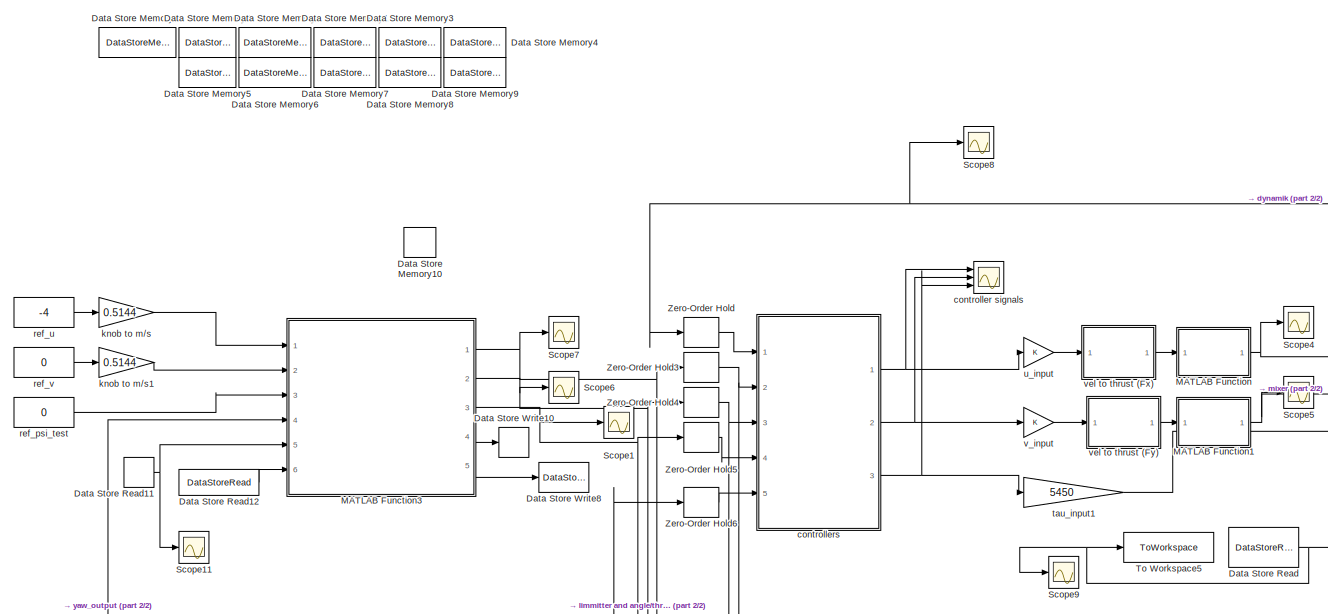
[diagram: root canvas - part 1/2, middle left region]
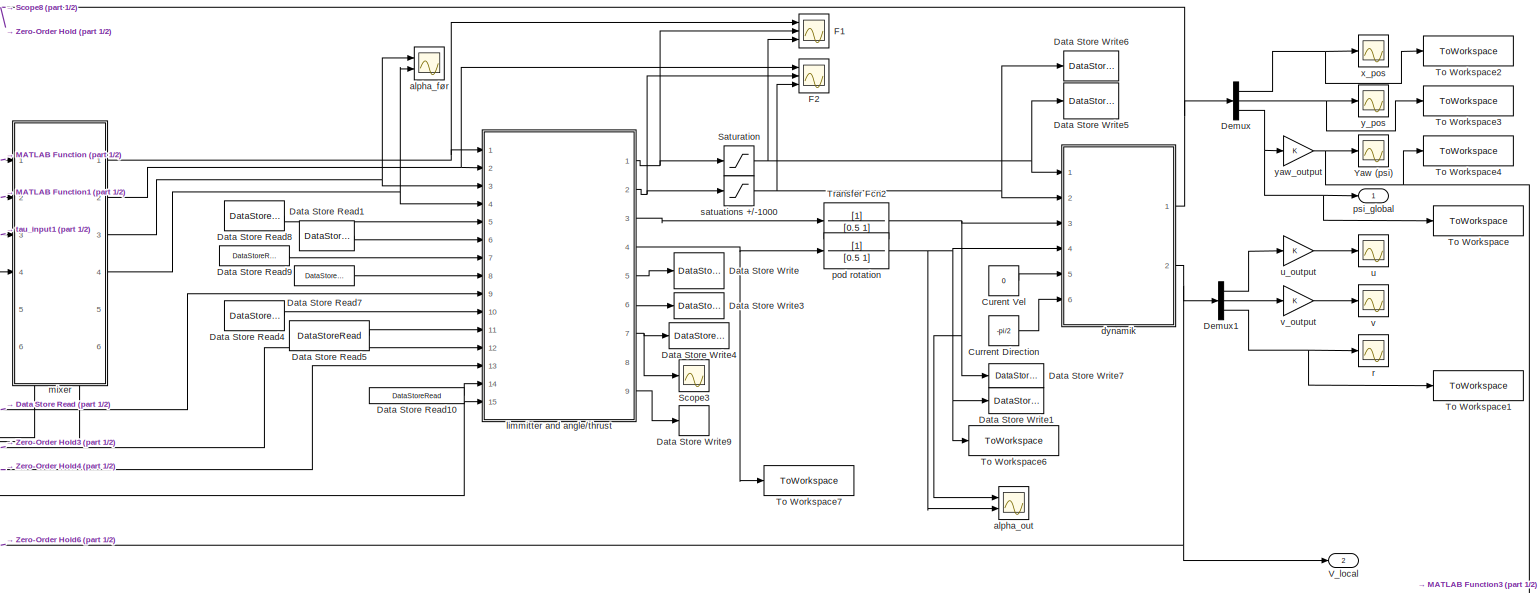
[diagram: root canvas - part 2/2, middle right region]
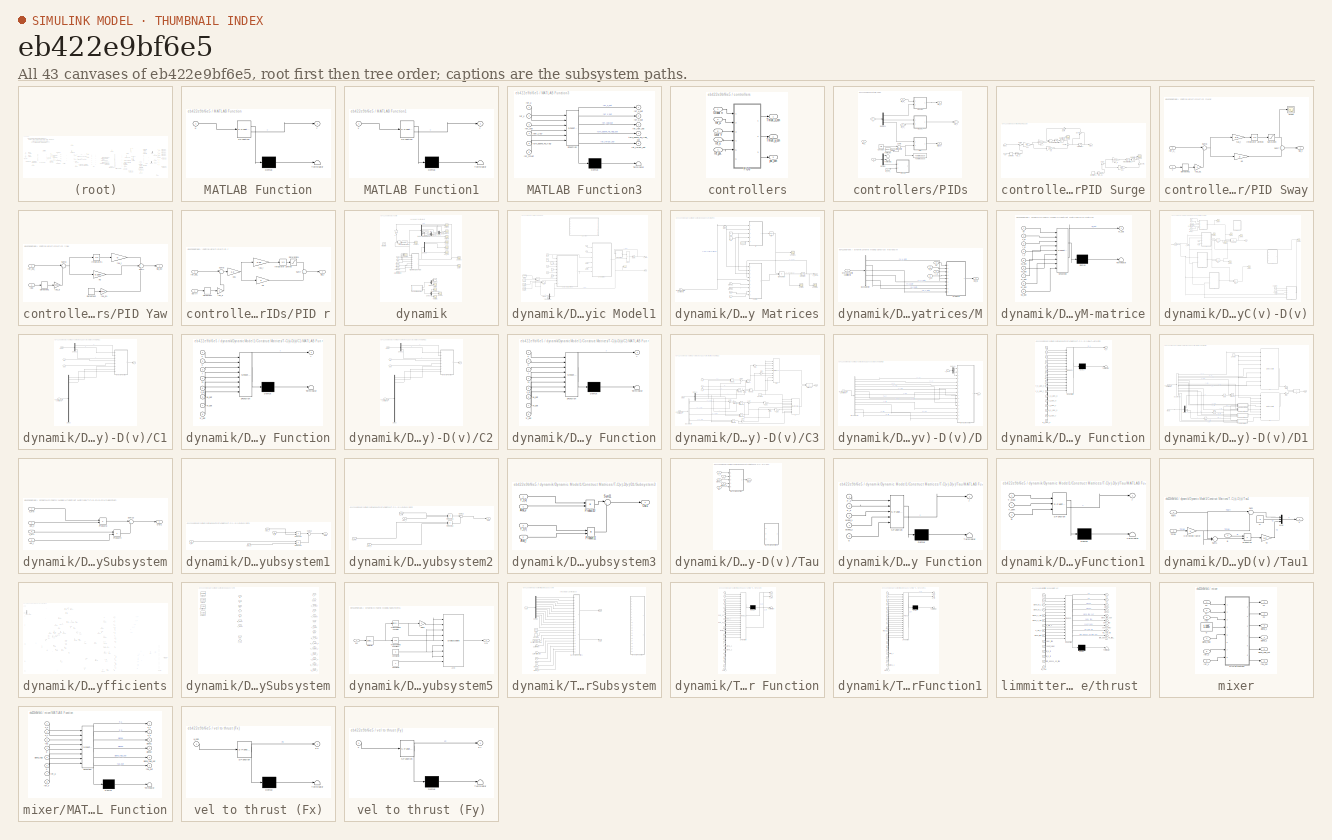
[diagram: thumbnail index - all 43 canvases of the model, root first then tree order]
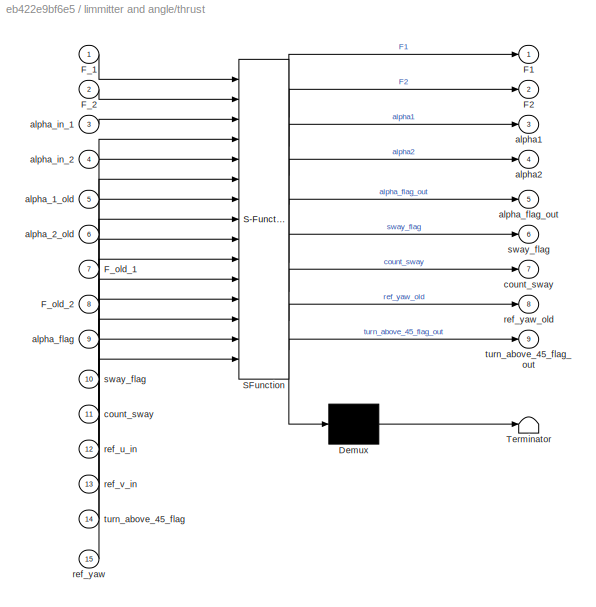
MODEL slx_eb422e9bf6e5
KIND model
CONFIG AbsTol = auto
CONFIG EnableMultiTasking = off
CONFIG FixedStep = auto
CONFIG MaxStep = auto
CONFIG MinStep = auto
CONFIG RelTol = 1e-3
CONFIG SampleTimeConstraint = Unconstrained
CONFIG SolverName = VariableStepAuto
CONFIG StartTime = 0.0
CONFIG StopTime = 200
BLOCK [Constant] Curent Vel
  Value = 0
BLOCK [Constant] Current Direction
  Value = -pi/2
BLOCK [DataStoreMemory] Data Store Memory
  DataStoreName = alpha_flag
  ReadBeforeWriteMsg = warning
  ShowAdditionalParam = off
  WriteAfterReadMsg = warning
  WriteAfterWriteMsg = warning
BLOCK [DataStoreMemory] Data Store Memory1
  DataStoreName = alpha_2_old
  ReadBeforeWriteMsg = warning
  ShowAdditionalParam = off
  WriteAfterReadMsg = warning
  WriteAfterWriteMsg = warning
BLOCK [DataStoreMemory] Data Store Memory10
  DataStoreName = vs2
  ReadBeforeWriteMsg = warning
  ShowAdditionalParam = off
  WriteAfterReadMsg = warning
  WriteAfterWriteMsg = warning
BLOCK [DataStoreMemory] Data Store Memory11
  DataStoreName = rot_thrust_flag
  ReadBeforeWriteMsg = warning
  ShowAdditionalParam = off
  WriteAfterReadMsg = warning
  WriteAfterWriteMsg = warning
BLOCK [DataStoreMemory] Data Store Memory2
  DataStoreName = u_con_old
  ReadBeforeWriteMsg = warning
  ShowAdditionalParam = off
  WriteAfterReadMsg = warning
  WriteAfterWriteMsg = warning
BLOCK [DataStoreMemory] Data Store Memory3
  DataStoreName = sway_flag
  ReadBeforeWriteMsg = warning
  ShowAdditionalParam = off
  WriteAfterReadMsg = warning
  WriteAfterWriteMsg = warning
BLOCK [DataStoreMemory] Data Store Memory4
  DataStoreName = count_sway
  ReadBeforeWriteMsg = warning
  ShowAdditionalParam = off
  WriteAfterReadMsg = warning
  WriteAfterWriteMsg = warning
BLOCK [DataStoreMemory] Data Store Memory5
  DataStoreName = F_old_1
  ReadBeforeWriteMsg = warning
  ShowAdditionalParam = off
  WriteAfterReadMsg = warning
  WriteAfterWriteMsg = warning
BLOCK [DataStoreMemory] Data Store Memory6
  DataStoreName = F_old_2
  ReadBeforeWriteMsg = warning
  ShowAdditionalParam = off
  WriteAfterReadMsg = warning
  WriteAfterWriteMsg = warning
BLOCK [DataStoreMemory] Data Store Memory7
  DataStoreName = alpha_1_old
  ReadBeforeWriteMsg = warning
  ShowAdditionalParam = off
  WriteAfterReadMsg = warning
  WriteAfterWriteMsg = warning
BLOCK [DataStoreMemory] Data Store Memory8
  DataStoreName = ref_yaw_old
  ReadBeforeWriteMsg = warning
  ShowAdditionalParam = off
  WriteAfterReadMsg = warning
  WriteAfterWriteMsg = warning
BLOCK [DataStoreMemory] Data Store Memory9
  DataStoreName = turn_above_45_flag
  ReadBeforeWriteMsg = warning
  ShowAdditionalParam = off
  WriteAfterReadMsg = warning
  WriteAfterWriteMsg = warning
BLOCK [DataStoreRead] Data Store Read
  DataStoreName = alpha_flag
  IndexOptions = Index vector (dialog)
  Indices = 1
  OutputSizes = 1
  Ports = [0, 1]
BLOCK [DataStoreRead] Data Store Read1
  DataStoreName = alpha_2_old
  IndexOptions = Index vector (dialog)
  Indices = 1
  OutputSizes = 1
  Ports = [0, 1]
BLOCK [DataStoreRead] Data Store Read10
  DataStoreName = turn_above_45_flag
  IndexOptions = Index vector (dialog)
  Indices = 1
  OutputSizes = 1
  Ports = [0, 1]
BLOCK [DataStoreRead] Data Store Read11
  DataStoreName = vs2
  IndexOptions = Index vector (dialog)
  Indices = 1
  OutputSizes = 1
  Ports = [0, 1]
BLOCK [DataStoreRead] Data Store Read12
  DataStoreName = rot_thrust_flag
  IndexOptions = Index vector (dialog)
  Indices = 1
  OutputSizes = 1
  Ports = [0, 1]
BLOCK [DataStoreRead] Data Store Read4
  DataStoreName = sway_flag
  IndexOptions = Index vector (dialog)
  Indices = 1
  OutputSizes = 1
  Ports = [0, 1]
BLOCK [DataStoreRead] Data Store Read5
  DataStoreName = count_sway
  IndexOptions = Index vector (dialog)
  Indices = 1
  OutputSizes = 1
  Ports = [0, 1]
BLOCK [DataStoreRead] Data Store Read7
  DataStoreName = F_old_2
  IndexOptions = Index vector (dialog)
  Indices = 1
  OutputSizes = 1
  Ports = [0, 1]
BLOCK [DataStoreRead] Data Store Read8
  DataStoreName = alpha_1_old
  IndexOptions = Index vector (dialog)
  Indices = 1
  OutputSizes = 1
  Ports = [0, 1]
BLOCK [DataStoreRead] Data Store Read9
  DataStoreName = F_old_1
  IndexOptions = Index vector (dialog)
  Indices = 1
  OutputSizes = 1
  Ports = [0, 1]
BLOCK [DataStoreWrite] Data Store Write
  DataStoreName = alpha_flag
  IndexOptions = Index vector (dialog)
  Indices = 1
  OutputSizes = 1
  Ports = [1]
BLOCK [DataStoreWrite] Data Store Write1
  DataStoreName = alpha_2_old
  IndexOptions = Index vector (dialog)
  Indices = 1
  OutputSizes = 1
  Ports = [1]
BLOCK [DataStoreWrite] Data Store Write10
  DataStoreName = vs2
  IndexOptions = Index vector (dialog)
  Indices = 1
  OutputSizes = 1
  Ports = [1]
BLOCK [DataStoreWrite] Data Store Write3
  DataStoreName = sway_flag
  IndexOptions = Index vector (dialog)
  Indices = 1
  OutputSizes = 1
  Ports = [1]
BLOCK [DataStoreWrite] Data Store Write4
  DataStoreName = count_sway
  IndexOptions = Index vector (dialog)
  Indices = 1
  OutputSizes = 1
  Ports = [1]
BLOCK [DataStoreWrite] Data Store Write5
  DataStoreName = F_old_1
  IndexOptions = Index vector (dialog)
  Indices = 1
  OutputSizes = 1
  Ports = [1]
BLOCK [DataStoreWrite] Data Store Write6
  DataStoreName = F_old_2
  IndexOptions = Index vector (dialog)
  Indices = 1
  OutputSizes = 1
  Ports = [1]
BLOCK [DataStoreWrite] Data Store Write7
  DataStoreName = alpha_1_old
  IndexOptions = Index vector (dialog)
  Indices = 1
  OutputSizes = 1
  Ports = [1]
BLOCK [DataStoreWrite] Data Store Write8
  DataStoreName = rot_thrust_flag
  IndexOptions = Index vector (dialog)
  Indices = 1
  OutputSizes = 1
  Ports = [1]
BLOCK [DataStoreWrite] Data Store Write9
  DataStoreName = turn_above_45_flag
  IndexOptions = Index vector (dialog)
  Indices = 1
  OutputSizes = 1
  Ports = [1]
BLOCK [Demux] Demux
  Outputs = 3
  Ports = [1, 3]
BLOCK [Demux] Demux1
  Outputs = 3
  Ports = [1, 3]
BLOCK [Scope] F1
  Floating = off
  NumInputPorts = 3
  Ports = [3]
  ScopeSpecificationString = Simulink.scopes.TimeScopeBlockCfg('CurrentConfiguration', extmgr.ConfigurationSet(extmgr.Configuration('Core','General UI',true),extmgr.Configuration('Core','Source UI',true),extmgr.Configuration('Sources','WiredSimulink',true,'DataLoggingVariableName','ScopeData3'),extmgr.Configuration('Visuals','Time Domain',true,'SerializedDisplays',{struct('MinYLimReal','-5539.37509','MaxYLimReal','3638.90561'...<+1506ch>
BLOCK [Scope] F2
  Floating = off
  NumInputPorts = 3
  Ports = [3]
  ScopeSpecificationString = Simulink.scopes.TimeScopeBlockCfg('CurrentConfiguration', extmgr.ConfigurationSet(extmgr.Configuration('Core','General UI',true),extmgr.Configuration('Core','Source UI',true),extmgr.Configuration('Sources','WiredSimulink',true,'DataLoggingVariableName','ScopeData4'),extmgr.Configuration('Visuals','Time Domain',true,'SerializedDisplays',{struct('MinYLimReal','-2275.5079','MaxYLimReal','3417.06286',...<+1515ch>
BLOCK [SubSystem] MATLAB Function
  ErrorFcn = Stateflow.Translate.translate
  PermitHierarchicalResolution = ExplicitOnly
  Ports = [1, 1]
  RequestExecContextInheritance = off
  SFBlockType = MATLAB Function
  TreatAsAtomicUnit = on
BLOCK [Demux] MATLAB Function/ Demux 
  Outputs = 1
  Ports = [1, 1]
BLOCK [S-Function] MATLAB Function/ SFunction 
  EnableBusSupport = on
  FunctionName = sf_sfun
  PortCounts = [1 2]
  Ports = [1, 2]
  SFcnIsStateOwnerBlock = off
  SFunctionDeploymentMode = off
  Tag = Stateflow S-Function 6
BLOCK [Terminator] MATLAB Function/ Terminator 
BLOCK [Inport] MATLAB Function/u
BLOCK [Outport] MATLAB Function/y
BLOCK [SubSystem] MATLAB Function1
  ErrorFcn = Stateflow.Translate.translate
  PermitHierarchicalResolution = ExplicitOnly
  Ports = [1, 1]
  RequestExecContextInheritance = off
  SFBlockType = MATLAB Function
  TreatAsAtomicUnit = on
BLOCK [Demux] MATLAB Function1/ Demux 
  Outputs = 1
  Ports = [1, 1]
BLOCK [S-Function] MATLAB Function1/ SFunction 
  EnableBusSupport = on
  FunctionName = sf_sfun
  PortCounts = [1 2]
  Ports = [1, 2]
  SFcnIsStateOwnerBlock = off
  SFunctionDeploymentMode = off
  Tag = Stateflow S-Function 14
BLOCK [Terminator] MATLAB Function1/ Terminator 
BLOCK [Inport] MATLAB Function1/v
BLOCK [Outport] MATLAB Function1/y
BLOCK [SubSystem] MATLAB Function3
  ErrorFcn = Stateflow.Translate.translate
  PermitHierarchicalResolution = ExplicitOnly
  Ports = [6, 5]
  RequestExecContextInheritance = off
  SFBlockType = MATLAB Function
  TreatAsAtomicUnit = on
BLOCK [Demux] MATLAB Function3/ Demux 
  Outputs = 1
  Ports = [1, 1]
BLOCK [S-Function] MATLAB Function3/ SFunction 
  EnableBusSupport = on
  FunctionName = sf_sfun
  PortCounts = [6 6]
  Ports = [6, 6]
  SFcnIsStateOwnerBlock = off
  SFunctionDeploymentMode = off
  Tag = Stateflow S-Function 3
BLOCK [Terminator] MATLAB Function3/ Terminator 
BLOCK [Inport] MATLAB Function3/ref_u
BLOCK [Outport] MATLAB Function3/ref_u_out
BLOCK [Inport] MATLAB Function3/ref_v
  Port = 2
BLOCK [Outport] MATLAB Function3/ref_v_out
  Port = 2
BLOCK [Inport] MATLAB Function3/ref_yaw
  Port = 3
BLOCK [Outport] MATLAB Function3/ref_yaw_out
  Port = 3
BLOCK [Inport] MATLAB Function3/rot_thrust
  Port = 6
BLOCK [Outport] MATLAB Function3/rot_thrust_out
  Port = 5
BLOCK [Inport] MATLAB Function3/turn_above_45_flag
  Port = 5
BLOCK [Outport] MATLAB Function3/turn_above_45_flag_out
  Port = 4
BLOCK [Inport] MATLAB Function3/yaw_USV
  Port = 4
BLOCK [Saturate] Saturation
  LowerLimit = -1000
  UpperLimit = 1000
BLOCK [Scope] Scope1
  Floating = off
  NumInputPorts = 1
  Ports = [1]
  ScopeSpecificationString = Simulink.scopes.TimeScopeBlockCfg('CurrentConfiguration', extmgr.ConfigurationSet(extmgr.Configuration('Core','General UI',true),extmgr.Configuration('Core','Source UI',true),extmgr.Configuration('Sources','WiredSimulink',true,'DataLoggingVariableName','ScopeData1'),extmgr.Configuration('Visuals','Time Domain',true,'SerializedDisplays',{struct('MinYLimReal','-1.00000','MaxYLimReal','1.00000','YLab...<+1501ch>
BLOCK [Scope] Scope11
  Floating = off
  NumInputPorts = 1
  Ports = [1]
  ScopeSpecificationString = Simulink.scopes.TimeScopeBlockCfg('CurrentConfiguration', extmgr.ConfigurationSet(extmgr.Configuration('Core','General UI',true),extmgr.Configuration('Core','Source UI',true),extmgr.Configuration('Sources','WiredSimulink',true,'DataLoggingVariableName','ScopeData3'),extmgr.Configuration('Visuals','Time Domain',true,'SerializedDisplays',{struct('MinYLimReal','-0.125','MaxYLimReal','1.125','YLabelRe...<+1420ch>
BLOCK [Scope] Scope3
  Floating = off
  NumInputPorts = 1
  Ports = [1]
  ScopeSpecificationString = Simulink.scopes.TimeScopeBlockCfg('CurrentConfiguration', extmgr.ConfigurationSet(extmgr.Configuration('Core','General UI',true),extmgr.Configuration('Core','Source UI',true),extmgr.Configuration('Sources','WiredSimulink',true,'DataLoggingVariableName','ScopeData1'),extmgr.Configuration('Visuals','Time Domain',true,'SerializedDisplays',{struct('MinYLimReal','-0.01697','MaxYLimReal','0.03677','YLab...<+1441ch>
BLOCK [Scope] Scope4
  Floating = off
  NumInputPorts = 1
  Ports = [1]
  ScopeSpecificationString = Simulink.scopes.TimeScopeBlockCfg('CurrentConfiguration', extmgr.ConfigurationSet(extmgr.Configuration('Core','General UI',true),extmgr.Configuration('Core','Source UI',true),extmgr.Configuration('Sources','WiredSimulink',true,'DataLoggingVariableName','ScopeData7'),extmgr.Configuration('Visuals','Time Domain',true,'SerializedDisplays',{struct('MinYLimReal','92.12818','MaxYLimReal','454.19868','YL...<+1455ch>
BLOCK [Scope] Scope5
  Floating = off
  NumInputPorts = 1
  Ports = [1]
  ScopeSpecificationString = Simulink.scopes.TimeScopeBlockCfg('CurrentConfiguration', extmgr.ConfigurationSet(extmgr.Configuration('Core','General UI',true),extmgr.Configuration('Core','Source UI',true),extmgr.Configuration('Sources','WiredSimulink',true,'DataLoggingVariableName','ScopeData8'),extmgr.Configuration('Visuals','Time Domain',true,'SerializedDisplays',{struct('MinYLimReal','-3553.09312','MaxYLimReal','11397.13911...<+1474ch>
BLOCK [Scope] Scope6
  Floating = off
  NumInputPorts = 1
  Ports = [1]
  ScopeSpecificationString = Simulink.scopes.TimeScopeBlockCfg('CurrentConfiguration', extmgr.ConfigurationSet(extmgr.Configuration('Core','General UI',true),extmgr.Configuration('Core','Source UI',true),extmgr.Configuration('Sources','WiredSimulink',true,'DataLoggingVariableName','ScopeData1'),extmgr.Configuration('Visuals','Time Domain',true,'SerializedDisplays',{struct('MinYLimReal','-1.00000','MaxYLimReal','1.00000','YLab...<+1418ch>
BLOCK [Scope] Scope7
  Floating = off
  NumInputPorts = 1
  Ports = [1]
  ScopeSpecificationString = Simulink.scopes.TimeScopeBlockCfg('CurrentConfiguration', extmgr.ConfigurationSet(extmgr.Configuration('Core','General UI',true),extmgr.Configuration('Core','Source UI',true),extmgr.Configuration('Sources','WiredSimulink',true,'DataLoggingVariableName','ScopeData2'),extmgr.Configuration('Visuals','Time Domain',true,'SerializedDisplays',{struct('MinYLimReal','-3.0576','MaxYLimReal','-1.0576','YLabe...<+1413ch>
BLOCK [Scope] Scope8
  Floating = off
  NumInputPorts = 1
  Ports = [1]
  ScopeSpecificationString = Simulink.scopes.TimeScopeBlockCfg('CurrentConfiguration', extmgr.ConfigurationSet(extmgr.Configuration('Core','General UI',true),extmgr.Configuration('Core','Source UI',true),extmgr.Configuration('Sources','WiredSimulink',true,'DataLoggingVariableName','ScopeData11'),extmgr.Configuration('Visuals','Time Domain',true),extmgr.Configuration('Tools','Plot Navigation',true),extmgr.Configuration('Tools'...<+41ch>
BLOCK [Scope] Scope9
  Floating = off
  NumInputPorts = 1
  Ports = [1]
  ScopeSpecificationString = Simulink.scopes.TimeScopeBlockCfg('CurrentConfiguration', extmgr.ConfigurationSet(extmgr.Configuration('Core','General UI',true),extmgr.Configuration('Core','Source UI',true),extmgr.Configuration('Sources','WiredSimulink',true,'DataLoggingVariableName','ScopeData3'),extmgr.Configuration('Visuals','Time Domain',true,'SerializedDisplays',{struct('MinYLimReal','-0.125','MaxYLimReal','1.125','YLabelRe...<+1474ch>
BLOCK [ToWorkspace] To Workspace
  FixptAsFi = on
  MaxDataPoints = inf
  Ports = [1]
  SampleTime = -1
  SaveFormat = Timeseries
  VariableName = yaw_output
BLOCK [ToWorkspace] To Workspace1
  FixptAsFi = on
  MaxDataPoints = inf
  Ports = [1]
  SampleTime = -1
  SaveFormat = Timeseries
  VariableName = yaw_output_vel
BLOCK [ToWorkspace] To Workspace2
  FixptAsFi = on
  MaxDataPoints = inf
  Ports = [1]
  SampleTime = -1
  SaveFormat = Timeseries
  VariableName = x
BLOCK [ToWorkspace] To Workspace3
  FixptAsFi = on
  MaxDataPoints = inf
  Ports = [1]
  SampleTime = -1
  SaveFormat = Timeseries
  VariableName = y
BLOCK [ToWorkspace] To Workspace4
  FixptAsFi = on
  MaxDataPoints = inf
  Ports = [1]
  SampleTime = -1
  SaveFormat = Timeseries
  VariableName = psi
BLOCK [ToWorkspace] To Workspace5
  FixptAsFi = on
  MaxDataPoints = inf
  Ports = [1]
  SampleTime = -1
  SaveFormat = Timeseries
  VariableName = alpha_flag_1
BLOCK [ToWorkspace] To Workspace6
  FixptAsFi = on
  MaxDataPoints = inf
  Ports = [1]
  SampleTime = -1
  SaveFormat = Timeseries
  VariableName = alpha_old_2
BLOCK [ToWorkspace] To Workspace7
  FixptAsFi = on
  MaxDataPoints = inf
  Ports = [1]
  SampleTime = -1
  SaveFormat = Timeseries
  VariableName = alpha_new_2
BLOCK [TransferFcn] Transfer Fcn2
  Denominator = [0.5 1]
BLOCK [Outport] V_local
  Port = 2
BLOCK [Scope] Yaw (psi)
  Floating = off
  NumInputPorts = 1
  Ports = [1]
  ScopeSpecificationString = Simulink.scopes.TimeScopeBlockCfg('CurrentConfiguration', extmgr.ConfigurationSet(extmgr.Configuration('Core','General UI',true),extmgr.Configuration('Core','Source UI',true),extmgr.Configuration('Sources','WiredSimulink',true,'DataLoggingVariableName','ScopeData12'),extmgr.Configuration('Visuals','Time Domain',true,'SerializedDisplays',{struct('MinYLimReal','-0.57149','MaxYLimReal','1.72082','YLa...<+1441ch>
BLOCK [ZeroOrderHold] Zero-Order Hold
  NameLocation = top
  SampleTime = 1/10
BLOCK [ZeroOrderHold] Zero-Order Hold3
  SampleTime = 1/10
BLOCK [ZeroOrderHold] Zero-Order Hold4
  SampleTime = 1/10
BLOCK [ZeroOrderHold] Zero-Order Hold5
  SampleTime = 1/10
BLOCK [ZeroOrderHold] Zero-Order Hold6
  SampleTime = 1/10
BLOCK [Scope] alpha_før
  Floating = off
  NumInputPorts = 2
  Ports = [2]
  ScopeSpecificationString = Simulink.scopes.TimeScopeBlockCfg('CurrentConfiguration', extmgr.ConfigurationSet(extmgr.Configuration('Core','General UI',true),extmgr.Configuration('Core','Source UI',true),extmgr.Configuration('Sources','WiredSimulink',true,'DataLoggingVariableName','ScopeData13'),extmgr.Configuration('Visuals','Time Domain',true,'SerializedDisplays',{struct('MinYLimReal','-2.38542','MaxYLimReal','2.27103','YLa...<+1795ch>
BLOCK [Scope] alpha_out
  Floating = off
  NumInputPorts = 2
  Ports = [2]
  ScopeSpecificationString = Simulink.scopes.TimeScopeBlockCfg('CurrentConfiguration', extmgr.ConfigurationSet(extmgr.Configuration('Core','General UI',true),extmgr.Configuration('Core','Source UI',true),extmgr.Configuration('Sources','WiredSimulink',true,'DataLoggingVariableName','ScopeData14'),extmgr.Configuration('Visuals','Time Domain',true,'SerializedDisplays',{struct('MinYLimReal','-1.90762','MaxYLimReal','1.90757','YLa...<+1460ch>
BLOCK [Scope] controller signals
  Floating = off
  NumInputPorts = 3
  Ports = [3]
  ScopeSpecificationString = Simulink.scopes.TimeScopeBlockCfg('CurrentConfiguration', extmgr.ConfigurationSet(extmgr.Configuration('Core','General UI',true),extmgr.Configuration('Core','Source UI',true),extmgr.Configuration('Sources','WiredSimulink',true,'DataLoggingVariableName','ScopeData4'),extmgr.Configuration('Visuals','Time Domain',true,'SerializedDisplays',{struct('MinYLimReal','1.59289','MaxYLimReal','2.24656','YLabe...<+1428ch>
BLOCK [SubSystem] controllers
  Ports = [5, 3]
  RequestExecContextInheritance = off
BLOCK [Inport] controllers/Global n
BLOCK [Inport] controllers/Local V
  Port = 5
BLOCK [SubSystem] controllers/PIDs
  Ports = [6, 3]
  RequestExecContextInheritance = off
BLOCK [Reference] controllers/PIDs/Band-Limited White Noise  REF=simulink/Sources/Band-Limited
White Noise
  Ports = [0, 1]
  SourceBlock = simulink/Sources/Band-Limited\nWhite Noise
  SourceProductBaseCode = SL
  SourceType = Band-Limited White Noise.
BLOCK [Constant] controllers/PIDs/Constant
  Value = pi/2
BLOCK [Demux] controllers/PIDs/Demux
  Outputs = 3
  Ports = [1, 3]
BLOCK [Demux] controllers/PIDs/Demux1
  Outputs = 3
  Ports = [1, 3]
BLOCK [SubSystem] controllers/PIDs/PID Surge
  Ports = [2, 1]
  RequestExecContextInheritance = off
BLOCK [Derivative] controllers/PIDs/PID Surge/Derivative
  Commented = through
BLOCK [Derivative] controllers/PIDs/PID Surge/Derivative1
  Commented = on
BLOCK [Gain] controllers/PIDs/PID Surge/Gain
  Gain = 0.9
  NameLocation = top
BLOCK [Integrator] controllers/PIDs/PID Surge/Integrator Limited
  Commented = through
  LimitOutput = on
  LowerSaturationLimit = -1
  Ports = [1, 1]
  UpperSaturationLimit = 1
BLOCK [Integrator] controllers/PIDs/PID Surge/Integrator Limited1
  Commented = on
  LimitOutput = on
  LowerSaturationLimit = -1
  Ports = [1, 1]
  UpperSaturationLimit = 1
BLOCK [Gain] controllers/PIDs/PID Surge/Kp
  Commented = through
  Gain = 2.56
BLOCK [Gain] controllers/PIDs/PID Surge/Kp1
  Commented = on
  Gain = 2.56
BLOCK [Gain] controllers/PIDs/PID Surge/Kp2
  Gain = 10
BLOCK [Saturate] controllers/PIDs/PID Surge/Saturation
  Commented = through
  LowerLimit = -5
  UpperLimit = 5
BLOCK [Saturate] controllers/PIDs/PID Surge/Saturation1
  Commented = on
  LowerLimit = -5
  UpperLimit = 5
BLOCK [Saturate] controllers/PIDs/PID Surge/Saturation2
  LowerLimit = -4
  UpperLimit = 4
BLOCK [Scope] controllers/PIDs/PID Surge/Scope
  Floating = off
  NumInputPorts = 1
  Ports = [1]
  ScopeSpecificationString = Simulink.scopes.TimeScopeBlockCfg('CurrentConfiguration', extmgr.ConfigurationSet(extmgr.Configuration('Core','General UI',true),extmgr.Configuration('Core','Source UI',true),extmgr.Configuration('Sources','WiredSimulink',true,'DataLoggingVariableName','ScopeData1'),extmgr.Configuration('Visuals','Time Domain',true,'SerializedDisplays',{struct('MinYLimReal','-2.5','MaxYLimReal','2.5','YLabelReal',...<+1373ch>
BLOCK [Scope] controllers/PIDs/PID Surge/Scope1
  Commented = on
  Floating = off
  NumInputPorts = 1
  Ports = [1]
  ScopeSpecificationString = Simulink.scopes.TimeScopeBlockCfg('CurrentConfiguration', extmgr.ConfigurationSet(extmgr.Configuration('Core','General UI',true),extmgr.Configuration('Core','Source UI',true),extmgr.Configuration('Sources','WiredSimulink',true,'DataLoggingVariableName','ScopeData1'),extmgr.Configuration('Visuals','Time Domain',true,'SerializedDisplays',{struct('MinYLimReal','-2.5','MaxYLimReal','2.5','YLabelReal',...<+1373ch>
BLOCK [Sum] controllers/PIDs/PID Surge/Sum
  Inputs = |-+
  NameLocation = right
  Ports = [2, 1]
BLOCK [Sum] controllers/PIDs/PID Surge/Sum1
  Commented = on
  Ports = [2, 1]
BLOCK [Sum] controllers/PIDs/PID Surge/Sum2
  Commented = on
  Inputs = |+-
  Ports = [2, 1]
BLOCK [Sum] controllers/PIDs/PID Surge/Sum3
  Inputs = +++|
  Ports = [3, 1]
BLOCK [Sum] controllers/PIDs/PID Surge/Sum5
  Ports = [2, 1]
BLOCK [Sum] controllers/PIDs/PID Surge/Sum6
  Inputs = |+-
  Ports = [2, 1]
BLOCK [Inport] controllers/PIDs/PID Surge/ref_u_
BLOCK [Outport] controllers/PIDs/PID Surge/sig_u
BLOCK [Gain] controllers/PIDs/PID Surge/tau_d
  Commented = through
  Gain = 1.05
BLOCK [Gain] controllers/PIDs/PID Surge/tau_d1
  Commented = on
  Gain = 1.05
BLOCK [Gain] controllers/PIDs/PID Surge/tau_i
  Gain = 1/0.3133
BLOCK [Gain] controllers/PIDs/PID Surge/tau_i1
  Commented = on
  Gain = 1.533
BLOCK [Inport] controllers/PIDs/PID Surge/u
  Port = 2
BLOCK [SubSystem] controllers/PIDs/PID Sway
  Ports = [2, 1]
  RequestExecContextInheritance = off
BLOCK [Derivative] controllers/PIDs/PID Sway/Derivative1
  Commented = through
BLOCK [Integrator] controllers/PIDs/PID Sway/Integrator Limited
  LimitOutput = on
  LowerSaturationLimit = -1
  Ports = [1, 1]
  UpperSaturationLimit = 1
BLOCK [Gain] controllers/PIDs/PID Sway/Kp
  Gain = 2
BLOCK [Saturate] controllers/PIDs/PID Sway/Saturation
  LowerLimit = -1
  UpperLimit = 1
BLOCK [Scope] controllers/PIDs/PID Sway/Scope
  Floating = off
  NumInputPorts = 1
  Ports = [1]
  ScopeSpecificationString = Simulink.scopes.TimeScopeBlockCfg('CurrentConfiguration', extmgr.ConfigurationSet(extmgr.Configuration('Core','General UI',true),extmgr.Configuration('Core','Source UI',true),extmgr.Configuration('Sources','WiredSimulink',true,'DataLoggingVariableName','ScopeData2'),extmgr.Configuration('Visuals','Time Domain',true,'SerializedDisplays',{struct('MinYLimReal','-0.32978','MaxYLimReal','0.03664','YLab...<+1398ch>
BLOCK [Sum] controllers/PIDs/PID Sway/Sum7
  Ports = [2, 1]
BLOCK [Sum] controllers/PIDs/PID Sway/Sum8
  Inputs = |+-
  Ports = [2, 1]
BLOCK [Inport] controllers/PIDs/PID Sway/ref_v_
  Port = 2
BLOCK [Outport] controllers/PIDs/PID Sway/sig_v
BLOCK [Gain] controllers/PIDs/PID Sway/tau_d1
BLOCK [Gain] controllers/PIDs/PID Sway/tau_i
  Gain = 0.5
BLOCK [Inport] controllers/PIDs/PID Sway/v
BLOCK [SubSystem] controllers/PIDs/PID Yaw
  Ports = [2, 1]
  RequestExecContextInheritance = off
BLOCK [Derivative] controllers/PIDs/PID Yaw/Derivative1
  Commented = through
BLOCK [Derivative] controllers/PIDs/PID Yaw/Derivative2
  Commented = through
BLOCK [Integrator] controllers/PIDs/PID Yaw/Integrator1
  Ports = [1, 1]
BLOCK [Gain] controllers/PIDs/PID Yaw/Kp
  Gain = 0.1654
BLOCK [Sum] controllers/PIDs/PID Yaw/Sum7
  Inputs = +++
  Ports = [3, 1]
BLOCK [Sum] controllers/PIDs/PID Yaw/Sum8
  Inputs = |+-
  Ports = [2, 1]
BLOCK [Inport] controllers/PIDs/PID Yaw/ref_psi_
  Port = 2
BLOCK [Outport] controllers/PIDs/PID Yaw/sig_psi
BLOCK [Gain] controllers/PIDs/PID Yaw/tau_d
  Commented = through
  Gain = 10000
  NameLocation = left
BLOCK [Gain] controllers/PIDs/PID Yaw/tau_d1
  Commented = through
  Gain = 0.001
BLOCK [Gain] controllers/PIDs/PID Yaw/tau_i
  Gain = 0
BLOCK [Inport] controllers/PIDs/PID Yaw/yaw
BLOCK [SubSystem] controllers/PIDs/PID r
  Ports = [2, 1]
  RequestExecContextInheritance = off
BLOCK [Derivative] controllers/PIDs/PID r/Derivative1
  Commented = through
BLOCK [Integrator] controllers/PIDs/PID r/Integrator Limited
  LimitOutput = on
  LowerSaturationLimit = -0.2
  Ports = [1, 1]
  UpperSaturationLimit = 0.2
BLOCK [Gain] controllers/PIDs/PID r/Kp
  Commented = through
  Gain = 2
BLOCK [Gain] controllers/PIDs/PID r/Kp1
  Gain = 1.2
BLOCK [Saturate] controllers/PIDs/PID r/Saturation1
  LowerLimit = -10
  UpperLimit = 10
BLOCK [Sum] controllers/PIDs/PID r/Sum7
  Ports = [2, 1]
BLOCK [Sum] controllers/PIDs/PID r/Sum8
  Inputs = |+-
  Ports = [2, 1]
BLOCK [Inport] controllers/PIDs/PID r/psi (r)
BLOCK [Inport] controllers/PIDs/PID r/ref_psi_
  Port = 2
BLOCK [Outport] controllers/PIDs/PID r/sig_r
BLOCK [Gain] controllers/PIDs/PID r/tau_d
BLOCK [Gain] controllers/PIDs/PID r/tau_i
  Gain = 0.33
BLOCK [Sum] controllers/PIDs/Sum5
  Inputs = |++
  Ports = [2, 1]
BLOCK [Terminator] controllers/PIDs/Terminator
BLOCK [Terminator] controllers/PIDs/Terminator1
BLOCK [ToWorkspace] controllers/PIDs/To Workspace
  FixptAsFi = on
  MaxDataPoints = inf
  Ports = [1]
  SampleTime = -1
  SaveFormat = Timeseries
  VariableName = input_r_controller
BLOCK [Inport] controllers/PIDs/V
  Port = 3
BLOCK [Outport] controllers/PIDs/diff_psi
  Port = 3
BLOCK [Inport] controllers/PIDs/n
BLOCK [Inport] controllers/PIDs/ref_psi_
  Port = 5
BLOCK [Inport] controllers/PIDs/ref_r_
  Port = 6
BLOCK [Inport] controllers/PIDs/ref_u_
  Port = 2
BLOCK [Inport] controllers/PIDs/ref_v_
  Port = 4
BLOCK [Outport] controllers/PIDs/sig_u
BLOCK [Outport] controllers/PIDs/sig_v
  Port = 2
BLOCK [Outport] controllers/Thrust_x_con
BLOCK [Outport] controllers/Thrust_y_con
  Port = 2
BLOCK [Outport] controllers/psi_con
  Port = 3
BLOCK [Inport] controllers/ref_psi.
  Port = 4
BLOCK [Inport] controllers/ref_u.
  Port = 2
BLOCK [Inport] controllers/ref_v.
  Port = 3
BLOCK [SubSystem] dynamik
  Ports = [6, 2]
  RequestExecContextInheritance = off
BLOCK [Sum] dynamik/Add
  IconShape = rectangular
  Ports = [2, 1]
BLOCK [Inport] dynamik/Current Vel
  Port = 5
BLOCK [Inport] dynamik/Current direction
  Port = 6
BLOCK [Demux] dynamik/Demux
  Outputs = 12
  Ports = [1, 12]
BLOCK [Demux] dynamik/Demux1
  Commented = on
  Outputs = 3
  Ports = [1, 3]
BLOCK [Demux] dynamik/Demux4
  Commented = on
  Outputs = 3
  Ports = [1, 3]
BLOCK [Demux] dynamik/Demux5
  Outputs = 12
  Ports = [1, 12]
BLOCK [DiscreteTransferFcn] dynamik/Discrete Transfer Fcn
  Denominator = [ 1 0]
  InputPortMap = u0
  Ports = [1, 1]
  SampleTime = 0.02
BLOCK [SubSystem] dynamik/Dynamic Model1
  Commented = on
  Ports = [4, 2]
  RequestExecContextInheritance = off
BLOCK [Constant] dynamik/Dynamic Model1/Bhull 
  Value = 1.386
BLOCK [Constant] dynamik/Dynamic Model1/Cd
  Value = 1.1
BLOCK [SubSystem] dynamik/Dynamic Model1/Construct Matrices
  Ports = [6, 1]
  RequestExecContextInheritance = off
BLOCK [Inport] dynamik/Dynamic Model1/Construct Matrices/F1
  Port = 2
BLOCK [Inport] dynamik/Dynamic Model1/Construct Matrices/F2
BLOCK [Inport] dynamik/Dynamic Model1/Construct Matrices/Hydrodynamic Coefficients
  Port = 6
BLOCK [Constant] dynamik/Dynamic Model1/Construct Matrices/I
  Value = 0.0144
BLOCK [Integrator] dynamik/Dynamic Model1/Construct Matrices/Integrator
  InitialCondition = [0 0 0]
  Ports = [1, 1]
BLOCK [SubSystem] dynamik/Dynamic Model1/Construct Matrices/M
  Ports = [5, 1]
  RequestExecContextInheritance = off
BLOCK [BusSelector] dynamik/Dynamic Model1/Construct Matrices/M/Bus Selector
  OutputSignals = X_u_dot,Y_r_dot,N_v_dot,Y_v_dot,N_r_dot
  Ports = [1, 5]
BLOCK [Inport] dynamik/Dynamic Model1/Construct Matrices/M/Hydrodynamic coefficients
BLOCK [Inport] dynamik/Dynamic Model1/Construct Matrices/M/I_z1
  Port = 5
BLOCK [SubSystem] dynamik/Dynamic Model1/Construct Matrices/M/M-matrice
  ErrorFcn = Stateflow.Translate.translate
  PermitHierarchicalResolution = ExplicitOnly
  Ports = [9, 1]
  RequestExecContextInheritance = off
  SFBlockType = MATLAB Function
  TreatAsAtomicUnit = on
BLOCK [Demux] dynamik/Dynamic Model1/Construct Matrices/M/M-matrice/ Demux 
  Outputs = 1
  Ports = [1, 1]
BLOCK [S-Function] dynamik/Dynamic Model1/Construct Matrices/M/M-matrice/ SFunction 
  EnableBusSupport = on
  FunctionName = sf_sfun
  PortCounts = [9 2]
  Ports = [9, 2]
  SFcnIsStateOwnerBlock = off
  SFunctionDeploymentMode = off
  Tag = Stateflow S-Function 27
BLOCK [Terminator] dynamik/Dynamic Model1/Construct Matrices/M/M-matrice/ Terminator 
BLOCK [Inport] dynamik/Dynamic Model1/Construct Matrices/M/M-matrice/I_z
  Port = 4
BLOCK [Outport] dynamik/Dynamic Model1/Construct Matrices/M/M-matrice/M_out
BLOCK [Inport] dynamik/Dynamic Model1/Construct Matrices/M/M-matrice/Nr_dot
  Port = 8
BLOCK [Inport] dynamik/Dynamic Model1/Construct Matrices/M/M-matrice/Nv_dot
  Port = 9
BLOCK [Inport] dynamik/Dynamic Model1/Construct Matrices/M/M-matrice/Xu_dot
  Port = 5
BLOCK [Inport] dynamik/Dynamic Model1/Construct Matrices/M/M-matrice/Yr_dot
  Port = 7
BLOCK [Inport] dynamik/Dynamic Model1/Construct Matrices/M/M-matrice/Yv_dot
  Port = 6
BLOCK [Inport] dynamik/Dynamic Model1/Construct Matrices/M/M-matrice/m
BLOCK [Inport] dynamik/Dynamic Model1/Construct Matrices/M/M-matrice/x_g
  Port = 2
BLOCK [Inport] dynamik/Dynamic Model1/Construct Matrices/M/M-matrice/y_g
  Port = 3
BLOCK [Outport] dynamik/Dynamic Model1/Construct Matrices/M/Out_M
BLOCK [Inport] dynamik/Dynamic Model1/Construct Matrices/M/m1
  Port = 2
BLOCK [Inport] dynamik/Dynamic Model1/Construct Matrices/M/x_g
  Port = 3
BLOCK [Inport] dynamik/Dynamic Model1/Construct Matrices/M/y_g
  Port = 4
BLOCK [Reference] dynamik/Dynamic Model1/Construct Matrices/M^-1  REF=aerolibutil/Invert 
3x3 Matrix
  Ports = [1, 1]
  SourceBlock = aerolibutil/Invert \n3x3 Matrix
  SourceProductBaseCode = AE
  SourceType = Invert 3x3 Matrix
BLOCK [Product] dynamik/Dynamic Model1/Construct Matrices/M^-1(T-C(v)-D(v))
  Multiplication = Matrix(*)
  Ports = [2, 1]
BLOCK [Inport] dynamik/Dynamic Model1/Construct Matrices/Mass 
  Port = 3
BLOCK [Scope] dynamik/Dynamic Model1/Construct Matrices/Scope
  Floating = off
  NumInputPorts = 1
  Ports = [1]
  ScopeSpecificationString = Simulink.scopes.TimeScopeBlockCfg('CurrentConfiguration', extmgr.ConfigurationSet(extmgr.Configuration('Core','General UI',true),extmgr.Configuration('Core','Source UI',true),extmgr.Configuration('Sources','WiredSimulink',true,'DataLoggingVariableName','ScopeData1'),extmgr.Configuration('Visuals','Time Domain',true,'SerializedDisplays',{struct('MinYLimReal','-0.1162','MaxYLimReal','1.04574','YLabe...<+1835ch>
BLOCK [Scope] dynamik/Dynamic Model1/Construct Matrices/Scope1
  Floating = off
  NumInputPorts = 1
  Ports = [1]
  ScopeSpecificationString = Simulink.scopes.TimeScopeBlockCfg('CurrentConfiguration', extmgr.ConfigurationSet(extmgr.Configuration('Core','General UI',true),extmgr.Configuration('Core','Source UI',true),extmgr.Configuration('Sources','WiredSimulink',true,'DataLoggingVariableName','ScopeData2'),extmgr.Configuration('Visuals','Time Domain',true,'SerializedDisplays',{struct('MinYLimReal','-0.00017','MaxYLimReal','0.0015','YLabe...<+1766ch>
BLOCK [Scope] dynamik/Dynamic Model1/Construct Matrices/Scope2
  Floating = off
  NumInputPorts = 1
  Ports = [1]
  ScopeSpecificationString = Simulink.scopes.TimeScopeBlockCfg('CurrentConfiguration', extmgr.ConfigurationSet(extmgr.Configuration('Core','General UI',true),extmgr.Configuration('Core','Source UI',true),extmgr.Configuration('Sources','WiredSimulink',true,'DataLoggingVariableName','ScopeData3'),extmgr.Configuration('Visuals','Time Domain',true,'SerializedDisplays',{struct('MinYLimReal','-0.99716','MaxYLimReal','8.97448','YLab...<+1708ch>
BLOCK [SubSystem] dynamik/Dynamic Model1/Construct Matrices/T-C(v)-D(v)
  Ports = [9, 1]
  RequestExecContextInheritance = off
BLOCK [Product] dynamik/Dynamic Model1/Construct Matrices/T-C(v)-D(v)/C(v)v
  Multiplication = Matrix(*)
  Ports = [2, 1]
BLOCK [SubSystem] dynamik/Dynamic Model1/Construct Matrices/T-C(v)-D(v)/C1
  Commented = on
  Ports = [4, 1]
  RequestExecContextInheritance = off
BLOCK [Demux] dynamik/Dynamic Model1/Construct Matrices/T-C(v)-D(v)/C1/Demux
  Outputs = 19
  Ports = [1, 19]
BLOCK [Demux] dynamik/Dynamic Model1/Construct Matrices/T-C(v)-D(v)/C1/Demux1
  Outputs = 3
  Ports = [1, 3]
BLOCK [Inport] dynamik/Dynamic Model1/Construct Matrices/T-C(v)-D(v)/C1/Hydrodynamic coefficients
BLOCK [SubSystem] dynamik/Dynamic Model1/Construct Matrices/T-C(v)-D(v)/C1/MATLAB Function
  ErrorFcn = Stateflow.Translate.translate
  PermitHierarchicalResolution = ExplicitOnly
  Ports = [8, 1]
  RequestExecContextInheritance = off
  SFBlockType = MATLAB Function
  TreatAsAtomicUnit = on
BLOCK [Demux] dynamik/Dynamic Model1/Construct Matrices/T-C(v)-D(v)/C1/MATLAB Function/ Demux 
  Outputs = 1
  Ports = [1, 1]
BLOCK [S-Function] dynamik/Dynamic Model1/Construct Matrices/T-C(v)-D(v)/C1/MATLAB Function/ SFunction 
  EnableBusSupport = on
  FunctionName = sf_sfun
  PortCounts = [8 2]
  Ports = [8, 2]
  SFcnIsStateOwnerBlock = off
  SFunctionDeploymentMode = off
  Tag = Stateflow S-Function 28
BLOCK [Terminator] dynamik/Dynamic Model1/Construct Matrices/T-C(v)-D(v)/C1/MATLAB Function/ Terminator 
BLOCK [Inport] dynamik/Dynamic Model1/Construct Matrices/T-C(v)-D(v)/C1/MATLAB Function/Xu_dot
  Port = 6
BLOCK [Inport] dynamik/Dynamic Model1/Construct Matrices/T-C(v)-D(v)/C1/MATLAB Function/Yr_dot
  Port = 8
BLOCK [Inport] dynamik/Dynamic Model1/Construct Matrices/T-C(v)-D(v)/C1/MATLAB Function/Yv_dot
  Port = 7
BLOCK [Inport] dynamik/Dynamic Model1/Construct Matrices/T-C(v)-D(v)/C1/MATLAB Function/m
  Port = 4
BLOCK [Inport] dynamik/Dynamic Model1/Construct Matrices/T-C(v)-D(v)/C1/MATLAB Function/r
  Port = 3
BLOCK [Inport] dynamik/Dynamic Model1/Construct Matrices/T-C(v)-D(v)/C1/MATLAB Function/u
  Port = 2
BLOCK [Inport] dynamik/Dynamic Model1/Construct Matrices/T-C(v)-D(v)/C1/MATLAB Function/v
BLOCK [Inport] dynamik/Dynamic Model1/Construct Matrices/T-C(v)-D(v)/C1/MATLAB Function/x_g
  Port = 5
BLOCK [Outport] dynamik/Dynamic Model1/Construct Matrices/T-C(v)-D(v)/C1/MATLAB Function/y
BLOCK [Inport] dynamik/Dynamic Model1/Construct Matrices/T-C(v)-D(v)/C1/V local
  Port = 2
BLOCK [Inport] dynamik/Dynamic Model1/Construct Matrices/T-C(v)-D(v)/C1/m
  Port = 3
BLOCK [Outport] dynamik/Dynamic Model1/Construct Matrices/T-C(v)-D(v)/C1/out_C
BLOCK [Inport] dynamik/Dynamic Model1/Construct Matrices/T-C(v)-D(v)/C1/x_g
  Port = 4
BLOCK [SubSystem] dynamik/Dynamic Model1/Construct Matrices/T-C(v)-D(v)/C2
  Ports = [4, 1]
  RequestExecContextInheritance = off
BLOCK [Demux] dynamik/Dynamic Model1/Construct Matrices/T-C(v)-D(v)/C2/Demux
  Outputs = 19
  Ports = [1, 19]
BLOCK [Demux] dynamik/Dynamic Model1/Construct Matrices/T-C(v)-D(v)/C2/Demux1
  Outputs = 3
  Ports = [1, 3]
BLOCK [Inport] dynamik/Dynamic Model1/Construct Matrices/T-C(v)-D(v)/C2/Hydrodynamic coefficients
BLOCK [SubSystem] dynamik/Dynamic Model1/Construct Matrices/T-C(v)-D(v)/C2/MATLAB Function
  ErrorFcn = Stateflow.Translate.translate
  PermitHierarchicalResolution = ExplicitOnly
  Ports = [8, 1]
  RequestExecContextInheritance = off
  SFBlockType = MATLAB Function
  TreatAsAtomicUnit = on
BLOCK [Demux] dynamik/Dynamic Model1/Construct Matrices/T-C(v)-D(v)/C2/MATLAB Function/ Demux 
  Outputs = 1
  Ports = [1, 1]
BLOCK [S-Function] dynamik/Dynamic Model1/Construct Matrices/T-C(v)-D(v)/C2/MATLAB Function/ SFunction 
  EnableBusSupport = on
  FunctionName = sf_sfun
  PortCounts = [8 2]
  Ports = [8, 2]
  SFcnIsStateOwnerBlock = off
  SFunctionDeploymentMode = off
  Tag = Stateflow S-Function 29
BLOCK [Terminator] dynamik/Dynamic Model1/Construct Matrices/T-C(v)-D(v)/C2/MATLAB Function/ Terminator 
BLOCK [Inport] dynamik/Dynamic Model1/Construct Matrices/T-C(v)-D(v)/C2/MATLAB Function/Xu_dot
  Port = 6
BLOCK [Inport] dynamik/Dynamic Model1/Construct Matrices/T-C(v)-D(v)/C2/MATLAB Function/Yr_dot
  Port = 8
BLOCK [Inport] dynamik/Dynamic Model1/Construct Matrices/T-C(v)-D(v)/C2/MATLAB Function/Yv_dot
  Port = 7
BLOCK [Inport] dynamik/Dynamic Model1/Construct Matrices/T-C(v)-D(v)/C2/MATLAB Function/m
  Port = 4
BLOCK [Inport] dynamik/Dynamic Model1/Construct Matrices/T-C(v)-D(v)/C2/MATLAB Function/r
  Port = 3
BLOCK [Inport] dynamik/Dynamic Model1/Construct Matrices/T-C(v)-D(v)/C2/MATLAB Function/u
  Port = 2
BLOCK [Inport] dynamik/Dynamic Model1/Construct Matrices/T-C(v)-D(v)/C2/MATLAB Function/v
BLOCK [Inport] dynamik/Dynamic Model1/Construct Matrices/T-C(v)-D(v)/C2/MATLAB Function/x_g
  Port = 5
BLOCK [Outport] dynamik/Dynamic Model1/Construct Matrices/T-C(v)-D(v)/C2/MATLAB Function/y
BLOCK [Inport] dynamik/Dynamic Model1/Construct Matrices/T-C(v)-D(v)/C2/V local
  Port = 2
BLOCK [Inport] dynamik/Dynamic Model1/Construct Matrices/T-C(v)-D(v)/C2/m
  Port = 3
BLOCK [Outport] dynamik/Dynamic Model1/Construct Matrices/T-C(v)-D(v)/C2/out_C
BLOCK [Inport] dynamik/Dynamic Model1/Construct Matrices/T-C(v)-D(v)/C2/x_g
  Port = 4
BLOCK [SubSystem] dynamik/Dynamic Model1/Construct Matrices/T-C(v)-D(v)/C3
  Ports = [5, 1]
  RequestExecContextInheritance = off
BLOCK [Reference] dynamik/Dynamic Model1/Construct Matrices/T-C(v)-D(v)/C3/ CRB  REF=sharedutil/Create 3x3 Matrix
  Ports = [9, 1]
  SourceBlock = sharedutil/Create 3x3 Matrix
  SourceProductBaseCode = AE,PW,DR,MT,UV,VE
  SourceType = Create 3x3 Matrix
BLOCK [BusSelector] dynamik/Dynamic Model1/Construct Matrices/T-C(v)-D(v)/C3/Bus Selector
  OutputSignals = Y_r_dot,N_v_dot,Y_v_dot,X_u_dot
  Ports = [1, 4]
BLOCK [Outport] dynamik/Dynamic Model1/Construct Matrices/T-C(v)-D(v)/C3/C(v)
  VectorParamsAs1DForOutWhenUnconnected = off
BLOCK [Reference] dynamik/Dynamic Model1/Construct Matrices/T-C(v)-D(v)/C3/CA  REF=sharedutil/Create 3x3 Matrix
  Ports = [9, 1]
  SourceBlock = sharedutil/Create 3x3 Matrix
  SourceProductBaseCode = AE,PW,DR,MT,UV,VE
  SourceType = Create 3x3 Matrix
BLOCK [Constant] dynamik/Dynamic Model1/Construct Matrices/T-C(v)-D(v)/C3/Constant3
  Value = 0
BLOCK [Demux] dynamik/Dynamic Model1/Construct Matrices/T-C(v)-D(v)/C3/Demux1
  Outputs = 3
  Ports = [1, 3]
BLOCK [Gain] dynamik/Dynamic Model1/Construct Matrices/T-C(v)-D(v)/C3/Gain
  Gain = -1
BLOCK [Gain] dynamik/Dynamic Model1/Construct Matrices/T-C(v)-D(v)/C3/Gain1
  Gain = -1
BLOCK [Gain] dynamik/Dynamic Model1/Construct Matrices/T-C(v)-D(v)/C3/Gain2
  Gain = 1/2
BLOCK [Gain] dynamik/Dynamic Model1/Construct Matrices/T-C(v)-D(v)/C3/Gain3
  Gain = 2
BLOCK [Gain] dynamik/Dynamic Model1/Construct Matrices/T-C(v)-D(v)/C3/Gain5
  Gain = 2
BLOCK [Gain] dynamik/Dynamic Model1/Construct Matrices/T-C(v)-D(v)/C3/Gain6
  Gain = -1
BLOCK [Inport] dynamik/Dynamic Model1/Construct Matrices/T-C(v)-D(v)/C3/Hydrodynamic coefficients
  Port = 4
BLOCK [Sum] dynamik/Dynamic Model1/Construct Matrices/T-C(v)-D(v)/C3/Matrix Sum
  IconShape = rectangular
  Ports = [2, 1]
BLOCK [Product] dynamik/Dynamic Model1/Construct Matrices/T-C(v)-D(v)/C3/Product
  Ports = [2, 1]
BLOCK [Product] dynamik/Dynamic Model1/Construct Matrices/T-C(v)-D(v)/C3/Product1
  Ports = [2, 1]
BLOCK [Product] dynamik/Dynamic Model1/Construct Matrices/T-C(v)-D(v)/C3/Product2
  Ports = [2, 1]
BLOCK [Product] dynamik/Dynamic Model1/Construct Matrices/T-C(v)-D(v)/C3/Product3
  Ports = [2, 1]
BLOCK [Product] dynamik/Dynamic Model1/Construct Matrices/T-C(v)-D(v)/C3/Product4
  Ports = [2, 1]
BLOCK [Product] dynamik/Dynamic Model1/Construct Matrices/T-C(v)-D(v)/C3/Product5
  Ports = [2, 1]
BLOCK [Product] dynamik/Dynamic Model1/Construct Matrices/T-C(v)-D(v)/C3/Product6
  Ports = [2, 1]
BLOCK [Sum] dynamik/Dynamic Model1/Construct Matrices/T-C(v)-D(v)/C3/Sum3
  Inputs = |++
  Ports = [2, 1]
BLOCK [Sum] dynamik/Dynamic Model1/Construct Matrices/T-C(v)-D(v)/C3/Sum4
  Inputs = +-
  Ports = [2, 1]
BLOCK [Sum] dynamik/Dynamic Model1/Construct Matrices/T-C(v)-D(v)/C3/Sum6
  Inputs = |++
  Ports = [2, 1]
BLOCK [Sum] dynamik/Dynamic Model1/Construct Matrices/T-C(v)-D(v)/C3/Sum7
  Inputs = |++
  Ports = [2, 1]
BLOCK [Sum] dynamik/Dynamic Model1/Construct Matrices/T-C(v)-D(v)/C3/Sum8
  Inputs = |--
  Ports = [2, 1]
BLOCK [Inport] dynamik/Dynamic Model1/Construct Matrices/T-C(v)-D(v)/C3/V local
  Port = 5
BLOCK [Inport] dynamik/Dynamic Model1/Construct Matrices/T-C(v)-D(v)/C3/X_G
  Port = 2
BLOCK [Inport] dynamik/Dynamic Model1/Construct Matrices/T-C(v)-D(v)/C3/Y_G
  Port = 3
BLOCK [Inport] dynamik/Dynamic Model1/Construct Matrices/T-C(v)-D(v)/C3/m
BLOCK [Constant] dynamik/Dynamic Model1/Construct Matrices/T-C(v)-D(v)/Centerline-to-centerline
  Value = 1.3395
BLOCK [Constant] dynamik/Dynamic Model1/Construct Matrices/T-C(v)-D(v)/Constant
  Value = 0
BLOCK [Constant] dynamik/Dynamic Model1/Construct Matrices/T-C(v)-D(v)/Constant1
  Value = 700
BLOCK [SubSystem] dynamik/Dynamic Model1/Construct Matrices/T-C(v)-D(v)/D
  Ports = [2, 1]
  RequestExecContextInheritance = off
BLOCK [Product] dynamik/Dynamic Model1/Construct Matrices/T-C(v)-D(v)/D(v)v
  Multiplication = Matrix(*)
  Ports = [2, 1]
BLOCK [Product] dynamik/Dynamic Model1/Construct Matrices/T-C(v)-D(v)/D(v)v1
  Multiplication = Matrix(*)
  Ports = [2, 1]
BLOCK [BusSelector] dynamik/Dynamic Model1/Construct Matrices/T-C(v)-D(v)/D/Bus Selector
  OutputSignals = X_u,Y_v,Y_r,X_u|u|,Y_v|v|,Y_v|r|,Y_r|v|,N_v,N_r,Y_r|r|,N_v|v|,N_v|r|,N_r|r|,N_r|v|
  Ports = [1, 14]
BLOCK [Outport] dynamik/Dynamic Model1/Construct Matrices/T-C(v)-D(v)/D/D_v
BLOCK [Demux] dynamik/Dynamic Model1/Construct Matrices/T-C(v)-D(v)/D/Demux1
  Outputs = 3
  Ports = [1, 3]
BLOCK [Inport] dynamik/Dynamic Model1/Construct Matrices/T-C(v)-D(v)/D/Hydrodynamic Coefficients
BLOCK [SubSystem] dynamik/Dynamic Model1/Construct Matrices/T-C(v)-D(v)/D/MATLAB Function
  ErrorFcn = Stateflow.Translate.translate
  PermitHierarchicalResolution = ExplicitOnly
  Ports = [16, 1]
  RequestExecContextInheritance = off
  SFBlockType = MATLAB Function
  TreatAsAtomicUnit = on
BLOCK [Demux] dynamik/Dynamic Model1/Construct Matrices/T-C(v)-D(v)/D/MATLAB Function/ Demux 
  Outputs = 1
  Ports = [1, 1]
BLOCK [S-Function] dynamik/Dynamic Model1/Construct Matrices/T-C(v)-D(v)/D/MATLAB Function/ SFunction 
  EnableBusSupport = on
  FunctionName = sf_sfun
  PortCounts = [16 2]
  Ports = [16, 2]
  SFcnIsStateOwnerBlock = off
  SFunctionDeploymentMode = off
  Tag = Stateflow S-Function 30
BLOCK [Terminator] dynamik/Dynamic Model1/Construct Matrices/T-C(v)-D(v)/D/MATLAB Function/ Terminator 
BLOCK [Outport] dynamik/Dynamic Model1/Construct Matrices/T-C(v)-D(v)/D/MATLAB Function/D_v
BLOCK [Inport] dynamik/Dynamic Model1/Construct Matrices/T-C(v)-D(v)/D/MATLAB Function/N_r
  Port = 7
BLOCK [Inport] dynamik/Dynamic Model1/Construct Matrices/T-C(v)-D(v)/D/MATLAB Function/N_r_abs_r
  Port = 15
BLOCK [Inport] dynamik/Dynamic Model1/Construct Matrices/T-C(v)-D(v)/D/MATLAB Function/N_r_abs_v
  Port = 16
BLOCK [Inport] dynamik/Dynamic Model1/Construct Matrices/T-C(v)-D(v)/D/MATLAB Function/N_v
  Port = 8
BLOCK [Inport] dynamik/Dynamic Model1/Construct Matrices/T-C(v)-D(v)/D/MATLAB Function/N_v_abs_v
  Port = 14
BLOCK [Inport] dynamik/Dynamic Model1/Construct Matrices/T-C(v)-D(v)/D/MATLAB Function/X_u
  Port = 4
BLOCK [Inport] dynamik/Dynamic Model1/Construct Matrices/T-C(v)-D(v)/D/MATLAB Function/Y_r
  Port = 6
BLOCK [Inport] dynamik/Dynamic Model1/Construct Matrices/T-C(v)-D(v)/D/MATLAB Function/Y_r_abs_r
  Port = 13
BLOCK [Inport] dynamik/Dynamic Model1/Construct Matrices/T-C(v)-D(v)/D/MATLAB Function/Y_r_abs_v
  Port = 12
BLOCK [Inport] dynamik/Dynamic Model1/Construct Matrices/T-C(v)-D(v)/D/MATLAB Function/Y_v
  Port = 5
BLOCK [Inport] dynamik/Dynamic Model1/Construct Matrices/T-C(v)-D(v)/D/MATLAB Function/Y_v_abs_r
  Port = 10
BLOCK [Inport] dynamik/Dynamic Model1/Construct Matrices/T-C(v)-D(v)/D/MATLAB Function/Y_v_abs_v
  Port = 9
BLOCK [Inport] dynamik/Dynamic Model1/Construct Matrices/T-C(v)-D(v)/D/MATLAB Function/r
  Port = 3
BLOCK [Inport] dynamik/Dynamic Model1/Construct Matrices/T-C(v)-D(v)/D/MATLAB Function/u
  Port = 2
BLOCK [Inport] dynamik/Dynamic Model1/Construct Matrices/T-C(v)-D(v)/D/MATLAB Function/v
BLOCK [Inport] dynamik/Dynamic Model1/Construct Matrices/T-C(v)-D(v)/D/MATLAB Function/x_u_abs_u
  Port = 11
BLOCK [Inport] dynamik/Dynamic Model1/Construct Matrices/T-C(v)-D(v)/D/v_local
  Port = 2
BLOCK [SubSystem] dynamik/Dynamic Model1/Construct Matrices/T-C(v)-D(v)/D1
  Ports = [2, 1]
  RequestExecContextInheritance = off
BLOCK [Abs] dynamik/Dynamic Model1/Construct Matrices/T-C(v)-D(v)/D1/Abs r
  SaturateOnIntegerOverflow = off
BLOCK [Abs] dynamik/Dynamic Model1/Construct Matrices/T-C(v)-D(v)/D1/Abs u
  SaturateOnIntegerOverflow = off
BLOCK [Abs] dynamik/Dynamic Model1/Construct Matrices/T-C(v)-D(v)/D1/Abs v
  SaturateOnIntegerOverflow = off
BLOCK [BusSelector] dynamik/Dynamic Model1/Construct Matrices/T-C(v)-D(v)/D1/Bus Selector
  OutputSignals = X_u,Y_v,Y_r,X_u|u|,Y_v|v|,Y_v|r|,Y_r|v|,N_v,N_r,Y_r|r|,N_v|v|,N_v|r|,N_r|r|,N_r|v|
  Ports = [1, 14]
BLOCK [Constant] dynamik/Dynamic Model1/Construct Matrices/T-C(v)-D(v)/D1/Constant
  Value = 0
BLOCK [Sum] dynamik/Dynamic Model1/Construct Matrices/T-C(v)-D(v)/D1/D
  IconShape = rectangular
  Ports = [2, 1]
BLOCK [Outport] dynamik/Dynamic Model1/Construct Matrices/T-C(v)-D(v)/D1/D(v)
  VectorParamsAs1DForOutWhenUnconnected = off
BLOCK [Demux] dynamik/Dynamic Model1/Construct Matrices/T-C(v)-D(v)/D1/Demux
  Outputs = 3
  Ports = [1, 3]
BLOCK [Reference] dynamik/Dynamic Model1/Construct Matrices/T-C(v)-D(v)/D1/Dl  REF=sharedutil/Create 3x3 Matrix
  Ports = [9, 1]
  SourceBlock = sharedutil/Create 3x3 Matrix
  SourceProductBaseCode = AE,PW,DR,MT,UV,VE
  SourceType = Create 3x3 Matrix
BLOCK [Reference] dynamik/Dynamic Model1/Construct Matrices/T-C(v)-D(v)/D1/Dn  REF=sharedutil/Create 3x3 Matrix
  Ports = [9, 1]
  SourceBlock = sharedutil/Create 3x3 Matrix
  SourceProductBaseCode = AE,PW,DR,MT,UV,VE
  SourceType = Create 3x3 Matrix
BLOCK [Gain] dynamik/Dynamic Model1/Construct Matrices/T-C(v)-D(v)/D1/Gain4
  Gain = -1
BLOCK [Gain] dynamik/Dynamic Model1/Construct Matrices/T-C(v)-D(v)/D1/Gain7
  Gain = -1
BLOCK [Inport] dynamik/Dynamic Model1/Construct Matrices/T-C(v)-D(v)/D1/Hydrodynamic Coefficients
BLOCK [Product] dynamik/Dynamic Model1/Construct Matrices/T-C(v)-D(v)/D1/Product7
  Ports = [2, 1]
BLOCK [SubSystem] dynamik/Dynamic Model1/Construct Matrices/T-C(v)-D(v)/D1/Subsystem
  Ports = [4, 1]
  RequestExecContextInheritance = off
BLOCK [Inport] dynamik/Dynamic Model1/Construct Matrices/T-C(v)-D(v)/D1/Subsystem/Abs_r
  Port = 3
BLOCK [Inport] dynamik/Dynamic Model1/Construct Matrices/T-C(v)-D(v)/D1/Subsystem/Abs_v 
  Port = 4
BLOCK [Outport] dynamik/Dynamic Model1/Construct Matrices/T-C(v)-D(v)/D1/Subsystem/Out1
  VectorParamsAs1DForOutWhenUnconnected = off
BLOCK [Product] dynamik/Dynamic Model1/Construct Matrices/T-C(v)-D(v)/D1/Subsystem/Product8
  Ports = [2, 1]
BLOCK [Product] dynamik/Dynamic Model1/Construct Matrices/T-C(v)-D(v)/D1/Subsystem/Product9
  Ports = [2, 1]
BLOCK [Sum] dynamik/Dynamic Model1/Construct Matrices/T-C(v)-D(v)/D1/Subsystem/Sum10
  Inputs = |++
  Ports = [2, 1]
BLOCK [Inport] dynamik/Dynamic Model1/Construct Matrices/T-C(v)-D(v)/D1/Subsystem/Y_v|r|
  Port = 2
BLOCK [Inport] dynamik/Dynamic Model1/Construct Matrices/T-C(v)-D(v)/D1/Subsystem/Y_v|v| 
BLOCK [SubSystem] dynamik/Dynamic Model1/Construct Matrices/T-C(v)-D(v)/D1/Subsystem1
  Ports = [4, 1]
  RequestExecContextInheritance = off
BLOCK [Inport] dynamik/Dynamic Model1/Construct Matrices/T-C(v)-D(v)/D1/Subsystem1/Abs_r
BLOCK [Inport] dynamik/Dynamic Model1/Construct Matrices/T-C(v)-D(v)/D1/Subsystem1/Abs_v
  Port = 4
BLOCK [Inport] dynamik/Dynamic Model1/Construct Matrices/T-C(v)-D(v)/D1/Subsystem1/N_r|r|
  Port = 2
BLOCK [Inport] dynamik/Dynamic Model1/Construct Matrices/T-C(v)-D(v)/D1/Subsystem1/N_r|v|
  Port = 3
BLOCK [Outport] dynamik/Dynamic Model1/Construct Matrices/T-C(v)-D(v)/D1/Subsystem1/Out1
  VectorParamsAs1DForOutWhenUnconnected = off
BLOCK [Product] dynamik/Dynamic Model1/Construct Matrices/T-C(v)-D(v)/D1/Subsystem1/Product14
  Ports = [2, 1]
BLOCK [Product] dynamik/Dynamic Model1/Construct Matrices/T-C(v)-D(v)/D1/Subsystem1/Product15
  Ports = [2, 1]
BLOCK [Sum] dynamik/Dynamic Model1/Construct Matrices/T-C(v)-D(v)/D1/Subsystem1/Sum13
  Inputs = |++
  Ports = [2, 1]
BLOCK [SubSystem] dynamik/Dynamic Model1/Construct Matrices/T-C(v)-D(v)/D1/Subsystem2
  Ports = [4, 1]
  RequestExecContextInheritance = off
BLOCK [Inport] dynamik/Dynamic Model1/Construct Matrices/T-C(v)-D(v)/D1/Subsystem2/Abs_r
  Port = 2
BLOCK [Inport] dynamik/Dynamic Model1/Construct Matrices/T-C(v)-D(v)/D1/Subsystem2/Abs_v
  Port = 4
BLOCK [Inport] dynamik/Dynamic Model1/Construct Matrices/T-C(v)-D(v)/D1/Subsystem2/N_v|r|
BLOCK [Inport] dynamik/Dynamic Model1/Construct Matrices/T-C(v)-D(v)/D1/Subsystem2/N_v|v|
  Port = 3
BLOCK [Outport] dynamik/Dynamic Model1/Construct Matrices/T-C(v)-D(v)/D1/Subsystem2/Out1
  VectorParamsAs1DForOutWhenUnconnected = off
BLOCK [Product] dynamik/Dynamic Model1/Construct Matrices/T-C(v)-D(v)/D1/Subsystem2/Product12
  Ports = [2, 1]
BLOCK [Product] dynamik/Dynamic Model1/Construct Matrices/T-C(v)-D(v)/D1/Subsystem2/Product13
  Ports = [2, 1]
BLOCK [Sum] dynamik/Dynamic Model1/Construct Matrices/T-C(v)-D(v)/D1/Subsystem2/Sum12
  Inputs = |++
  Ports = [2, 1]
BLOCK [SubSystem] dynamik/Dynamic Model1/Construct Matrices/T-C(v)-D(v)/D1/Subsystem3
  Ports = [4, 1]
  RequestExecContextInheritance = off
BLOCK [Inport] dynamik/Dynamic Model1/Construct Matrices/T-C(v)-D(v)/D1/Subsystem3/Abs_r 
  Port = 2
BLOCK [Inport] dynamik/Dynamic Model1/Construct Matrices/T-C(v)-D(v)/D1/Subsystem3/Abs_v
  Port = 4
BLOCK [Outport] dynamik/Dynamic Model1/Construct Matrices/T-C(v)-D(v)/D1/Subsystem3/Out1
  VectorParamsAs1DForOutWhenUnconnected = off
BLOCK [Product] dynamik/Dynamic Model1/Construct Matrices/T-C(v)-D(v)/D1/Subsystem3/Product10
  Ports = [2, 1]
BLOCK [Product] dynamik/Dynamic Model1/Construct Matrices/T-C(v)-D(v)/D1/Subsystem3/Product11
  Ports = [2, 1]
BLOCK [Sum] dynamik/Dynamic Model1/Construct Matrices/T-C(v)-D(v)/D1/Subsystem3/Sum11
  Inputs = |++
  Ports = [2, 1]
BLOCK [Inport] dynamik/Dynamic Model1/Construct Matrices/T-C(v)-D(v)/D1/Subsystem3/Y_r|r|
  Port = 3
BLOCK [Inport] dynamik/Dynamic Model1/Construct Matrices/T-C(v)-D(v)/D1/Subsystem3/Y_r|v|
BLOCK [Inport] dynamik/Dynamic Model1/Construct Matrices/T-C(v)-D(v)/D1/V - local
  Port = 2
BLOCK [Inport] dynamik/Dynamic Model1/Construct Matrices/T-C(v)-D(v)/F_1
  Port = 8
BLOCK [Inport] dynamik/Dynamic Model1/Construct Matrices/T-C(v)-D(v)/F_2
  Port = 9
BLOCK [Inport] dynamik/Dynamic Model1/Construct Matrices/T-C(v)-D(v)/HydrodynamicCoefficients
  Port = 5
BLOCK [Outport] dynamik/Dynamic Model1/Construct Matrices/T-C(v)-D(v)/Out1
  VectorParamsAs1DForOutWhenUnconnected = off
BLOCK [Scope] dynamik/Dynamic Model1/Construct Matrices/T-C(v)-D(v)/Scope
  Floating = off
  NumInputPorts = 1
  Ports = [1]
  ScopeSpecificationString = Simulink.scopes.TimeScopeBlockCfg('CurrentConfiguration', extmgr.ConfigurationSet(extmgr.Configuration('Core','General UI',true),extmgr.Configuration('Core','Source UI',true),extmgr.Configuration('Sources','WiredSimulink',true,'DataLoggingVariableName','ScopeData2'),extmgr.Configuration('Visuals','Time Domain',true,'SerializedDisplays',{struct('MinYLimReal','-62.5','MaxYLimReal','562.5','YLabelRea...<+1395ch>
BLOCK [Scope] dynamik/Dynamic Model1/Construct Matrices/T-C(v)-D(v)/Scope1
  Floating = off
  NumInputPorts = 1
  Ports = [1]
  ScopeSpecificationString = Simulink.scopes.TimeScopeBlockCfg('CurrentConfiguration', extmgr.ConfigurationSet(extmgr.Configuration('Core','General UI',true),extmgr.Configuration('Core','Source UI',true),extmgr.Configuration('Sources','WiredSimulink',true,'DataLoggingVariableName','ScopeData3'),extmgr.Configuration('Visuals','Time Domain',true,'SerializedDisplays',{struct('MinYLimReal','-107.03196','MaxYLimReal','567.29109','...<+1454ch>
BLOCK [Scope] dynamik/Dynamic Model1/Construct Matrices/T-C(v)-D(v)/Scope2
  Floating = off
  NumInputPorts = 1
  Ports = [1]
  ScopeSpecificationString = Simulink.scopes.TimeScopeBlockCfg('CurrentConfiguration', extmgr.ConfigurationSet(extmgr.Configuration('Core','General UI',true),extmgr.Configuration('Core','Source UI',true),extmgr.Configuration('Sources','WiredSimulink',true,'DataLoggingVariableName','ScopeData4'),extmgr.Configuration('Visuals','Time Domain',true,'SerializedDisplays',{struct('MinYLimReal','-5020.22403','MaxYLimReal','19180.22366...<+1443ch>
BLOCK [Scope] dynamik/Dynamic Model1/Construct Matrices/T-C(v)-D(v)/Scope3
  Floating = off
  NumInputPorts = 1
  Ports = [1]
  ScopeSpecificationString = Simulink.scopes.TimeScopeBlockCfg('CurrentConfiguration', extmgr.ConfigurationSet(extmgr.Configuration('Core','General UI',true),extmgr.Configuration('Core','Source UI',true),extmgr.Configuration('Sources','WiredSimulink',true,'DataLoggingVariableName','ScopeData5'),extmgr.Configuration('Visuals','Time Domain',true,'SerializedDisplays',{struct('MinYLimReal','-44.6733','MaxYLimReal','25.41156','YLa...<+1510ch>
BLOCK [Scope] dynamik/Dynamic Model1/Construct Matrices/T-C(v)-D(v)/Scope4
  Floating = off
  NumInputPorts = 1
  Ports = [1]
  ScopeSpecificationString = Simulink.scopes.TimeScopeBlockCfg('CurrentConfiguration', extmgr.ConfigurationSet(extmgr.Configuration('Core','General UI',true),extmgr.Configuration('Core','Source UI',true),extmgr.Configuration('Sources','WiredSimulink',true,'DataLoggingVariableName','ScopeData4'),extmgr.Configuration('Visuals','Time Domain',true,'SerializedDisplays',{struct('MinYLimReal','-62.5','MaxYLimReal','562.5','YLabelRea...<+1442ch>
BLOCK [Scope] dynamik/Dynamic Model1/Construct Matrices/T-C(v)-D(v)/Scope5
  Floating = off
  NumInputPorts = 1
  Ports = [1]
  ScopeSpecificationString = Simulink.scopes.TimeScopeBlockCfg('CurrentConfiguration', extmgr.ConfigurationSet(extmgr.Configuration('Core','General UI',true),extmgr.Configuration('Core','Source UI',true),extmgr.Configuration('Sources','WiredSimulink',true,'DataLoggingVariableName','ScopeData5'),extmgr.Configuration('Visuals','Time Domain',true,'SerializedDisplays',{struct('MinYLimReal','-6712.92293','MaxYLimReal','3659.80917'...<+1797ch>
BLOCK [Scope] dynamik/Dynamic Model1/Construct Matrices/T-C(v)-D(v)/Scope6
  Floating = off
  NumInputPorts = 1
  Ports = [1]
  ScopeSpecificationString = Simulink.scopes.TimeScopeBlockCfg('CurrentConfiguration', extmgr.ConfigurationSet(extmgr.Configuration('Core','General UI',true),extmgr.Configuration('Core','Source UI',true),extmgr.Configuration('Sources','WiredSimulink',true,'DataLoggingVariableName','ScopeData6'),extmgr.Configuration('Visuals','Time Domain',true,'SerializedDisplays',{struct('MinYLimReal','-73.40902','MaxYLimReal','58.6742','YLa...<+1807ch>
BLOCK [Scope] dynamik/Dynamic Model1/Construct Matrices/T-C(v)-D(v)/Scope7
  Floating = off
  NumInputPorts = 1
  Ports = [1]
  ScopeSpecificationString = Simulink.scopes.TimeScopeBlockCfg('CurrentConfiguration', extmgr.ConfigurationSet(extmgr.Configuration('Core','General UI',true),extmgr.Configuration('Core','Source UI',true),extmgr.Configuration('Sources','WiredSimulink',true,'DataLoggingVariableName','ScopeData7'),extmgr.Configuration('Visuals','Time Domain',true,'SerializedDisplays',{struct('MinYLimReal','-188.79153','MaxYLimReal','247.95296','...<+1841ch>
BLOCK [SubSystem] dynamik/Dynamic Model1/Construct Matrices/T-C(v)-D(v)/Tau
  Ports = [5, 1]
  RequestExecContextInheritance = off
BLOCK [Sum] dynamik/Dynamic Model1/Construct Matrices/T-C(v)-D(v)/Tau - C(v)v - D(v)v
  IconShape = rectangular
  Inputs = +--
  Ports = [3, 1]
BLOCK [Inport] dynamik/Dynamic Model1/Construct Matrices/T-C(v)-D(v)/Tau/B1
  Port = 3
BLOCK [Inport] dynamik/Dynamic Model1/Construct Matrices/T-C(v)-D(v)/Tau/F_1
BLOCK [Inport] dynamik/Dynamic Model1/Construct Matrices/T-C(v)-D(v)/Tau/F_2
  Port = 2
BLOCK [SubSystem] dynamik/Dynamic Model1/Construct Matrices/T-C(v)-D(v)/Tau/MATLAB Function
  ErrorFcn = Stateflow.Translate.translate
  PermitHierarchicalResolution = ExplicitOnly
  Ports = [5, 1]
  RequestExecContextInheritance = off
  SFBlockType = MATLAB Function
  TreatAsAtomicUnit = on
BLOCK [Demux] dynamik/Dynamic Model1/Construct Matrices/T-C(v)-D(v)/Tau/MATLAB Function/ Demux 
  Outputs = 1
  Ports = [1, 1]
BLOCK [S-Function] dynamik/Dynamic Model1/Construct Matrices/T-C(v)-D(v)/Tau/MATLAB Function/ SFunction 
  EnableBusSupport = on
  FunctionName = sf_sfun
  PortCounts = [5 2]
  Ports = [5, 2]
  SFcnIsStateOwnerBlock = off
  SFunctionDeploymentMode = off
  Tag = Stateflow S-Function 31
BLOCK [Terminator] dynamik/Dynamic Model1/Construct Matrices/T-C(v)-D(v)/Tau/MATLAB Function/ Terminator 
BLOCK [Inport] dynamik/Dynamic Model1/Construct Matrices/T-C(v)-D(v)/Tau/MATLAB Function/F_1
BLOCK [Inport] dynamik/Dynamic Model1/Construct Matrices/T-C(v)-D(v)/Tau/MATLAB Function/F_2
  Port = 2
BLOCK [Inport] dynamik/Dynamic Model1/Construct Matrices/T-C(v)-D(v)/Tau/MATLAB Function/alpha_1
  Port = 3
BLOCK [Inport] dynamik/Dynamic Model1/Construct Matrices/T-C(v)-D(v)/Tau/MATLAB Function/alpha_2
  Port = 4
BLOCK [Inport] dynamik/Dynamic Model1/Construct Matrices/T-C(v)-D(v)/Tau/MATLAB Function/d
  Port = 5
BLOCK [Outport] dynamik/Dynamic Model1/Construct Matrices/T-C(v)-D(v)/Tau/MATLAB Function/y
BLOCK [SubSystem] dynamik/Dynamic Model1/Construct Matrices/T-C(v)-D(v)/Tau/MATLAB Function1
  Commented = on
  ErrorFcn = Stateflow.Translate.translate
  PermitHierarchicalResolution = ExplicitOnly
  Ports = [3, 1]
  RequestExecContextInheritance = off
  SFBlockType = MATLAB Function
  TreatAsAtomicUnit = on
BLOCK [Demux] dynamik/Dynamic Model1/Construct Matrices/T-C(v)-D(v)/Tau/MATLAB Function1/ Demux 
  Outputs = 1
  Ports = [1, 1]
BLOCK [S-Function] dynamik/Dynamic Model1/Construct Matrices/T-C(v)-D(v)/Tau/MATLAB Function1/ SFunction 
  EnableBusSupport = on
  FunctionName = sf_sfun
  PortCounts = [3 2]
  Ports = [3, 2]
  SFcnIsStateOwnerBlock = off
  SFunctionDeploymentMode = off
  Tag = Stateflow S-Function 32
BLOCK [Terminator] dynamik/Dynamic Model1/Construct Matrices/T-C(v)-D(v)/Tau/MATLAB Function1/ Terminator 
BLOCK [Inport] dynamik/Dynamic Model1/Construct Matrices/T-C(v)-D(v)/Tau/MATLAB Function1/B
  Port = 3
BLOCK [Inport] dynamik/Dynamic Model1/Construct Matrices/T-C(v)-D(v)/Tau/MATLAB Function1/T_port
  Port = 2
BLOCK [Inport] dynamik/Dynamic Model1/Construct Matrices/T-C(v)-D(v)/Tau/MATLAB Function1/T_stbd
BLOCK [Outport] dynamik/Dynamic Model1/Construct Matrices/T-C(v)-D(v)/Tau/MATLAB Function1/y
BLOCK [Outport] dynamik/Dynamic Model1/Construct Matrices/T-C(v)-D(v)/Tau/Out_T
BLOCK [Inport] dynamik/Dynamic Model1/Construct Matrices/T-C(v)-D(v)/Tau/alpha_1
  Port = 4
BLOCK [Inport] dynamik/Dynamic Model1/Construct Matrices/T-C(v)-D(v)/Tau/alpha_2
  Port = 5
BLOCK [SubSystem] dynamik/Dynamic Model1/Construct Matrices/T-C(v)-D(v)/Tau1
  Commented = on
  Ports = [3, 1]
  RequestExecContextInheritance = off
BLOCK [Inport] dynamik/Dynamic Model1/Construct Matrices/T-C(v)-D(v)/Tau1/B
BLOCK [Gain] dynamik/Dynamic Model1/Construct Matrices/T-C(v)-D(v)/Tau1/Correction factor
BLOCK [Mux] dynamik/Dynamic Model1/Construct Matrices/T-C(v)-D(v)/Tau1/Mux
  DisplayOption = bar
  Inputs = 3
  Ports = [3, 1]
BLOCK [Product] dynamik/Dynamic Model1/Construct Matrices/T-C(v)-D(v)/Tau1/Product25
  Ports = [2, 1]
BLOCK [Sum] dynamik/Dynamic Model1/Construct Matrices/T-C(v)-D(v)/Tau1/Sum
  Inputs = |++
  Ports = [2, 1]
BLOCK [Sum] dynamik/Dynamic Model1/Construct Matrices/T-C(v)-D(v)/Tau1/Sum1
  Inputs = |+-
  Ports = [2, 1]
BLOCK [Outport] dynamik/Dynamic Model1/Construct Matrices/T-C(v)-D(v)/Tau1/T
  VectorParamsAs1DForOutWhenUnconnected = off
BLOCK [Inport] dynamik/Dynamic Model1/Construct Matrices/T-C(v)-D(v)/Tau1/Tport
  Port = 3
BLOCK [Inport] dynamik/Dynamic Model1/Construct Matrices/T-C(v)-D(v)/Tau1/Tstbd
  Port = 2
BLOCK [Constant] dynamik/Dynamic Model1/Construct Matrices/T-C(v)-D(v)/Tau1/Ty
  Value = 0
BLOCK [Gain] dynamik/Dynamic Model1/Construct Matrices/T-C(v)-D(v)/Tau1/Tz
  Gain = 1/2
BLOCK [Inport] dynamik/Dynamic Model1/Construct Matrices/T-C(v)-D(v)/V_Local
  Port = 4
BLOCK [Inport] dynamik/Dynamic Model1/Construct Matrices/T-C(v)-D(v)/X_G
  Port = 2
BLOCK [Inport] dynamik/Dynamic Model1/Construct Matrices/T-C(v)-D(v)/Y_G
  Port = 3
BLOCK [Inport] dynamik/Dynamic Model1/Construct Matrices/T-C(v)-D(v)/alpha_1
  Port = 6
BLOCK [Inport] dynamik/Dynamic Model1/Construct Matrices/T-C(v)-D(v)/alpha_2
  Port = 7
BLOCK [Inport] dynamik/Dynamic Model1/Construct Matrices/T-C(v)-D(v)/m
BLOCK [Outport] dynamik/Dynamic Model1/Construct Matrices/V_local
  VectorParamsAs1DForOutWhenUnconnected = off
BLOCK [Constant] dynamik/Dynamic Model1/Construct Matrices/XG
  NameLocation = top
  Value = 0
BLOCK [Constant] dynamik/Dynamic Model1/Construct Matrices/YG
  Value = 0
BLOCK [Inport] dynamik/Dynamic Model1/Construct Matrices/alpha1
  Port = 4
BLOCK [Inport] dynamik/Dynamic Model1/Construct Matrices/alpha2
  Port = 5
BLOCK [Demux] dynamik/Dynamic Model1/Demux
  NameLocation = top
  Outputs = 3
  Ports = [1, 3]
BLOCK [Inport] dynamik/Dynamic Model1/F1
BLOCK [Inport] dynamik/Dynamic Model1/F2
  Port = 2
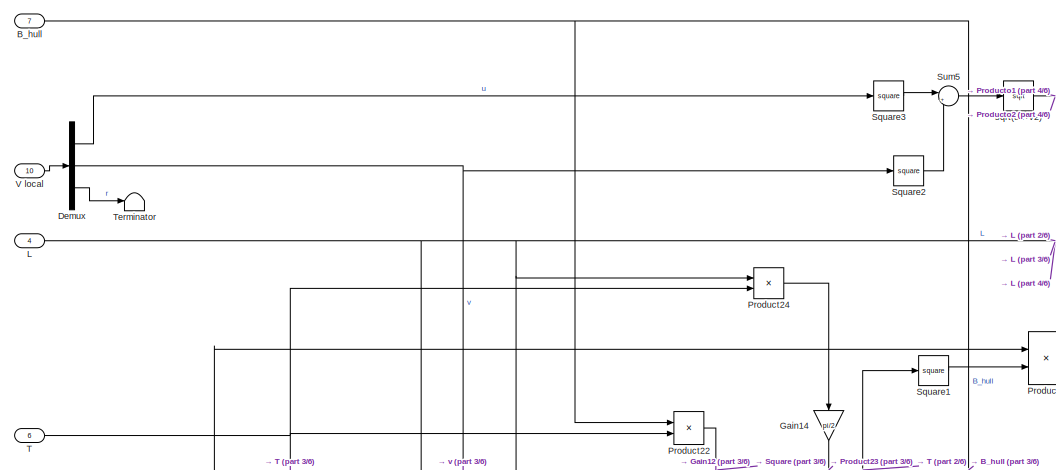
[diagram: dynamik/Dynamic Model1/Hydrodynamic Coefficients - part 1/6, top left region]
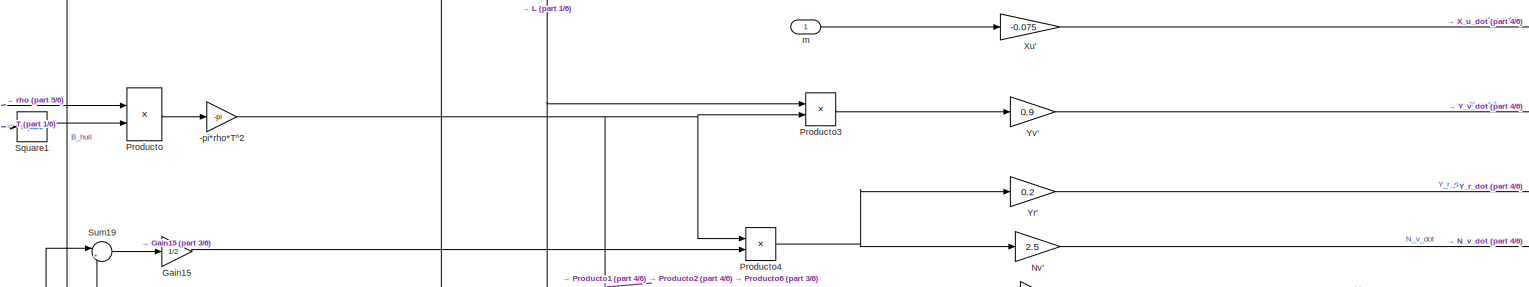
[diagram: dynamik/Dynamic Model1/Hydrodynamic Coefficients - part 2/6, top center region]
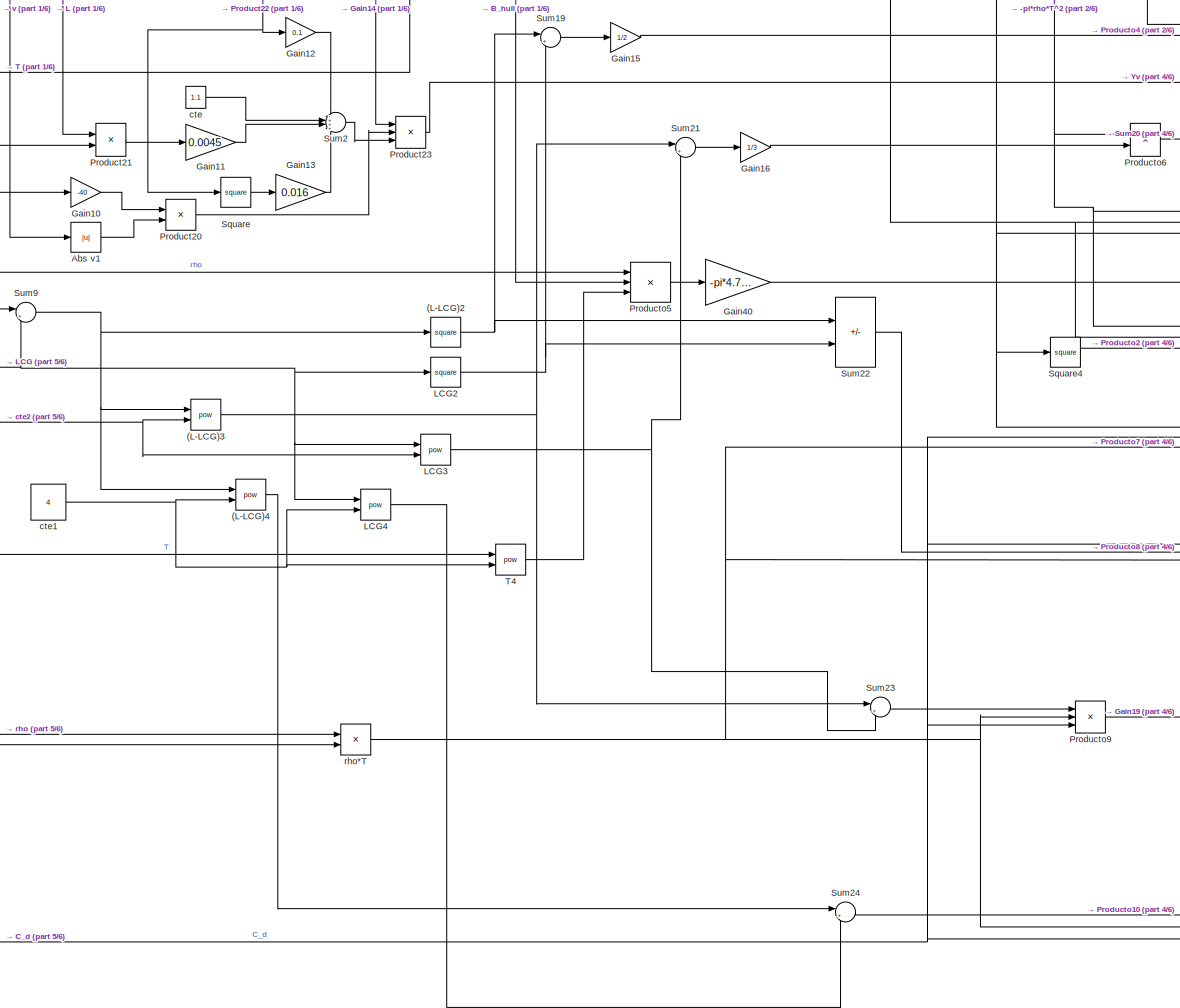
[diagram: dynamik/Dynamic Model1/Hydrodynamic Coefficients - part 3/6, central region]
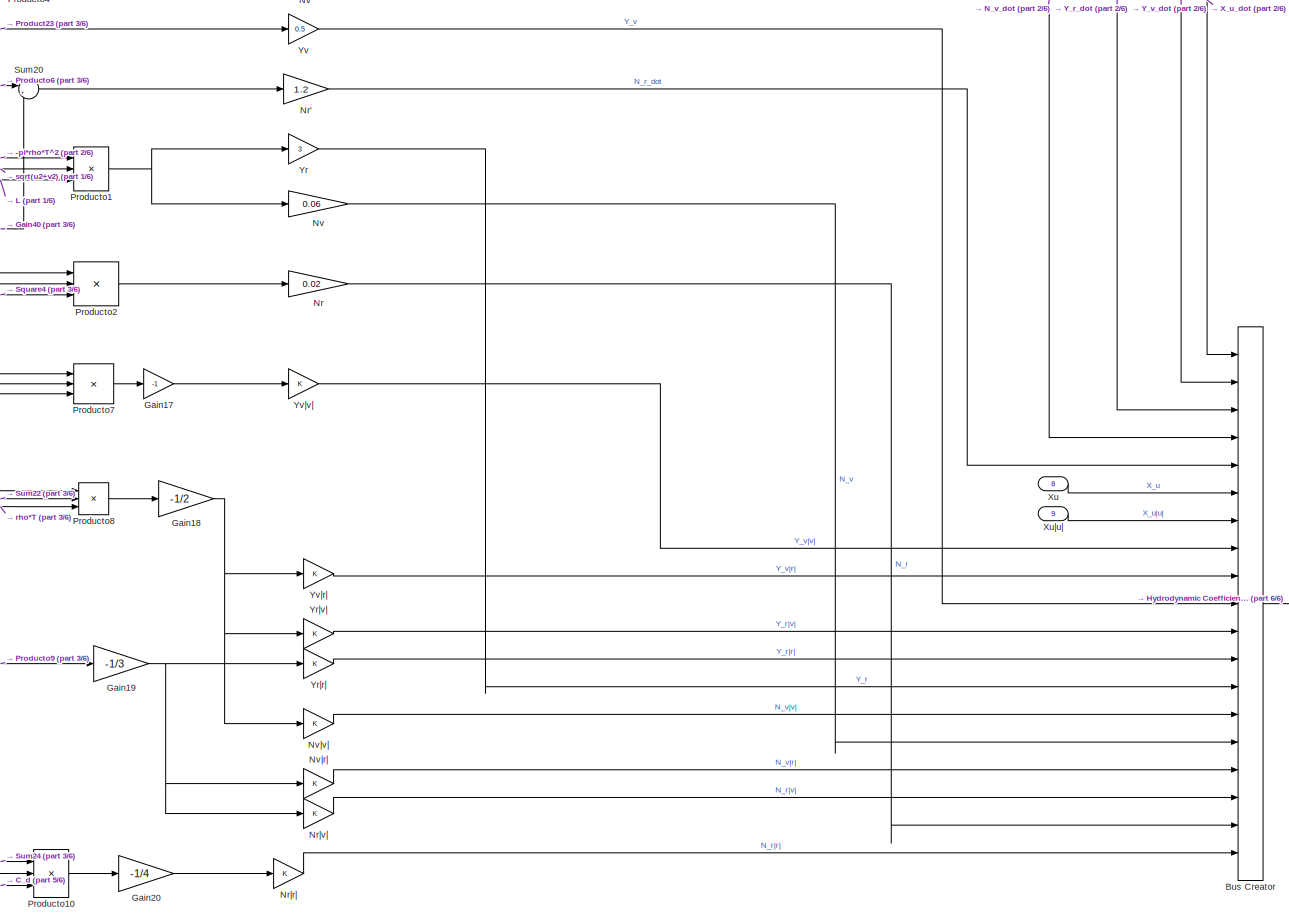
[diagram: dynamik/Dynamic Model1/Hydrodynamic Coefficients - part 4/6, middle right region]
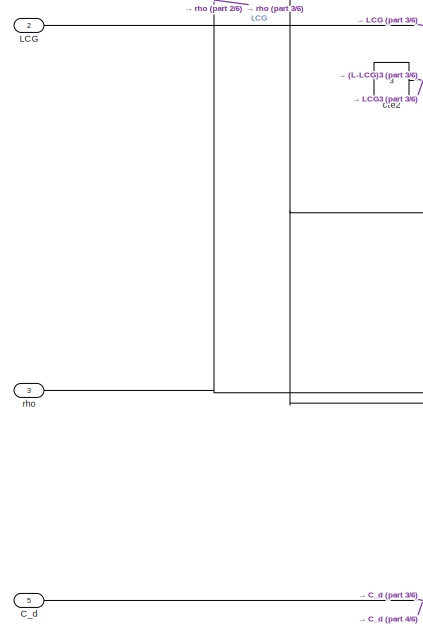
[diagram: dynamik/Dynamic Model1/Hydrodynamic Coefficients - part 5/6, bottom left region]
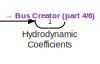
[diagram: dynamik/Dynamic Model1/Hydrodynamic Coefficients - part 6/6, bottom right region]
BLOCK [SubSystem] dynamik/Dynamic Model1/Hydrodynamic Coefficients
  Ports = [10, 1]
  RequestExecContextInheritance = off
BLOCK [Math] dynamik/Dynamic Model1/Hydrodynamic Coefficients/(L-LCG)2
  Operator = square
  Ports = [1, 1]
  SignedPower = on
BLOCK [Math] dynamik/Dynamic Model1/Hydrodynamic Coefficients/(L-LCG)3
  Operator = pow
  Ports = [2, 1]
  SignedPower = on
BLOCK [Math] dynamik/Dynamic Model1/Hydrodynamic Coefficients/(L-LCG)4
  Operator = pow
  Ports = [2, 1]
  SignedPower = on
BLOCK [Gain] dynamik/Dynamic Model1/Hydrodynamic Coefficients/-pi*rho*T^2
  Gain = -pi
BLOCK [Abs] dynamik/Dynamic Model1/Hydrodynamic Coefficients/Abs v1
  SaturateOnIntegerOverflow = off
BLOCK [Inport] dynamik/Dynamic Model1/Hydrodynamic Coefficients/B_hull
  Port = 7
BLOCK [BusCreator] dynamik/Dynamic Model1/Hydrodynamic Coefficients/Bus Creator
  DisplayOption = bar
  InheritFromInputs = on
  Inputs = 19
  Ports = [19, 1]
BLOCK [Inport] dynamik/Dynamic Model1/Hydrodynamic Coefficients/C_d
  Port = 5
BLOCK [Demux] dynamik/Dynamic Model1/Hydrodynamic Coefficients/Demux
  NameLocation = left
  Outputs = 3
  Ports = [1, 3]
BLOCK [Gain] dynamik/Dynamic Model1/Hydrodynamic Coefficients/Gain10
  Gain = -40
BLOCK [Gain] dynamik/Dynamic Model1/Hydrodynamic Coefficients/Gain11
  Gain = 0.0045
BLOCK [Gain] dynamik/Dynamic Model1/Hydrodynamic Coefficients/Gain12
  Gain = 0.1
BLOCK [Gain] dynamik/Dynamic Model1/Hydrodynamic Coefficients/Gain13
  Gain = 0.016
BLOCK [Gain] dynamik/Dynamic Model1/Hydrodynamic Coefficients/Gain14
  Gain = pi/2
  NameLocation = left
BLOCK [Gain] dynamik/Dynamic Model1/Hydrodynamic Coefficients/Gain15
  Gain = 1/2
BLOCK [Gain] dynamik/Dynamic Model1/Hydrodynamic Coefficients/Gain16
  Gain = 1/3
BLOCK [Gain] dynamik/Dynamic Model1/Hydrodynamic Coefficients/Gain17
  Gain = -1
BLOCK [Gain] dynamik/Dynamic Model1/Hydrodynamic Coefficients/Gain18
  Gain = -1/2
BLOCK [Gain] dynamik/Dynamic Model1/Hydrodynamic Coefficients/Gain19
  Gain = -1/3
BLOCK [Gain] dynamik/Dynamic Model1/Hydrodynamic Coefficients/Gain20
  Gain = -1/4
BLOCK [Gain] dynamik/Dynamic Model1/Hydrodynamic Coefficients/Gain40
  Gain = -pi*4.75/4
BLOCK [Outport] dynamik/Dynamic Model1/Hydrodynamic Coefficients/Hydrodynamic Coefficients 
  VectorParamsAs1DForOutWhenUnconnected = off
BLOCK [Inport] dynamik/Dynamic Model1/Hydrodynamic Coefficients/L
  Port = 4
BLOCK [Inport] dynamik/Dynamic Model1/Hydrodynamic Coefficients/LCG
  Port = 2
BLOCK [Math] dynamik/Dynamic Model1/Hydrodynamic Coefficients/LCG2
  Operator = square
  Ports = [1, 1]
  SignedPower = on
BLOCK [Math] dynamik/Dynamic Model1/Hydrodynamic Coefficients/LCG3
  Operator = pow
  Ports = [2, 1]
  SignedPower = on
BLOCK [Math] dynamik/Dynamic Model1/Hydrodynamic Coefficients/LCG4
  Operator = pow
  Ports = [2, 1]
  SignedPower = on
BLOCK [Gain] dynamik/Dynamic Model1/Hydrodynamic Coefficients/Nr
  Gain = 0.02
BLOCK [Gain] dynamik/Dynamic Model1/Hydrodynamic Coefficients/Nr'
  Gain = 1.2
BLOCK [Gain] dynamik/Dynamic Model1/Hydrodynamic Coefficients/Nr|r|
BLOCK [Gain] dynamik/Dynamic Model1/Hydrodynamic Coefficients/Nr|v|
BLOCK [Gain] dynamik/Dynamic Model1/Hydrodynamic Coefficients/Nv
  Gain = 0.06
BLOCK [Gain] dynamik/Dynamic Model1/Hydrodynamic Coefficients/Nv'
  Gain = 2.5
BLOCK [Gain] dynamik/Dynamic Model1/Hydrodynamic Coefficients/Nv|r|
  NameLocation = top
BLOCK [Gain] dynamik/Dynamic Model1/Hydrodynamic Coefficients/Nv|v|
BLOCK [Product] dynamik/Dynamic Model1/Hydrodynamic Coefficients/Product20
  Ports = [2, 1]
BLOCK [Product] dynamik/Dynamic Model1/Hydrodynamic Coefficients/Product21
  Inputs = */
  Ports = [2, 1]
BLOCK [Product] dynamik/Dynamic Model1/Hydrodynamic Coefficients/Product22
  Inputs = */
  Ports = [2, 1]
BLOCK [Product] dynamik/Dynamic Model1/Hydrodynamic Coefficients/Product23
  Inputs = 3
  Ports = [3, 1]
BLOCK [Product] dynamik/Dynamic Model1/Hydrodynamic Coefficients/Product24
  Ports = [2, 1]
BLOCK [Product] dynamik/Dynamic Model1/Hydrodynamic Coefficients/Producto
  Ports = [2, 1]
BLOCK [Product] dynamik/Dynamic Model1/Hydrodynamic Coefficients/Producto1
  Inputs = 3
  Ports = [3, 1]
BLOCK [Product] dynamik/Dynamic Model1/Hydrodynamic Coefficients/Producto10
  Inputs = 3
  Ports = [3, 1]
BLOCK [Product] dynamik/Dynamic Model1/Hydrodynamic Coefficients/Producto2
  Inputs = 3
  Ports = [3, 1]
BLOCK [Product] dynamik/Dynamic Model1/Hydrodynamic Coefficients/Producto3
  Ports = [2, 1]
BLOCK [Product] dynamik/Dynamic Model1/Hydrodynamic Coefficients/Producto4
  Ports = [2, 1]
BLOCK [Product] dynamik/Dynamic Model1/Hydrodynamic Coefficients/Producto5
  Inputs = 3
  Ports = [3, 1]
BLOCK [Product] dynamik/Dynamic Model1/Hydrodynamic Coefficients/Producto6
  Ports = [2, 1]
BLOCK [Product] dynamik/Dynamic Model1/Hydrodynamic Coefficients/Producto7
  Inputs = 3
  Ports = [3, 1]
BLOCK [Product] dynamik/Dynamic Model1/Hydrodynamic Coefficients/Producto8
  Inputs = 3
  Ports = [3, 1]
BLOCK [Product] dynamik/Dynamic Model1/Hydrodynamic Coefficients/Producto9
  Inputs = 3
  Ports = [3, 1]
BLOCK [Math] dynamik/Dynamic Model1/Hydrodynamic Coefficients/Square
  Operator = square
  Ports = [1, 1]
  SignedPower = on
BLOCK [Math] dynamik/Dynamic Model1/Hydrodynamic Coefficients/Square1
  Operator = square
  Ports = [1, 1]
  SignedPower = on
BLOCK [Math] dynamik/Dynamic Model1/Hydrodynamic Coefficients/Square2
  Operator = square
  Ports = [1, 1]
  SignedPower = on
BLOCK [Math] dynamik/Dynamic Model1/Hydrodynamic Coefficients/Square3
  Operator = square
  Ports = [1, 1]
  SignedPower = on
BLOCK [Math] dynamik/Dynamic Model1/Hydrodynamic Coefficients/Square4
  Operator = square
  Ports = [1, 1]
  SignedPower = on
BLOCK [Sum] dynamik/Dynamic Model1/Hydrodynamic Coefficients/Sum19
  Inputs = |++
  Ports = [2, 1]
BLOCK [Sum] dynamik/Dynamic Model1/Hydrodynamic Coefficients/Sum2
  Inputs = -+++
  Ports = [4, 1]
BLOCK [Sum] dynamik/Dynamic Model1/Hydrodynamic Coefficients/Sum20
  Inputs = |++
  Ports = [2, 1]
BLOCK [Sum] dynamik/Dynamic Model1/Hydrodynamic Coefficients/Sum21
  Inputs = |++
  Ports = [2, 1]
BLOCK [Sum] dynamik/Dynamic Model1/Hydrodynamic Coefficients/Sum22
  IconShape = rectangular
  Inputs = |+-
  Ports = [2, 1]
BLOCK [Sum] dynamik/Dynamic Model1/Hydrodynamic Coefficients/Sum23
  Inputs = |++
  Ports = [2, 1]
BLOCK [Sum] dynamik/Dynamic Model1/Hydrodynamic Coefficients/Sum24
  Inputs = |++
  Ports = [2, 1]
BLOCK [Sum] dynamik/Dynamic Model1/Hydrodynamic Coefficients/Sum5
  Inputs = |++
  Ports = [2, 1]
BLOCK [Sum] dynamik/Dynamic Model1/Hydrodynamic Coefficients/Sum9
  Inputs = |+-
  Ports = [2, 1]
BLOCK [Inport] dynamik/Dynamic Model1/Hydrodynamic Coefficients/T
  Port = 6
BLOCK [Math] dynamik/Dynamic Model1/Hydrodynamic Coefficients/T4
  Operator = pow
  Ports = [2, 1]
  SignedPower = on
BLOCK [Terminator] dynamik/Dynamic Model1/Hydrodynamic Coefficients/Terminator
BLOCK [Inport] dynamik/Dynamic Model1/Hydrodynamic Coefficients/V local
  Port = 10
BLOCK [Inport] dynamik/Dynamic Model1/Hydrodynamic Coefficients/Xu
  Port = 8
BLOCK [Gain] dynamik/Dynamic Model1/Hydrodynamic Coefficients/Xu'
  Gain = -0.075
BLOCK [Inport] dynamik/Dynamic Model1/Hydrodynamic Coefficients/Xu|u|
  Port = 9
BLOCK [Gain] dynamik/Dynamic Model1/Hydrodynamic Coefficients/Yr
  Gain = 3
BLOCK [Gain] dynamik/Dynamic Model1/Hydrodynamic Coefficients/Yr'
  Gain = 0.2
BLOCK [Gain] dynamik/Dynamic Model1/Hydrodynamic Coefficients/Yr|r|
BLOCK [Gain] dynamik/Dynamic Model1/Hydrodynamic Coefficients/Yr|v|
  NameLocation = top
BLOCK [Gain] dynamik/Dynamic Model1/Hydrodynamic Coefficients/Yv
  Gain = 0.5
BLOCK [Gain] dynamik/Dynamic Model1/Hydrodynamic Coefficients/Yv'
  Gain = 0.9
BLOCK [Gain] dynamik/Dynamic Model1/Hydrodynamic Coefficients/Yv|r|
  NameLocation = top
BLOCK [Gain] dynamik/Dynamic Model1/Hydrodynamic Coefficients/Yv|v|
BLOCK [Constant] dynamik/Dynamic Model1/Hydrodynamic Coefficients/cte
  Value = 1.1
BLOCK [Constant] dynamik/Dynamic Model1/Hydrodynamic Coefficients/cte1
  Value = 4
BLOCK [Constant] dynamik/Dynamic Model1/Hydrodynamic Coefficients/cte2
  Value = 3
BLOCK [Inport] dynamik/Dynamic Model1/Hydrodynamic Coefficients/m
BLOCK [Inport] dynamik/Dynamic Model1/Hydrodynamic Coefficients/rho
  Port = 3
BLOCK [Product] dynamik/Dynamic Model1/Hydrodynamic Coefficients/rho*T
  Ports = [2, 1]
BLOCK [Sqrt] dynamik/Dynamic Model1/Hydrodynamic Coefficients/sqrt(u2+v2)
BLOCK [Constant] dynamik/Dynamic Model1/L
  Value = 6.9
BLOCK [Constant] dynamik/Dynamic Model1/LCG
  Value = 0.45
BLOCK [Scope] dynamik/Dynamic Model1/Scope
  Floating = off
  NumInputPorts = 1
  Ports = [1]
  ScopeSpecificationString = Simulink.scopes.TimeScopeBlockCfg('CurrentConfiguration', extmgr.ConfigurationSet(extmgr.Configuration('Core','General UI',true),extmgr.Configuration('Core','Source UI',true),extmgr.Configuration('Sources','WiredSimulink',true,'DataLoggingVariableName','ScopeData1'),extmgr.Configuration('Visuals','Time Domain',true,'SerializedDisplays',{struct('MinYLimReal','-1.01735','MaxYLimReal','8.97278','YLab...<+1800ch>
BLOCK [SubSystem] dynamik/Dynamic Model1/Subsystem
  Ports = [9, 15]
  RequestExecContextInheritance = off
BLOCK [Inport] dynamik/Dynamic Model1/Subsystem/B
  Port = 2
BLOCK [Inport] dynamik/Dynamic Model1/Subsystem/B_pont
  Port = 3
BLOCK [Inport] dynamik/Dynamic Model1/Subsystem/L
BLOCK [Outport] dynamik/Dynamic Model1/Subsystem/N_r_abs_r
  Port = 12
BLOCK [Outport] dynamik/Dynamic Model1/Subsystem/N_v
  Port = 15
BLOCK [Outport] dynamik/Dynamic Model1/Subsystem/N_v_abs_r
  Port = 11
BLOCK [Outport] dynamik/Dynamic Model1/Subsystem/N_v_dot
  Port = 6
BLOCK [Outport] dynamik/Dynamic Model1/Subsystem/X_u.
BLOCK [Outport] dynamik/Dynamic Model1/Subsystem/X_u_abs_u
  Port = 7
BLOCK [Outport] dynamik/Dynamic Model1/Subsystem/X_u_dot
  Port = 3
BLOCK [Outport] dynamik/Dynamic Model1/Subsystem/X_uu.
  Port = 2
BLOCK [Constant] dynamik/Dynamic Model1/Subsystem/Xu linear
  Value = 51.3*2.8
BLOCK [Constant] dynamik/Dynamic Model1/Subsystem/Xu poly
  Value = 51.3*2.8
BLOCK [Constant] dynamik/Dynamic Model1/Subsystem/Xu|u| linear
  Value = -72.4/2.8
BLOCK [Constant] dynamik/Dynamic Model1/Subsystem/Xu|u| poly
  Value = -72.4/2.8
BLOCK [Outport] dynamik/Dynamic Model1/Subsystem/Y_r
  Port = 14
BLOCK [Outport] dynamik/Dynamic Model1/Subsystem/Y_r_abs_r
  Port = 9
BLOCK [Outport] dynamik/Dynamic Model1/Subsystem/Y_r_abs_v
  Port = 10
BLOCK [Outport] dynamik/Dynamic Model1/Subsystem/Y_r_dot
  Port = 5
BLOCK [Outport] dynamik/Dynamic Model1/Subsystem/Y_v.
  Port = 13
BLOCK [Outport] dynamik/Dynamic Model1/Subsystem/Y_v_abs_r
  Port = 8
BLOCK [Outport] dynamik/Dynamic Model1/Subsystem/Y_v_dot
  Port = 4
BLOCK [Inport] dynamik/Dynamic Model1/Subsystem/g
  Port = 5
BLOCK [Inport] dynamik/Dynamic Model1/Subsystem/m
  Port = 6
BLOCK [Inport] dynamik/Dynamic Model1/Subsystem/rho
  Port = 9
BLOCK [Inport] dynamik/Dynamic Model1/Subsystem/x_u
  Port = 8
BLOCK [Inport] dynamik/Dynamic Model1/Subsystem/x_uu
  Port = 7
BLOCK [Inport] dynamik/Dynamic Model1/Subsystem/y_pont'
  Port = 4
BLOCK [SubSystem] dynamik/Dynamic Model1/Subsystem5
  Ports = [1, 1]
  RequestExecContextInheritance = off
BLOCK [Reference] dynamik/Dynamic Model1/Subsystem5/ J(n)  REF=sharedutil/Create 3x3 Matrix
  Ports = [9, 1]
  SourceBlock = sharedutil/Create 3x3 Matrix
  SourceProductBaseCode = AE,PW,DR,MT,UV,VE
  SourceType = Create 3x3 Matrix
BLOCK [Constant] dynamik/Dynamic Model1/Subsystem5/Constant1
BLOCK [Constant] dynamik/Dynamic Model1/Subsystem5/Constant2
  Value = 0
BLOCK [Gain] dynamik/Dynamic Model1/Subsystem5/Gain9
  Gain = -1
BLOCK [Outport] dynamik/Dynamic Model1/Subsystem5/J(n)
  VectorParamsAs1DForOutWhenUnconnected = off
BLOCK [Selector] dynamik/Dynamic Model1/Subsystem5/Selector
  IndexOptions = Index vector (dialog)
  Indices = 3
  InputPortWidth = 3
  OutputSizes = 1
  Ports = [1, 1]
BLOCK [Trigonometry] dynamik/Dynamic Model1/Subsystem5/Trigonometric Function
  Ports = [1, 1]
BLOCK [Trigonometry] dynamik/Dynamic Model1/Subsystem5/Trigonometric Function1
  Operator = cos
  Ports = [1, 1]
BLOCK [Inport] dynamik/Dynamic Model1/Subsystem5/psi
BLOCK [Switch] dynamik/Dynamic Model1/Switch
  Criteria = u2 > Threshold
  InputSameDT = off
  SaturateOnIntegerOverflow = off
  Threshold = 1.2
BLOCK [Switch] dynamik/Dynamic Model1/Switch1
  Criteria = u2 > Threshold
  InputSameDT = off
  SaturateOnIntegerOverflow = off
  Threshold = 1.2
BLOCK [Constant] dynamik/Dynamic Model1/T
  Value = 0.09
BLOCK [Terminator] dynamik/Dynamic Model1/Terminator
  NameLocation = top
BLOCK [Terminator] dynamik/Dynamic Model1/Terminator1
  NameLocation = top
BLOCK [Outport] dynamik/Dynamic Model1/V_local
  Port = 2
  VectorParamsAs1DForOutWhenUnconnected = off
BLOCK [Constant] dynamik/Dynamic Model1/Xu linear
  Value = 51.3*2.8
BLOCK [Constant] dynamik/Dynamic Model1/Xu poly
  Value = 51.3*2.8
BLOCK [Constant] dynamik/Dynamic Model1/Xu|u| linear
  Value = -72.4/2.8
BLOCK [Constant] dynamik/Dynamic Model1/Xu|u| poly
  Value = -72.4/2.8
BLOCK [Inport] dynamik/Dynamic Model1/alpha1
  Port = 3
BLOCK [Inport] dynamik/Dynamic Model1/alpha2
  Port = 4
BLOCK [Constant] dynamik/Dynamic Model1/mass
  Value = 775
BLOCK [Integrator] dynamik/Dynamic Model1/n - global
  InitialCondition = [0 0 0]
  Ports = [1, 1]
BLOCK [Product] dynamik/Dynamic Model1/n' - global
  Multiplication = Matrix(*)
  Ports = [2, 1]
BLOCK [Outport] dynamik/Dynamic Model1/n_global
  VectorParamsAs1DForOutWhenUnconnected = off
BLOCK [Constant] dynamik/Dynamic Model1/rho
  Value = 1000
BLOCK [Inport] dynamik/F1
BLOCK [Inport] dynamik/F2
  Port = 2
BLOCK [Integrator] dynamik/Integrator
  Commented = on
  Ports = [1, 1]
BLOCK [Mux] dynamik/Mux
  DisplayOption = bar
  Inputs = 3
  Ports = [3, 1]
BLOCK [Mux] dynamik/Mux1
  DisplayOption = bar
  Inputs = 3
  Ports = [3, 1]
BLOCK [Reference] dynamik/NED-XY1  REF=simulink/Sinks/XY Graph
  Commented = on
  Ports = [2]
  SourceBlock = simulink/Sinks/XY Graph
  SourceProductBaseCode = SL
  SourceType = XY scope.
BLOCK [Reference] dynamik/NED-XY2  REF=simulink/Sinks/XY Graph
  Ports = [2]
  SourceBlock = simulink/Sinks/XY Graph
  SourceProductBaseCode = SL
  SourceType = XY scope.
BLOCK [Scope] dynamik/Scope1
  Commented = on
  Floating = off
  NumInputPorts = 1
  Ports = [1]
  ScopeSpecificationString = Simulink.scopes.TimeScopeBlockCfg('CurrentConfiguration', extmgr.ConfigurationSet(extmgr.Configuration('Core','General UI',true),extmgr.Configuration('Core','Source UI',true),extmgr.Configuration('Sources','WiredSimulink',true,'DataLoggingVariableName','ScopeData1'),extmgr.Configuration('Visuals','Time Domain',true,'SerializedDisplays',{struct('MinYLimReal','-0.01856','MaxYLimReal','0.16708','YLab...<+1443ch>
BLOCK [Scope] dynamik/Scope3
  Floating = off
  NumInputPorts = 1
  Ports = [1]
  ScopeSpecificationString = Simulink.scopes.TimeScopeBlockCfg('CurrentConfiguration', extmgr.ConfigurationSet(extmgr.Configuration('Core','General UI',true),extmgr.Configuration('Core','Source UI',true),extmgr.Configuration('Sources','WiredSimulink',true,'DataLoggingVariableName','ScopeData9'),extmgr.Configuration('Visuals','Time Domain',true,'SerializedDisplays',{struct('MinYLimReal','-3.2642','MaxYLimReal','24.99719','YLab...<+1909ch>
BLOCK [Scope] dynamik/Scope4
  Floating = off
  NumInputPorts = 1
  Ports = [1]
  ScopeSpecificationString = Simulink.scopes.TimeScopeBlockCfg('CurrentConfiguration', extmgr.ConfigurationSet(extmgr.Configuration('Core','General UI',true),extmgr.Configuration('Core','Source UI',true),extmgr.Configuration('Sources','WiredSimulink',true,'DataLoggingVariableName','ScopeData10'),extmgr.Configuration('Visuals','Time Domain',true,'SerializedDisplays',{struct('MinYLimReal','-99.44785','MaxYLimReal','894.99082','...<+2087ch>
BLOCK [Scope] dynamik/Scope6
  Floating = off
  NumInputPorts = 3
  Ports = [3]
  ScopeSpecificationString = Simulink.scopes.TimeScopeBlockCfg('CurrentConfiguration', extmgr.ConfigurationSet(extmgr.Configuration('Core','General UI',true),extmgr.Configuration('Core','Source UI',true),extmgr.Configuration('Sources','WiredSimulink',true,'DataLoggingVariableName','ScopeData12'),extmgr.Configuration('Visuals','Time Domain',true,'SerializedDisplays',{struct('MinYLimReal','-67.98053','MaxYLimReal','611.8248','Y...<+1773ch>
BLOCK [Scope] dynamik/Surge (u)
  Floating = off
  NumInputPorts = 1
  Ports = [1]
  ScopeSpecificationString = Simulink.scopes.TimeScopeBlockCfg('CurrentConfiguration', extmgr.ConfigurationSet(extmgr.Configuration('Core','General UI',true),extmgr.Configuration('Core','Source UI',true),extmgr.Configuration('Sources','WiredSimulink',true,'DataLoggingVariableName','ScopeData8'),extmgr.Configuration('Visuals','Time Domain',true,'SerializedDisplays',{struct('MinYLimReal','-0.25367','MaxYLimReal','2.28305','YLab...<+1721ch>
BLOCK [Scope] dynamik/Surge Speed1
  Commented = on
  Floating = off
  NumInputPorts = 1
  Ports = [1]
  ScopeSpecificationString = Simulink.scopes.TimeScopeBlockCfg('CurrentConfiguration', extmgr.ConfigurationSet(extmgr.Configuration('Core','General UI',true),extmgr.Configuration('Core','Source UI',true),extmgr.Configuration('Sources','WiredSimulink',true,'DataLoggingVariableName','ScopeData2'),extmgr.Configuration('Visuals','Time Domain',true,'SerializedDisplays',{struct('MinYLimReal','-0.98896','MaxYLimReal','8.90065','YLab...<+1439ch>
BLOCK [Scope] dynamik/Sway (v)
  Floating = off
  NumInputPorts = 1
  Ports = [1]
  ScopeSpecificationString = Simulink.scopes.TimeScopeBlockCfg('CurrentConfiguration', extmgr.ConfigurationSet(extmgr.Configuration('Core','General UI',true),extmgr.Configuration('Core','Source UI',true),extmgr.Configuration('Sources','WiredSimulink',true,'DataLoggingVariableName','ScopeData13'),extmgr.Configuration('Visuals','Time Domain',true,'SerializedDisplays',{struct('MinYLimReal','-1.00000','MaxYLimReal','1.00000','YLa...<+1702ch>
BLOCK [SubSystem] dynamik/Triggered Subsystem
  Ports = [7, 2]
  RequestExecContextInheritance = off
  TreatAsAtomicUnit = on
BLOCK [Inport] dynamik/Triggered Subsystem/Current Direction
  Port = 7
BLOCK [Inport] dynamik/Triggered Subsystem/Current Vel
  Port = 6
BLOCK [Demux] dynamik/Triggered Subsystem/Demux
  Outputs = 12
  Ports = [1, 12]
BLOCK [Inport] dynamik/Triggered Subsystem/F_1
  Port = 2
BLOCK [Inport] dynamik/Triggered Subsystem/F_2
  Port = 3
BLOCK [SubSystem] dynamik/Triggered Subsystem/MATLAB Function
  Commented = on
  ErrorFcn = Stateflow.Translate.translate
  PermitHierarchicalResolution = ExplicitOnly
  Ports = [21, 2]
  RequestExecContextInheritance = off
  SFBlockType = MATLAB Function
  TreatAsAtomicUnit = on
BLOCK [Demux] dynamik/Triggered Subsystem/MATLAB Function/ Demux 
  Outputs = 1
  Ports = [1, 1]
BLOCK [S-Function] dynamik/Triggered Subsystem/MATLAB Function/ SFunction 
  EnableBusSupport = on
  FunctionName = sf_sfun
  PortCounts = [21 3]
  Ports = [21, 3]
  SFcnIsStateOwnerBlock = off
  SFunctionDeploymentMode = off
  Tag = Stateflow S-Function 12
BLOCK [Terminator] dynamik/Triggered Subsystem/MATLAB Function/ Terminator 
BLOCK [Inport] dynamik/Triggered Subsystem/MATLAB Function/F_1
  Port = 13
BLOCK [Inport] dynamik/Triggered Subsystem/MATLAB Function/F_2
  Port = 14
BLOCK [Outport] dynamik/Triggered Subsystem/MATLAB Function/U_tot
  Port = 2
BLOCK [Inport] dynamik/Triggered Subsystem/MATLAB Function/V_c
  Port = 20
BLOCK [Inport] dynamik/Triggered Subsystem/MATLAB Function/alpha_1
  Port = 15
BLOCK [Inport] dynamik/Triggered Subsystem/MATLAB Function/alpha_2
  Port = 16
BLOCK [Inport] dynamik/Triggered Subsystem/MATLAB Function/beta_c
  Port = 21
BLOCK [Inport] dynamik/Triggered Subsystem/MATLAB Function/mp
  Port = 18
BLOCK [Inport] dynamik/Triggered Subsystem/MATLAB Function/n
  Port = 17
BLOCK [Inport] dynamik/Triggered Subsystem/MATLAB Function/p
  Port = 4
BLOCK [Inport] dynamik/Triggered Subsystem/MATLAB Function/phi
  Port = 10
BLOCK [Inport] dynamik/Triggered Subsystem/MATLAB Function/pos_x
  Port = 7
BLOCK [Inport] dynamik/Triggered Subsystem/MATLAB Function/pos_y
  Port = 8
BLOCK [Inport] dynamik/Triggered Subsystem/MATLAB Function/pos_z
  Port = 9
BLOCK [Inport] dynamik/Triggered Subsystem/MATLAB Function/psi
  Port = 12
BLOCK [Inport] dynamik/Triggered Subsystem/MATLAB Function/q
  Port = 5
BLOCK [Inport] dynamik/Triggered Subsystem/MATLAB Function/r
  Port = 6
BLOCK [Inport] dynamik/Triggered Subsystem/MATLAB Function/rp
  Port = 19
BLOCK [Inport] dynamik/Triggered Subsystem/MATLAB Function/theta
  Port = 11
BLOCK [Inport] dynamik/Triggered Subsystem/MATLAB Function/u
BLOCK [Inport] dynamik/Triggered Subsystem/MATLAB Function/v
  Port = 2
BLOCK [Inport] dynamik/Triggered Subsystem/MATLAB Function/w
  Port = 3
BLOCK [Outport] dynamik/Triggered Subsystem/MATLAB Function/xdot
BLOCK [SubSystem] dynamik/Triggered Subsystem/MATLAB Function1
  ErrorFcn = Stateflow.Translate.translate
  PermitHierarchicalResolution = ExplicitOnly
  Ports = [21, 2]
  RequestExecContextInheritance = off
  SFBlockType = MATLAB Function
  TreatAsAtomicUnit = on
BLOCK [Demux] dynamik/Triggered Subsystem/MATLAB Function1/ Demux 
  Outputs = 1
  Ports = [1, 1]
BLOCK [S-Function] dynamik/Triggered Subsystem/MATLAB Function1/ SFunction 
  EnableBusSupport = on
  FunctionName = sf_sfun
  PortCounts = [21 3]
  Ports = [21, 3]
  SFcnIsStateOwnerBlock = off
  SFunctionDeploymentMode = off
  Tag = Stateflow S-Function 13
BLOCK [Terminator] dynamik/Triggered Subsystem/MATLAB Function1/ Terminator 
BLOCK [Inport] dynamik/Triggered Subsystem/MATLAB Function1/F_1
  Port = 18
BLOCK [Inport] dynamik/Triggered Subsystem/MATLAB Function1/F_2
  Port = 19
BLOCK [Outport] dynamik/Triggered Subsystem/MATLAB Function1/U_tot
  Port = 2
BLOCK [Inport] dynamik/Triggered Subsystem/MATLAB Function1/V_c
  Port = 16
BLOCK [Inport] dynamik/Triggered Subsystem/MATLAB Function1/alpha_1
  Port = 20
BLOCK [Inport] dynamik/Triggered Subsystem/MATLAB Function1/alpha_2
  Port = 21
BLOCK [Inport] dynamik/Triggered Subsystem/MATLAB Function1/beta_c
  Port = 17
BLOCK [Inport] dynamik/Triggered Subsystem/MATLAB Function1/mp
  Port = 14
BLOCK [Inport] dynamik/Triggered Subsystem/MATLAB Function1/n
  Port = 13
BLOCK [Inport] dynamik/Triggered Subsystem/MATLAB Function1/p
  Port = 4
BLOCK [Inport] dynamik/Triggered Subsystem/MATLAB Function1/phi
  Port = 10
BLOCK [Inport] dynamik/Triggered Subsystem/MATLAB Function1/psi
  Port = 12
BLOCK [Inport] dynamik/Triggered Subsystem/MATLAB Function1/q
  Port = 5
BLOCK [Inport] dynamik/Triggered Subsystem/MATLAB Function1/r
  Port = 6
BLOCK [Inport] dynamik/Triggered Subsystem/MATLAB Function1/rp
  Port = 15
BLOCK [Inport] dynamik/Triggered Subsystem/MATLAB Function1/theta
  Port = 11
BLOCK [Inport] dynamik/Triggered Subsystem/MATLAB Function1/u
BLOCK [Inport] dynamik/Triggered Subsystem/MATLAB Function1/v
  Port = 2
BLOCK [Inport] dynamik/Triggered Subsystem/MATLAB Function1/w
  Port = 3
BLOCK [Inport] dynamik/Triggered Subsystem/MATLAB Function1/x
  Port = 7
BLOCK [Outport] dynamik/Triggered Subsystem/MATLAB Function1/xdot
BLOCK [Inport] dynamik/Triggered Subsystem/MATLAB Function1/y
  Port = 8
BLOCK [Inport] dynamik/Triggered Subsystem/MATLAB Function1/z
  Port = 9
BLOCK [Outport] dynamik/Triggered Subsystem/U_tot
  Port = 2
BLOCK [Inport] dynamik/Triggered Subsystem/alpha_1
  Port = 4
BLOCK [Inport] dynamik/Triggered Subsystem/alpha_2
  Port = 5
BLOCK [Constant] dynamik/Triggered Subsystem/location of payload
  Value = [0 0 -0.1]'
BLOCK [Constant] dynamik/Triggered Subsystem/n rpm
  Value = [0 0]'
BLOCK [Constant] dynamik/Triggered Subsystem/payload
  Value = 0
BLOCK [Inport] dynamik/Triggered Subsystem/x_in
BLOCK [Outport] dynamik/Triggered Subsystem/xdot
BLOCK [Scope] dynamik/U_tot
  Floating = off
  NumInputPorts = 1
  Ports = [1]
  ScopeSpecificationString = Simulink.scopes.TimeScopeBlockCfg('CurrentConfiguration', extmgr.ConfigurationSet(extmgr.Configuration('Core','General UI',true),extmgr.Configuration('Core','Source UI',true),extmgr.Configuration('Sources','WiredSimulink',true,'DataLoggingVariableName','ScopeData11'),extmgr.Configuration('Visuals','Time Domain',true,'SerializedDisplays',{struct('MinYLimReal','-0.55994','MaxYLimReal','5.03948','YLa...<+1410ch>
BLOCK [Outport] dynamik/V_local
  Port = 2
BLOCK [Scope] dynamik/Yaw (psi)
  Floating = off
  NumInputPorts = 1
  Ports = [1]
  ScopeSpecificationString = Simulink.scopes.TimeScopeBlockCfg('CurrentConfiguration', extmgr.ConfigurationSet(extmgr.Configuration('Core','General UI',true),extmgr.Configuration('Core','Source UI',true),extmgr.Configuration('Sources','WiredSimulink',true,'DataLoggingVariableName','ScopeData14'),extmgr.Configuration('Visuals','Time Domain',true,'SerializedDisplays',{struct('MinYLimReal','-1.00000','MaxYLimReal','1.00000','YLa...<+1422ch>
BLOCK [Scope] dynamik/Yaw rate1
  Commented = on
  Floating = off
  NumInputPorts = 1
  Ports = [1]
  ScopeSpecificationString = Simulink.scopes.TimeScopeBlockCfg('CurrentConfiguration', extmgr.ConfigurationSet(extmgr.Configuration('Core','General UI',true),extmgr.Configuration('Core','Source UI',true),extmgr.Configuration('Sources','WiredSimulink',true,'DataLoggingVariableName','ScopeData3'),extmgr.Configuration('Visuals','Time Domain',true,'SerializedDisplays',{struct('MinYLimReal','-0.15887','MaxYLimReal','0.01765','YLab...<+1442ch>
BLOCK [Scope] dynamik/Yaw1
  Commented = on
  Floating = off
  NumInputPorts = 1
  Ports = [1]
  ScopeSpecificationString = Simulink.scopes.TimeScopeBlockCfg('CurrentConfiguration', extmgr.ConfigurationSet(extmgr.Configuration('Core','General UI',true),extmgr.Configuration('Core','Source UI',true),extmgr.Configuration('Sources','WiredSimulink',true,'DataLoggingVariableName','ScopeData4'),extmgr.Configuration('Visuals','Time Domain',true,'SerializedDisplays',{struct('MinYLimReal','-31.11584','MaxYLimReal','3.45732','YLa...<+1748ch>
BLOCK [Inport] dynamik/alpha1
  Port = 3
BLOCK [Inport] dynamik/alpha2
  Port = 4
BLOCK [Outport] dynamik/global_n
BLOCK [Gain] dynamik/h
  Gain = 0.02
  NameLocation = left
BLOCK [Scope] dynamik/psi_dot
  Floating = off
  NumInputPorts = 1
  Ports = [1]
  ScopeSpecificationString = Simulink.scopes.TimeScopeBlockCfg('CurrentConfiguration', extmgr.ConfigurationSet(extmgr.Configuration('Core','General UI',true),extmgr.Configuration('Core','Source UI',true),extmgr.Configuration('Sources','WiredSimulink',true,'DataLoggingVariableName','ScopeData7'),extmgr.Configuration('Visuals','Time Domain',true,'SerializedDisplays',{struct('MinYLimReal','-0.00000006','MaxYLimReal','0.00000019'...<+1438ch>
BLOCK [Scope] dynamik/u_dot
  Floating = off
  NumInputPorts = 1
  Ports = [1]
  ScopeSpecificationString = Simulink.scopes.TimeScopeBlockCfg('CurrentConfiguration', extmgr.ConfigurationSet(extmgr.Configuration('Core','General UI',true),extmgr.Configuration('Core','Source UI',true),extmgr.Configuration('Sources','WiredSimulink',true,'DataLoggingVariableName','ScopeData5'),extmgr.Configuration('Visuals','Time Domain',true,'SerializedDisplays',{struct('MinYLimReal','-0.14262','MaxYLimReal','1.38682','YLab...<+1442ch>
BLOCK [Scope] dynamik/v_dot
  Floating = off
  NumInputPorts = 1
  Ports = [1]
  ScopeSpecificationString = Simulink.scopes.TimeScopeBlockCfg('CurrentConfiguration', extmgr.ConfigurationSet(extmgr.Configuration('Core','General UI',true),extmgr.Configuration('Core','Source UI',true),extmgr.Configuration('Sources','WiredSimulink',true,'DataLoggingVariableName','ScopeData6'),extmgr.Configuration('Visuals','Time Domain',true,'SerializedDisplays',{struct('MinYLimReal','0.23964','MaxYLimReal','0.2606','YLabel...<+1436ch>
BLOCK [Gain] knob to m//s
  Gain = 0.5144
BLOCK [Gain] knob to m//s1
  Gain = 0.5144
BLOCK [SubSystem] limmitter and angle//thrust 
  ErrorFcn = Stateflow.Translate.translate
  PermitHierarchicalResolution = ExplicitOnly
  Ports = [15, 9]
  RequestExecContextInheritance = off
  SFBlockType = MATLAB Function
  TreatAsAtomicUnit = on
BLOCK [Demux] limmitter and angle//thrust / Demux 
  Outputs = 1
  Ports = [1, 1]
BLOCK [S-Function] limmitter and angle//thrust / SFunction 
  EnableBusSupport = on
  FunctionName = sf_sfun
  PortCounts = [15 10]
  Ports = [15, 10]
  SFcnIsStateOwnerBlock = off
  SFunctionDeploymentMode = off
  Tag = Stateflow S-Function 1
BLOCK [Terminator] limmitter and angle//thrust / Terminator 
BLOCK [Outport] limmitter and angle//thrust /F1
BLOCK [Outport] limmitter and angle//thrust /F2
  Port = 2
BLOCK [Inport] limmitter and angle//thrust /F_1
BLOCK [Inport] limmitter and angle//thrust /F_2
  Port = 2
BLOCK [Inport] limmitter and angle//thrust /F_old_1
  Port = 7
BLOCK [Inport] limmitter and angle//thrust /F_old_2
  Port = 8
BLOCK [Outport] limmitter and angle//thrust /alpha1
  Port = 3
BLOCK [Outport] limmitter and angle//thrust /alpha2
  Port = 4
BLOCK [Inport] limmitter and angle//thrust /alpha_1_old
  Port = 5
BLOCK [Inport] limmitter and angle//thrust /alpha_2_old
  Port = 6
BLOCK [Inport] limmitter and angle//thrust /alpha_flag
  Port = 9
BLOCK [Outport] limmitter and angle//thrust /alpha_flag_out
  Port = 5
BLOCK [Inport] limmitter and angle//thrust /alpha_in_1
  Port = 3
BLOCK [Inport] limmitter and angle//thrust /alpha_in_2
  Port = 4
BLOCK [Outport] limmitter and angle//thrust /count_sway
  Port = 7
BLOCK [Inport] limmitter and angle//thrust /count_sway 
  Port = 11
BLOCK [Inport] limmitter and angle//thrust /ref_u_in
  Port = 12
BLOCK [Inport] limmitter and angle//thrust /ref_v_in
  Port = 13
BLOCK [Inport] limmitter and angle//thrust /ref_yaw
  Port = 15
BLOCK [Outport] limmitter and angle//thrust /ref_yaw_old
  Port = 8
BLOCK [Outport] limmitter and angle//thrust /sway_flag
  Port = 6
BLOCK [Inport] limmitter and angle//thrust /sway_flag 
  Port = 10
BLOCK [Inport] limmitter and angle//thrust /turn_above_45_flag
  Port = 14
BLOCK [Outport] limmitter and angle//thrust /turn_above_45_flag_out
  Port = 9
BLOCK [SubSystem] mixer
  PortSchema = {"entries":[{"content":{"sides":[{"content":{"connectorIds":["In1","In2","In3","In4"]},"type":"ConnectorPlacement.EquallySpacedRectSide","uuid":"7188d02b-cfcc-47db-af94-18894173419c"},{"content":{"connectorIds":["Out1","Out2","Out3","Out4","Out5","Out6"],"side":"RIGHT"},"type":"ConnectorPlacement.EquallySpacedRectSide","uuid":"02945fdb-bbe4-4a20-85bf-b896b72802e6"},{"content":{"connectorIds":[],"s...<+448ch>
  Ports = [6, 6]
  RequestExecContextInheritance = off
BLOCK [Outport] mixer/F1
BLOCK [Outport] mixer/F2
  Port = 2
BLOCK [Inport] mixer/Fx
BLOCK [Inport] mixer/Fy
  Port = 2
BLOCK [SubSystem] mixer/MATLAB Function
  ErrorFcn = Stateflow.Translate.translate
  PermitHierarchicalResolution = ExplicitOnly
  Ports = [8, 6]
  RequestExecContextInheritance = off
  SFBlockType = MATLAB Function
  TreatAsAtomicUnit = on
BLOCK [Demux] mixer/MATLAB Function/ Demux 
  Outputs = 1
  Ports = [1, 1]
BLOCK [S-Function] mixer/MATLAB Function/ SFunction 
  EnableBusSupport = on
  FunctionName = sf_sfun
  PortCounts = [8 7]
  Ports = [8, 7]
  SFcnIsStateOwnerBlock = off
  SFunctionDeploymentMode = off
  Tag = Stateflow S-Function 19
BLOCK [Terminator] mixer/MATLAB Function/ Terminator 
BLOCK [Outport] mixer/MATLAB Function/F_1
BLOCK [Outport] mixer/MATLAB Function/F_2
  Port = 2
BLOCK [Inport] mixer/MATLAB Function/F_x
BLOCK [Inport] mixer/MATLAB Function/F_y
  Port = 2
BLOCK [Outport] mixer/MATLAB Function/alpha1
  Port = 3
BLOCK [Outport] mixer/MATLAB Function/alpha2
  Port = 4
BLOCK [Inport] mixer/MATLAB Function/alpha_flag
  Port = 5
BLOCK [Outport] mixer/MATLAB Function/alpha_flag_out
  Port = 5
BLOCK [Inport] mixer/MATLAB Function/d
  Port = 4
BLOCK [Inport] mixer/MATLAB Function/ref_u
  Port = 7
BLOCK [Inport] mixer/MATLAB Function/ref_v
  Port = 8
BLOCK [Inport] mixer/MATLAB Function/tau
  Port = 3
BLOCK [Outport] mixer/MATLAB Function/tau_out
  Port = 6
BLOCK [Inport] mixer/MATLAB Function/u
  Port = 6
BLOCK [Outport] mixer/alpha_1
  Port = 3
BLOCK [Outport] mixer/alpha_2
  Port = 4
BLOCK [Inport] mixer/alpha_flag
  Port = 4
BLOCK [Outport] mixer/alpha_flag_out
  Port = 5
BLOCK [Constant] mixer/d
  Value = 1.3395
BLOCK [Inport] mixer/ref_u
  Port = 5
BLOCK [Inport] mixer/ref_v
  Port = 6
BLOCK [Inport] mixer/tau
  Port = 3
BLOCK [Outport] mixer/tau_out
  Port = 6
BLOCK [TransferFcn] pod rotation
  Denominator = [0.5 1]
BLOCK [Outport] psi_global
BLOCK [Scope] r
  Floating = off
  NumInputPorts = 1
  Ports = [1]
  ScopeSpecificationString = Simulink.scopes.TimeScopeBlockCfg('CurrentConfiguration', extmgr.ConfigurationSet(extmgr.Configuration('Core','General UI',true),extmgr.Configuration('Core','Source UI',true),extmgr.Configuration('Sources','WiredSimulink',true,'DataLoggingVariableName','ScopeData15'),extmgr.Configuration('Visuals','Time Domain',true,'SerializedDisplays',{struct('MinYLimReal','-0.01797','MaxYLimReal','0.01791','YLa...<+1445ch>
BLOCK [Constant] ref_psi_test
  Value = 0
BLOCK [Constant] ref_u
  Value = -4
BLOCK [Constant] ref_v
  Value = 0
BLOCK [Saturate] satuations +//-1000 
  LowerLimit = -1000
  UpperLimit = 1000
BLOCK [Gain] tau_input1
  Gain = 5450
BLOCK [Scope] u
  Floating = off
  NumInputPorts = 1
  Ports = [1]
  ScopeSpecificationString = Simulink.scopes.TimeScopeBlockCfg('CurrentConfiguration', extmgr.ConfigurationSet(extmgr.Configuration('Core','General UI',true),extmgr.Configuration('Core','Source UI',true),extmgr.Configuration('Sources','WiredSimulink',true,'DataLoggingVariableName','ScopeData16'),extmgr.Configuration('Visuals','Time Domain',true,'SerializedDisplays',{struct('MinYLimReal','-1.08464','MaxYLimReal','0.12052','YLa...<+1441ch>
BLOCK [Gain] u_input
BLOCK [Gain] u_output
BLOCK [Scope] v
  Floating = off
  NumInputPorts = 1
  Ports = [1]
  ScopeSpecificationString = Simulink.scopes.TimeScopeBlockCfg('CurrentConfiguration', extmgr.ConfigurationSet(extmgr.Configuration('Core','General UI',true),extmgr.Configuration('Core','Source UI',true),extmgr.Configuration('Sources','WiredSimulink',true,'DataLoggingVariableName','ScopeData17'),extmgr.Configuration('Visuals','Time Domain',true,'SerializedDisplays',{struct('MinYLimReal','-1.00000','MaxYLimReal','1.00000','YLa...<+1441ch>
BLOCK [Gain] v_input
BLOCK [Gain] v_output
BLOCK [SubSystem] vel to thrust (Fx)
  ErrorFcn = Stateflow.Translate.translate
  PermitHierarchicalResolution = ExplicitOnly
  Ports = [1, 1]
  RequestExecContextInheritance = off
  SFBlockType = MATLAB Function
  TreatAsAtomicUnit = on
BLOCK [Demux] vel to thrust (Fx)/ Demux 
  Outputs = 1
  Ports = [1, 1]
BLOCK [S-Function] vel to thrust (Fx)/ SFunction 
  EnableBusSupport = on
  FunctionName = sf_sfun
  PortCounts = [1 2]
  Ports = [1, 2]
  SFcnIsStateOwnerBlock = off
  SFunctionDeploymentMode = off
  Tag = Stateflow S-Function 15
BLOCK [Terminator] vel to thrust (Fx)/ Terminator 
BLOCK [Outport] vel to thrust (Fx)/Fx
BLOCK [Inport] vel to thrust (Fx)/u_con
BLOCK [SubSystem] vel to thrust (Fy)
  ErrorFcn = Stateflow.Translate.translate
  PermitHierarchicalResolution = ExplicitOnly
  Ports = [1, 1]
  RequestExecContextInheritance = off
  SFBlockType = MATLAB Function
  TreatAsAtomicUnit = on
BLOCK [Demux] vel to thrust (Fy)/ Demux 
  Outputs = 1
  Ports = [1, 1]
BLOCK [S-Function] vel to thrust (Fy)/ SFunction 
  EnableBusSupport = on
  FunctionName = sf_sfun
  PortCounts = [1 2]
  Ports = [1, 2]
  SFcnIsStateOwnerBlock = off
  SFunctionDeploymentMode = off
  Tag = Stateflow S-Function 18
BLOCK [Terminator] vel to thrust (Fy)/ Terminator 
BLOCK [Outport] vel to thrust (Fy)/Fy
BLOCK [Inport] vel to thrust (Fy)/v
BLOCK [Scope] x_pos
  Floating = off
  NumInputPorts = 1
  Ports = [1]
  ScopeSpecificationString = Simulink.scopes.TimeScopeBlockCfg('CurrentConfiguration', extmgr.ConfigurationSet(extmgr.Configuration('Core','General UI',true),extmgr.Configuration('Core','Source UI',true),extmgr.Configuration('Sources','WiredSimulink',true,'DataLoggingVariableName','ScopeData18'),extmgr.Configuration('Visuals','Time Domain',true,'SerializedDisplays',{struct('MinYLimReal','-0.1445','MaxYLimReal','1.30051','YLab...<+1418ch>
BLOCK [Scope] y_pos
  Floating = off
  NumInputPorts = 1
  Ports = [1]
  ScopeSpecificationString = Simulink.scopes.TimeScopeBlockCfg('CurrentConfiguration', extmgr.ConfigurationSet(extmgr.Configuration('Core','General UI',true),extmgr.Configuration('Core','Source UI',true),extmgr.Configuration('Sources','WiredSimulink',true,'DataLoggingVariableName','ScopeData19'),extmgr.Configuration('Visuals','Time Domain',true,'SerializedDisplays',{struct('MinYLimReal','-32.36593','MaxYLimReal','291.29337','...<+1431ch>
BLOCK [Gain] yaw_output
ANNOTATION dynamik: x = [ u v w p q r x y z phi theta psi ]'
ANNOTATION dynamik/Dynamic Model1/Construct Matrices: V_dot_local
ANNOTATION dynamik/Triggered Subsystem: x = [ u v w p q r x y z phi theta psi ]'
LINE Curent Vel:1 -> dynamik:5
LINE Current Direction:1 -> dynamik:6
LINE Data Store Read10:1 -> limmitter and angle//thrust :14
NET Data Store Read11:1 -> MATLAB Function3:5, Scope11:1
LINE Data Store Read12:1 -> MATLAB Function3:6
LINE Data Store Read1:1 -> limmitter and angle//thrust :6
LINE Data Store Read4:1 -> limmitter and angle//thrust :10
LINE Data Store Read5:1 -> limmitter and angle//thrust :11
LINE Data Store Read7:1 -> limmitter and angle//thrust :8
LINE Data Store Read8:1 -> limmitter and angle//thrust :5
LINE Data Store Read9:1 -> limmitter and angle//thrust :7
NET Data Store Read:1 -> Scope9:1, To Workspace5:1, limmitter and angle//thrust :9, mixer:4
LINE Demux1:1 -> u_output:1
LINE Demux1:2 -> v_output:1
NET Demux1:3 -> To Workspace1:1, r:1
NET Demux:1 -> To Workspace2:1, x_pos:1
NET Demux:2 -> To Workspace3:1, y_pos:1
NET Demux:3 -> To Workspace:1, psi_global:1, yaw_output:1
NET MATLAB Function1:1 -> Scope5:1, mixer:2
NET MATLAB Function3:1 -> Scope7:1, Zero-Order Hold3:1, mixer:5
NET MATLAB Function3:2 -> Scope6:1, Zero-Order Hold4:1, mixer:6
NET MATLAB Function3:3 -> Scope1:1, Zero-Order Hold5:1, limmitter and angle//thrust :15
LINE MATLAB Function3:4 -> Data Store Write10:1
LINE MATLAB Function3:5 -> Data Store Write8:1
NET MATLAB Function:1 -> Scope4:1, mixer:1
NET Saturation:1 -> Data Store Write5:1, F1:3, dynamik:1
NET Transfer Fcn2:1 -> Data Store Write7:1, alpha_out:1, dynamik:3
NET Zero-Order Hold3:1 -> controllers:2, limmitter and angle//thrust :12
NET Zero-Order Hold4:1 -> controllers:3, limmitter and angle//thrust :13
LINE Zero-Order Hold5:1 -> controllers:4
LINE Zero-Order Hold6:1 -> controllers:5
LINE Zero-Order Hold:1 -> controllers:1
LINE controllers/Global n:1 -> controllers/PIDs:1
LINE controllers/Local V:1 -> controllers/PIDs:3
LINE controllers/PIDs/Band-Limited White Noise:1 -> controllers/PIDs/Sum5:2
LINE controllers/PIDs/Constant:1 -> controllers/PIDs/Sum5:1
LINE controllers/PIDs/Demux1:1 -> controllers/PIDs/PID Surge:2
LINE controllers/PIDs/Demux1:2 -> controllers/PIDs/PID Sway:1
LINE controllers/PIDs/Demux1:3 -> controllers/PIDs/PID r:1
LINE controllers/PIDs/Demux:1 -> controllers/PIDs/Terminator:1
LINE controllers/PIDs/Demux:2 -> controllers/PIDs/Terminator1:1
LINE controllers/PIDs/Demux:3 -> controllers/PIDs/PID Yaw:1
LINE controllers/PIDs/PID Surge/Derivative1:1 -> controllers/PIDs/PID Surge/tau_d1:1
LINE controllers/PIDs/PID Surge/Derivative:1 -> controllers/PIDs/PID Surge/tau_d:1
LINE controllers/PIDs/PID Surge/Gain:1 -> controllers/PIDs/PID Surge/Sum3:2
LINE controllers/PIDs/PID Surge/Integrator Limited1:1 -> controllers/PIDs/PID Surge/Saturation1:1
LINE controllers/PIDs/PID Surge/Integrator Limited:1 -> controllers/PIDs/PID Surge/Saturation:1
LINE controllers/PIDs/PID Surge/Kp1:1 -> controllers/PIDs/PID Surge/Sum1:2
NET controllers/PIDs/PID Surge/Kp2:1 -> controllers/PIDs/PID Surge/Kp:1, controllers/PIDs/PID Surge/tau_i:1
LINE controllers/PIDs/PID Surge/Kp:1 -> controllers/PIDs/PID Surge/Sum5:2
NET controllers/PIDs/PID Surge/Saturation1:1 -> controllers/PIDs/PID Surge/Scope1:1, controllers/PIDs/PID Surge/Sum1:1
NET controllers/PIDs/PID Surge/Saturation2:1 -> controllers/PIDs/PID Surge/Sum:2, controllers/PIDs/PID Surge/sig_u:1
NET controllers/PIDs/PID Surge/Saturation:1 -> controllers/PIDs/PID Surge/Scope:1, controllers/PIDs/PID Surge/Sum5:1
NET controllers/PIDs/PID Surge/Sum2:1 -> controllers/PIDs/PID Surge/Kp1:1, controllers/PIDs/PID Surge/tau_i1:1
LINE controllers/PIDs/PID Surge/Sum3:1 -> controllers/PIDs/PID Surge/Integrator Limited:1
NET controllers/PIDs/PID Surge/Sum5:1 -> controllers/PIDs/PID Surge/Saturation2:1, controllers/PIDs/PID Surge/Sum:1
LINE controllers/PIDs/PID Surge/Sum6:1 -> controllers/PIDs/PID Surge/Kp2:1
LINE controllers/PIDs/PID Surge/Sum:1 -> controllers/PIDs/PID Surge/Gain:1
LINE controllers/PIDs/PID Surge/ref_u_:1 -> controllers/PIDs/PID Surge/Sum6:1
LINE controllers/PIDs/PID Surge/tau_d1:1 -> controllers/PIDs/PID Surge/Sum2:2
LINE controllers/PIDs/PID Surge/tau_d:1 -> controllers/PIDs/PID Surge/Sum6:2
LINE controllers/PIDs/PID Surge/tau_i1:1 -> controllers/PIDs/PID Surge/Integrator Limited1:1
LINE controllers/PIDs/PID Surge/tau_i:1 -> controllers/PIDs/PID Surge/Sum3:3
LINE controllers/PIDs/PID Surge/u:1 -> controllers/PIDs/PID Surge/Derivative:1
LINE controllers/PIDs/PID Surge:1 -> controllers/PIDs/sig_u:1
LINE controllers/PIDs/PID Sway/Derivative1:1 -> controllers/PIDs/PID Sway/tau_d1:1
LINE controllers/PIDs/PID Sway/Integrator Limited:1 -> controllers/PIDs/PID Sway/Saturation:1
LINE controllers/PIDs/PID Sway/Kp:1 -> controllers/PIDs/PID Sway/Sum7:2
NET controllers/PIDs/PID Sway/Saturation:1 -> controllers/PIDs/PID Sway/Scope:1, controllers/PIDs/PID Sway/Sum7:1
LINE controllers/PIDs/PID Sway/Sum7:1 -> controllers/PIDs/PID Sway/sig_v:1
NET controllers/PIDs/PID Sway/Sum8:1 -> controllers/PIDs/PID Sway/Kp:1, controllers/PIDs/PID Sway/tau_i:1
LINE controllers/PIDs/PID Sway/ref_v_:1 -> controllers/PIDs/PID Sway/Sum8:1
LINE controllers/PIDs/PID Sway/tau_d1:1 -> controllers/PIDs/PID Sway/Sum8:2
LINE controllers/PIDs/PID Sway/tau_i:1 -> controllers/PIDs/PID Sway/Integrator Limited:1
LINE controllers/PIDs/PID Sway/v:1 -> controllers/PIDs/PID Sway/Derivative1:1
LINE controllers/PIDs/PID Sway:1 -> controllers/PIDs/sig_v:1
LINE controllers/PIDs/PID Yaw/Derivative1:1 -> controllers/PIDs/PID Yaw/tau_d:1
LINE controllers/PIDs/PID Yaw/Derivative2:1 -> controllers/PIDs/PID Yaw/tau_d1:1
LINE controllers/PIDs/PID Yaw/Integrator1:1 -> controllers/PIDs/PID Yaw/tau_i:1
LINE controllers/PIDs/PID Yaw/Kp:1 -> controllers/PIDs/PID Yaw/Sum7:2
LINE controllers/PIDs/PID Yaw/Sum7:1 -> controllers/PIDs/PID Yaw/sig_psi:1
NET controllers/PIDs/PID Yaw/Sum8:1 -> controllers/PIDs/PID Yaw/Integrator1:1, controllers/PIDs/PID Yaw/Kp:1
LINE controllers/PIDs/PID Yaw/ref_psi_:1 -> controllers/PIDs/PID Yaw/Sum8:1
LINE controllers/PIDs/PID Yaw/tau_d1:1 -> controllers/PIDs/PID Yaw/Sum7:3
LINE controllers/PIDs/PID Yaw/tau_d:1 -> controllers/PIDs/PID Yaw/Sum8:2
LINE controllers/PIDs/PID Yaw/tau_i:1 -> controllers/PIDs/PID Yaw/Sum7:1
LINE controllers/PIDs/PID Yaw/yaw:1 -> controllers/PIDs/PID Yaw/Derivative1:1
LINE controllers/PIDs/PID r/Derivative1:1 -> controllers/PIDs/PID r/tau_d:1
LINE controllers/PIDs/PID r/Integrator Limited:1 -> controllers/PIDs/PID r/Saturation1:1
NET controllers/PIDs/PID r/Kp1:1 -> controllers/PIDs/PID r/Kp:1, controllers/PIDs/PID r/tau_i:1
LINE controllers/PIDs/PID r/Kp:1 -> controllers/PIDs/PID r/Sum7:2
LINE controllers/PIDs/PID r/Saturation1:1 -> controllers/PIDs/PID r/Sum7:1
LINE controllers/PIDs/PID r/Sum7:1 -> controllers/PIDs/PID r/sig_r:1
LINE controllers/PIDs/PID r/Sum8:1 -> controllers/PIDs/PID r/Kp1:1
LINE controllers/PIDs/PID r/psi (r):1 -> controllers/PIDs/PID r/Derivative1:1
LINE controllers/PIDs/PID r/ref_psi_:1 -> controllers/PIDs/PID r/Sum8:1
LINE controllers/PIDs/PID r/tau_d:1 -> controllers/PIDs/PID r/Sum8:2
LINE controllers/PIDs/PID r/tau_i:1 -> controllers/PIDs/PID r/Integrator Limited:1
LINE controllers/PIDs/PID r:1 -> controllers/PIDs/diff_psi:1
NET controllers/PIDs/Sum5:1 -> controllers/PIDs/PID r:2, controllers/PIDs/To Workspace:1
LINE controllers/PIDs/V:1 -> controllers/PIDs/Demux1:1
LINE controllers/PIDs/n:1 -> controllers/PIDs/Demux:1
LINE controllers/PIDs/ref_psi_:1 -> controllers/PIDs/PID Yaw:2
LINE controllers/PIDs/ref_u_:1 -> controllers/PIDs/PID Surge:1
LINE controllers/PIDs/ref_v_:1 -> controllers/PIDs/PID Sway:2
LINE controllers/PIDs:1 -> controllers/Thrust_x_con:1
LINE controllers/PIDs:2 -> controllers/Thrust_y_con:1
LINE controllers/PIDs:3 -> controllers/psi_con:1
LINE controllers/ref_psi.:1 -> controllers/PIDs:5
LINE controllers/ref_u.:1 -> controllers/PIDs:2
LINE controllers/ref_v.:1 -> controllers/PIDs:4
NET controllers:1 -> controller signals:1, u_input:1
NET controllers:2 -> controller signals:2, v_input:1
NET controllers:3 -> controller signals:3, tau_input1:1
LINE dynamik/Add:1 -> dynamik/Discrete Transfer Fcn:1
LINE dynamik/Current Vel:1 -> dynamik/Triggered Subsystem:6
LINE dynamik/Current direction:1 -> dynamik/Triggered Subsystem:7
LINE dynamik/Demux1:1 -> dynamik/NED-XY1:2
LINE dynamik/Demux1:2 -> dynamik/NED-XY1:1
LINE dynamik/Demux1:3 -> dynamik/Yaw1:1
LINE dynamik/Demux4:1 -> dynamik/Surge Speed1:1
LINE dynamik/Demux4:2 -> dynamik/Scope1:1
LINE dynamik/Demux4:3 -> dynamik/Yaw rate1:1
LINE dynamik/Demux5:1 -> dynamik/u_dot:1
LINE dynamik/Demux5:12 -> dynamik/psi_dot:1
LINE dynamik/Demux5:2 -> dynamik/v_dot:1
NET dynamik/Demux:1 -> dynamik/Mux1:1, dynamik/Surge (u):1
NET dynamik/Demux:12 -> dynamik/Mux:3, dynamik/Yaw (psi):1
NET dynamik/Demux:2 -> dynamik/Mux1:2, dynamik/Sway (v):1
LINE dynamik/Demux:6 -> dynamik/Mux1:3
NET dynamik/Demux:7 -> dynamik/Mux:1, dynamik/NED-XY2:2
NET dynamik/Demux:8 -> dynamik/Mux:2, dynamik/NED-XY2:1
NET dynamik/Discrete Transfer Fcn:1 -> dynamik/Add:2, dynamik/Demux:1, dynamik/Scope4:1, dynamik/Triggered Subsystem:1
LINE dynamik/Dynamic Model1/Bhull :1 -> dynamik/Dynamic Model1/Hydrodynamic Coefficients:7
LINE dynamik/Dynamic Model1/Cd:1 -> dynamik/Dynamic Model1/Hydrodynamic Coefficients:5
LINE dynamik/Dynamic Model1/Construct Matrices/F1:1 -> dynamik/Dynamic Model1/Construct Matrices/T-C(v)-D(v):8
LINE dynamik/Dynamic Model1/Construct Matrices/F2:1 -> dynamik/Dynamic Model1/Construct Matrices/T-C(v)-D(v):9
NET dynamik/Dynamic Model1/Construct Matrices/Hydrodynamic Coefficients:1 -> dynamik/Dynamic Model1/Construct Matrices/M:1, dynamik/Dynamic Model1/Construct Matrices/T-C(v)-D(v):5
LINE dynamik/Dynamic Model1/Construct Matrices/I:1 -> dynamik/Dynamic Model1/Construct Matrices/M:5
NET dynamik/Dynamic Model1/Construct Matrices/Integrator:1 -> dynamik/Dynamic Model1/Construct Matrices/Scope2:1, dynamik/Dynamic Model1/Construct Matrices/T-C(v)-D(v):4, dynamik/Dynamic Model1/Construct Matrices/V_local:1
LINE dynamik/Dynamic Model1/Construct Matrices/M/Bus Selector:1 -> dynamik/Dynamic Model1/Construct Matrices/M/M-matrice:5
LINE dynamik/Dynamic Model1/Construct Matrices/M/Bus Selector:2 -> dynamik/Dynamic Model1/Construct Matrices/M/M-matrice:7
LINE dynamik/Dynamic Model1/Construct Matrices/M/Bus Selector:3 -> dynamik/Dynamic Model1/Construct Matrices/M/M-matrice:9
LINE dynamik/Dynamic Model1/Construct Matrices/M/Bus Selector:4 -> dynamik/Dynamic Model1/Construct Matrices/M/M-matrice:6
LINE dynamik/Dynamic Model1/Construct Matrices/M/Bus Selector:5 -> dynamik/Dynamic Model1/Construct Matrices/M/M-matrice:8
LINE dynamik/Dynamic Model1/Construct Matrices/M/Hydrodynamic coefficients:1 -> dynamik/Dynamic Model1/Construct Matrices/M/Bus Selector:1
LINE dynamik/Dynamic Model1/Construct Matrices/M/I_z1:1 -> dynamik/Dynamic Model1/Construct Matrices/M/M-matrice:4
LINE dynamik/Dynamic Model1/Construct Matrices/M/M-matrice:1 -> dynamik/Dynamic Model1/Construct Matrices/M/Out_M:1
LINE dynamik/Dynamic Model1/Construct Matrices/M/m1:1 -> dynamik/Dynamic Model1/Construct Matrices/M/M-matrice:1
LINE dynamik/Dynamic Model1/Construct Matrices/M/x_g:1 -> dynamik/Dynamic Model1/Construct Matrices/M/M-matrice:2
LINE dynamik/Dynamic Model1/Construct Matrices/M/y_g:1 -> dynamik/Dynamic Model1/Construct Matrices/M/M-matrice:3
LINE dynamik/Dynamic Model1/Construct Matrices/M:1 -> dynamik/Dynamic Model1/Construct Matrices/M^-1:1
NET dynamik/Dynamic Model1/Construct Matrices/M^-1(T-C(v)-D(v)):1 -> dynamik/Dynamic Model1/Construct Matrices/Integrator:1, dynamik/Dynamic Model1/Construct Matrices/Scope:1
NET dynamik/Dynamic Model1/Construct Matrices/M^-1:1 -> dynamik/Dynamic Model1/Construct Matrices/M^-1(T-C(v)-D(v)):1, dynamik/Dynamic Model1/Construct Matrices/Scope1:1
NET dynamik/Dynamic Model1/Construct Matrices/Mass :1 -> dynamik/Dynamic Model1/Construct Matrices/M:2, dynamik/Dynamic Model1/Construct Matrices/T-C(v)-D(v):1
NET dynamik/Dynamic Model1/Construct Matrices/T-C(v)-D(v)/C(v)v:1 -> dynamik/Dynamic Model1/Construct Matrices/T-C(v)-D(v)/Scope2:1, dynamik/Dynamic Model1/Construct Matrices/T-C(v)-D(v)/Tau - C(v)v - D(v)v:2
LINE dynamik/Dynamic Model1/Construct Matrices/T-C(v)-D(v)/C1/Demux1:1 -> dynamik/Dynamic Model1/Construct Matrices/T-C(v)-D(v)/C1/MATLAB Function:2
LINE dynamik/Dynamic Model1/Construct Matrices/T-C(v)-D(v)/C1/Demux1:2 -> dynamik/Dynamic Model1/Construct Matrices/T-C(v)-D(v)/C1/MATLAB Function:1
LINE dynamik/Dynamic Model1/Construct Matrices/T-C(v)-D(v)/C1/Demux1:3 -> dynamik/Dynamic Model1/Construct Matrices/T-C(v)-D(v)/C1/MATLAB Function:3
LINE dynamik/Dynamic Model1/Construct Matrices/T-C(v)-D(v)/C1/Demux:1 -> dynamik/Dynamic Model1/Construct Matrices/T-C(v)-D(v)/C1/MATLAB Function:6
LINE dynamik/Dynamic Model1/Construct Matrices/T-C(v)-D(v)/C1/Demux:2 -> dynamik/Dynamic Model1/Construct Matrices/T-C(v)-D(v)/C1/MATLAB Function:7
LINE dynamik/Dynamic Model1/Construct Matrices/T-C(v)-D(v)/C1/Demux:3 -> dynamik/Dynamic Model1/Construct Matrices/T-C(v)-D(v)/C1/MATLAB Function:8
LINE dynamik/Dynamic Model1/Construct Matrices/T-C(v)-D(v)/C1/Hydrodynamic coefficients:1 -> dynamik/Dynamic Model1/Construct Matrices/T-C(v)-D(v)/C1/Demux:1
LINE dynamik/Dynamic Model1/Construct Matrices/T-C(v)-D(v)/C1/MATLAB Function:1 -> dynamik/Dynamic Model1/Construct Matrices/T-C(v)-D(v)/C1/out_C:1
LINE dynamik/Dynamic Model1/Construct Matrices/T-C(v)-D(v)/C1/V local:1 -> dynamik/Dynamic Model1/Construct Matrices/T-C(v)-D(v)/C1/Demux1:1
LINE dynamik/Dynamic Model1/Construct Matrices/T-C(v)-D(v)/C1/m:1 -> dynamik/Dynamic Model1/Construct Matrices/T-C(v)-D(v)/C1/MATLAB Function:4
LINE dynamik/Dynamic Model1/Construct Matrices/T-C(v)-D(v)/C1/x_g:1 -> dynamik/Dynamic Model1/Construct Matrices/T-C(v)-D(v)/C1/MATLAB Function:5
LINE dynamik/Dynamic Model1/Construct Matrices/T-C(v)-D(v)/C2/Demux1:1 -> dynamik/Dynamic Model1/Construct Matrices/T-C(v)-D(v)/C2/MATLAB Function:2
LINE dynamik/Dynamic Model1/Construct Matrices/T-C(v)-D(v)/C2/Demux1:2 -> dynamik/Dynamic Model1/Construct Matrices/T-C(v)-D(v)/C2/MATLAB Function:1
LINE dynamik/Dynamic Model1/Construct Matrices/T-C(v)-D(v)/C2/Demux1:3 -> dynamik/Dynamic Model1/Construct Matrices/T-C(v)-D(v)/C2/MATLAB Function:3
LINE dynamik/Dynamic Model1/Construct Matrices/T-C(v)-D(v)/C2/Demux:1 -> dynamik/Dynamic Model1/Construct Matrices/T-C(v)-D(v)/C2/MATLAB Function:6
LINE dynamik/Dynamic Model1/Construct Matrices/T-C(v)-D(v)/C2/Demux:2 -> dynamik/Dynamic Model1/Construct Matrices/T-C(v)-D(v)/C2/MATLAB Function:7
LINE dynamik/Dynamic Model1/Construct Matrices/T-C(v)-D(v)/C2/Demux:3 -> dynamik/Dynamic Model1/Construct Matrices/T-C(v)-D(v)/C2/MATLAB Function:8
LINE dynamik/Dynamic Model1/Construct Matrices/T-C(v)-D(v)/C2/Hydrodynamic coefficients:1 -> dynamik/Dynamic Model1/Construct Matrices/T-C(v)-D(v)/C2/Demux:1
LINE dynamik/Dynamic Model1/Construct Matrices/T-C(v)-D(v)/C2/MATLAB Function:1 -> dynamik/Dynamic Model1/Construct Matrices/T-C(v)-D(v)/C2/out_C:1
LINE dynamik/Dynamic Model1/Construct Matrices/T-C(v)-D(v)/C2/V local:1 -> dynamik/Dynamic Model1/Construct Matrices/T-C(v)-D(v)/C2/Demux1:1
LINE dynamik/Dynamic Model1/Construct Matrices/T-C(v)-D(v)/C2/m:1 -> dynamik/Dynamic Model1/Construct Matrices/T-C(v)-D(v)/C2/MATLAB Function:4
LINE dynamik/Dynamic Model1/Construct Matrices/T-C(v)-D(v)/C2/x_g:1 -> dynamik/Dynamic Model1/Construct Matrices/T-C(v)-D(v)/C2/MATLAB Function:5
LINE dynamik/Dynamic Model1/Construct Matrices/T-C(v)-D(v)/C2:1 -> dynamik/Dynamic Model1/Construct Matrices/T-C(v)-D(v)/Scope7:1
LINE dynamik/Dynamic Model1/Construct Matrices/T-C(v)-D(v)/C3/ CRB:1 -> dynamik/Dynamic Model1/Construct Matrices/T-C(v)-D(v)/C3/Matrix Sum:1
LINE dynamik/Dynamic Model1/Construct Matrices/T-C(v)-D(v)/C3/Bus Selector:1 -> dynamik/Dynamic Model1/Construct Matrices/T-C(v)-D(v)/C3/Sum6:1
LINE dynamik/Dynamic Model1/Construct Matrices/T-C(v)-D(v)/C3/Bus Selector:2 -> dynamik/Dynamic Model1/Construct Matrices/T-C(v)-D(v)/C3/Sum6:2
LINE dynamik/Dynamic Model1/Construct Matrices/T-C(v)-D(v)/C3/Bus Selector:3 -> dynamik/Dynamic Model1/Construct Matrices/T-C(v)-D(v)/C3/Product5:1
LINE dynamik/Dynamic Model1/Construct Matrices/T-C(v)-D(v)/C3/Bus Selector:4 -> dynamik/Dynamic Model1/Construct Matrices/T-C(v)-D(v)/C3/Product6:1
LINE dynamik/Dynamic Model1/Construct Matrices/T-C(v)-D(v)/C3/CA:1 -> dynamik/Dynamic Model1/Construct Matrices/T-C(v)-D(v)/C3/Matrix Sum:2
NET dynamik/Dynamic Model1/Construct Matrices/T-C(v)-D(v)/C3/Constant3:1 -> dynamik/Dynamic Model1/Construct Matrices/T-C(v)-D(v)/C3/ CRB:1, dynamik/Dynamic Model1/Construct Matrices/T-C(v)-D(v)/C3/ CRB:2, dynamik/Dynamic Model1/Construct Matrices/T-C(v)-D(v)/C3/ CRB:4, dynamik/Dynamic Model1/Construct Matrices/T-C(v)-D(v)/C3/ CRB:5, dynamik/Dynamic Model1/Construct Matrices/T-C(v)-D(v)/C3/ CRB:9, dynamik/Dynamic Model1/Construct Matrices/T-C(v)-D(v)/C3/CA:1, dynamik/Dynamic Model1/Construct Matrices/T-C(v)-D(v)/C3/CA:2, dynamik/Dynamic Model1/Construct Matrices/T-C(v)-D(v)/C3/CA:4, dynamik/Dynamic Model1/Construct Matrices/T-C(v)-D(v)/C3/CA:5, dynamik/Dynamic Model1/Construct Matrices/T-C(v)-D(v)/C3/CA:9
NET dynamik/Dynamic Model1/Construct Matrices/T-C(v)-D(v)/C3/Demux1:1 -> dynamik/Dynamic Model1/Construct Matrices/T-C(v)-D(v)/C3/Product6:2, dynamik/Dynamic Model1/Construct Matrices/T-C(v)-D(v)/C3/Sum4:2
NET dynamik/Dynamic Model1/Construct Matrices/T-C(v)-D(v)/C3/Demux1:2 -> dynamik/Dynamic Model1/Construct Matrices/T-C(v)-D(v)/C3/Product5:2, dynamik/Dynamic Model1/Construct Matrices/T-C(v)-D(v)/C3/Sum3:2
NET dynamik/Dynamic Model1/Construct Matrices/T-C(v)-D(v)/C3/Demux1:3 -> dynamik/Dynamic Model1/Construct Matrices/T-C(v)-D(v)/C3/Product1:2, dynamik/Dynamic Model1/Construct Matrices/T-C(v)-D(v)/C3/Product2:2, dynamik/Dynamic Model1/Construct Matrices/T-C(v)-D(v)/C3/Product4:2
LINE dynamik/Dynamic Model1/Construct Matrices/T-C(v)-D(v)/C3/Gain1:1 -> dynamik/Dynamic Model1/Construct Matrices/T-C(v)-D(v)/C3/ CRB:6
LINE dynamik/Dynamic Model1/Construct Matrices/T-C(v)-D(v)/C3/Gain2:1 -> dynamik/Dynamic Model1/Construct Matrices/T-C(v)-D(v)/C3/Product4:1
LINE dynamik/Dynamic Model1/Construct Matrices/T-C(v)-D(v)/C3/Gain3:1 -> dynamik/Dynamic Model1/Construct Matrices/T-C(v)-D(v)/C3/CA:3
LINE dynamik/Dynamic Model1/Construct Matrices/T-C(v)-D(v)/C3/Gain5:1 -> dynamik/Dynamic Model1/Construct Matrices/T-C(v)-D(v)/C3/CA:7
LINE dynamik/Dynamic Model1/Construct Matrices/T-C(v)-D(v)/C3/Gain6:1 -> dynamik/Dynamic Model1/Construct Matrices/T-C(v)-D(v)/C3/CA:6
LINE dynamik/Dynamic Model1/Construct Matrices/T-C(v)-D(v)/C3/Gain:1 -> dynamik/Dynamic Model1/Construct Matrices/T-C(v)-D(v)/C3/ CRB:3
LINE dynamik/Dynamic Model1/Construct Matrices/T-C(v)-D(v)/C3/Hydrodynamic coefficients:1 -> dynamik/Dynamic Model1/Construct Matrices/T-C(v)-D(v)/C3/Bus Selector:1
LINE dynamik/Dynamic Model1/Construct Matrices/T-C(v)-D(v)/C3/Matrix Sum:1 -> dynamik/Dynamic Model1/Construct Matrices/T-C(v)-D(v)/C3/C(v):1
LINE dynamik/Dynamic Model1/Construct Matrices/T-C(v)-D(v)/C3/Product1:1 -> dynamik/Dynamic Model1/Construct Matrices/T-C(v)-D(v)/C3/Sum3:1
LINE dynamik/Dynamic Model1/Construct Matrices/T-C(v)-D(v)/C3/Product2:1 -> dynamik/Dynamic Model1/Construct Matrices/T-C(v)-D(v)/C3/Sum4:1
NET dynamik/Dynamic Model1/Construct Matrices/T-C(v)-D(v)/C3/Product3:1 -> dynamik/Dynamic Model1/Construct Matrices/T-C(v)-D(v)/C3/ CRB:8, dynamik/Dynamic Model1/Construct Matrices/T-C(v)-D(v)/C3/Gain1:1
NET dynamik/Dynamic Model1/Construct Matrices/T-C(v)-D(v)/C3/Product4:1 -> dynamik/Dynamic Model1/Construct Matrices/T-C(v)-D(v)/C3/Sum7:1, dynamik/Dynamic Model1/Construct Matrices/T-C(v)-D(v)/C3/Sum8:2
NET dynamik/Dynamic Model1/Construct Matrices/T-C(v)-D(v)/C3/Product5:1 -> dynamik/Dynamic Model1/Construct Matrices/T-C(v)-D(v)/C3/Sum7:2, dynamik/Dynamic Model1/Construct Matrices/T-C(v)-D(v)/C3/Sum8:1
NET dynamik/Dynamic Model1/Construct Matrices/T-C(v)-D(v)/C3/Product6:1 -> dynamik/Dynamic Model1/Construct Matrices/T-C(v)-D(v)/C3/CA:8, dynamik/Dynamic Model1/Construct Matrices/T-C(v)-D(v)/C3/Gain6:1
NET dynamik/Dynamic Model1/Construct Matrices/T-C(v)-D(v)/C3/Product:1 -> dynamik/Dynamic Model1/Construct Matrices/T-C(v)-D(v)/C3/ CRB:7, dynamik/Dynamic Model1/Construct Matrices/T-C(v)-D(v)/C3/Gain:1
LINE dynamik/Dynamic Model1/Construct Matrices/T-C(v)-D(v)/C3/Sum3:1 -> dynamik/Dynamic Model1/Construct Matrices/T-C(v)-D(v)/C3/Product:1
LINE dynamik/Dynamic Model1/Construct Matrices/T-C(v)-D(v)/C3/Sum4:1 -> dynamik/Dynamic Model1/Construct Matrices/T-C(v)-D(v)/C3/Product3:2
LINE dynamik/Dynamic Model1/Construct Matrices/T-C(v)-D(v)/C3/Sum6:1 -> dynamik/Dynamic Model1/Construct Matrices/T-C(v)-D(v)/C3/Gain2:1
LINE dynamik/Dynamic Model1/Construct Matrices/T-C(v)-D(v)/C3/Sum7:1 -> dynamik/Dynamic Model1/Construct Matrices/T-C(v)-D(v)/C3/Gain3:1
LINE dynamik/Dynamic Model1/Construct Matrices/T-C(v)-D(v)/C3/Sum8:1 -> dynamik/Dynamic Model1/Construct Matrices/T-C(v)-D(v)/C3/Gain5:1
LINE dynamik/Dynamic Model1/Construct Matrices/T-C(v)-D(v)/C3/V local:1 -> dynamik/Dynamic Model1/Construct Matrices/T-C(v)-D(v)/C3/Demux1:1
LINE dynamik/Dynamic Model1/Construct Matrices/T-C(v)-D(v)/C3/X_G:1 -> dynamik/Dynamic Model1/Construct Matrices/T-C(v)-D(v)/C3/Product1:1
LINE dynamik/Dynamic Model1/Construct Matrices/T-C(v)-D(v)/C3/Y_G:1 -> dynamik/Dynamic Model1/Construct Matrices/T-C(v)-D(v)/C3/Product2:1
NET dynamik/Dynamic Model1/Construct Matrices/T-C(v)-D(v)/C3/m:1 -> dynamik/Dynamic Model1/Construct Matrices/T-C(v)-D(v)/C3/Product3:1, dynamik/Dynamic Model1/Construct Matrices/T-C(v)-D(v)/C3/Product:2
NET dynamik/Dynamic Model1/Construct Matrices/T-C(v)-D(v)/C3:1 -> dynamik/Dynamic Model1/Construct Matrices/T-C(v)-D(v)/C(v)v:1, dynamik/Dynamic Model1/Construct Matrices/T-C(v)-D(v)/Scope6:1
LINE dynamik/Dynamic Model1/Construct Matrices/T-C(v)-D(v)/Centerline-to-centerline:1 -> dynamik/Dynamic Model1/Construct Matrices/T-C(v)-D(v)/Tau:3
LINE dynamik/Dynamic Model1/Construct Matrices/T-C(v)-D(v)/Constant1:1 -> dynamik/Dynamic Model1/Construct Matrices/T-C(v)-D(v)/C3:1
LINE dynamik/Dynamic Model1/Construct Matrices/T-C(v)-D(v)/Constant:1 -> dynamik/Dynamic Model1/Construct Matrices/T-C(v)-D(v)/C3:2
LINE dynamik/Dynamic Model1/Construct Matrices/T-C(v)-D(v)/D(v)v1:1 -> dynamik/Dynamic Model1/Construct Matrices/T-C(v)-D(v)/Scope1:1
NET dynamik/Dynamic Model1/Construct Matrices/T-C(v)-D(v)/D(v)v:1 -> dynamik/Dynamic Model1/Construct Matrices/T-C(v)-D(v)/Scope5:1, dynamik/Dynamic Model1/Construct Matrices/T-C(v)-D(v)/Tau - C(v)v - D(v)v:3
LINE dynamik/Dynamic Model1/Construct Matrices/T-C(v)-D(v)/D/Bus Selector:1 -> dynamik/Dynamic Model1/Construct Matrices/T-C(v)-D(v)/D/MATLAB Function:4
LINE dynamik/Dynamic Model1/Construct Matrices/T-C(v)-D(v)/D/Bus Selector:10 -> dynamik/Dynamic Model1/Construct Matrices/T-C(v)-D(v)/D/MATLAB Function:13
LINE dynamik/Dynamic Model1/Construct Matrices/T-C(v)-D(v)/D/Bus Selector:11 -> dynamik/Dynamic Model1/Construct Matrices/T-C(v)-D(v)/D/MATLAB Function:14
LINE dynamik/Dynamic Model1/Construct Matrices/T-C(v)-D(v)/D/Bus Selector:13 -> dynamik/Dynamic Model1/Construct Matrices/T-C(v)-D(v)/D/MATLAB Function:15
LINE dynamik/Dynamic Model1/Construct Matrices/T-C(v)-D(v)/D/Bus Selector:14 -> dynamik/Dynamic Model1/Construct Matrices/T-C(v)-D(v)/D/MATLAB Function:16
LINE dynamik/Dynamic Model1/Construct Matrices/T-C(v)-D(v)/D/Bus Selector:2 -> dynamik/Dynamic Model1/Construct Matrices/T-C(v)-D(v)/D/MATLAB Function:5
LINE dynamik/Dynamic Model1/Construct Matrices/T-C(v)-D(v)/D/Bus Selector:3 -> dynamik/Dynamic Model1/Construct Matrices/T-C(v)-D(v)/D/MATLAB Function:6
LINE dynamik/Dynamic Model1/Construct Matrices/T-C(v)-D(v)/D/Bus Selector:4 -> dynamik/Dynamic Model1/Construct Matrices/T-C(v)-D(v)/D/MATLAB Function:11
LINE dynamik/Dynamic Model1/Construct Matrices/T-C(v)-D(v)/D/Bus Selector:5 -> dynamik/Dynamic Model1/Construct Matrices/T-C(v)-D(v)/D/MATLAB Function:9
LINE dynamik/Dynamic Model1/Construct Matrices/T-C(v)-D(v)/D/Bus Selector:6 -> dynamik/Dynamic Model1/Construct Matrices/T-C(v)-D(v)/D/MATLAB Function:10
LINE dynamik/Dynamic Model1/Construct Matrices/T-C(v)-D(v)/D/Bus Selector:7 -> dynamik/Dynamic Model1/Construct Matrices/T-C(v)-D(v)/D/MATLAB Function:12
LINE dynamik/Dynamic Model1/Construct Matrices/T-C(v)-D(v)/D/Bus Selector:8 -> dynamik/Dynamic Model1/Construct Matrices/T-C(v)-D(v)/D/MATLAB Function:8
LINE dynamik/Dynamic Model1/Construct Matrices/T-C(v)-D(v)/D/Bus Selector:9 -> dynamik/Dynamic Model1/Construct Matrices/T-C(v)-D(v)/D/MATLAB Function:7
LINE dynamik/Dynamic Model1/Construct Matrices/T-C(v)-D(v)/D/Demux1:1 -> dynamik/Dynamic Model1/Construct Matrices/T-C(v)-D(v)/D/MATLAB Function:2
LINE dynamik/Dynamic Model1/Construct Matrices/T-C(v)-D(v)/D/Demux1:2 -> dynamik/Dynamic Model1/Construct Matrices/T-C(v)-D(v)/D/MATLAB Function:1
LINE dynamik/Dynamic Model1/Construct Matrices/T-C(v)-D(v)/D/Demux1:3 -> dynamik/Dynamic Model1/Construct Matrices/T-C(v)-D(v)/D/MATLAB Function:3
LINE dynamik/Dynamic Model1/Construct Matrices/T-C(v)-D(v)/D/Hydrodynamic Coefficients:1 -> dynamik/Dynamic Model1/Construct Matrices/T-C(v)-D(v)/D/Bus Selector:1
LINE dynamik/Dynamic Model1/Construct Matrices/T-C(v)-D(v)/D/MATLAB Function:1 -> dynamik/Dynamic Model1/Construct Matrices/T-C(v)-D(v)/D/D_v:1
LINE dynamik/Dynamic Model1/Construct Matrices/T-C(v)-D(v)/D/v_local:1 -> dynamik/Dynamic Model1/Construct Matrices/T-C(v)-D(v)/D/Demux1:1
NET dynamik/Dynamic Model1/Construct Matrices/T-C(v)-D(v)/D1/Abs r:1 -> dynamik/Dynamic Model1/Construct Matrices/T-C(v)-D(v)/D1/Subsystem1:1, dynamik/Dynamic Model1/Construct Matrices/T-C(v)-D(v)/D1/Subsystem2:2, dynamik/Dynamic Model1/Construct Matrices/T-C(v)-D(v)/D1/Subsystem3:2, dynamik/Dynamic Model1/Construct Matrices/T-C(v)-D(v)/D1/Subsystem:3
LINE dynamik/Dynamic Model1/Construct Matrices/T-C(v)-D(v)/D1/Abs u:1 -> dynamik/Dynamic Model1/Construct Matrices/T-C(v)-D(v)/D1/Product7:2
NET dynamik/Dynamic Model1/Construct Matrices/T-C(v)-D(v)/D1/Abs v:1 -> dynamik/Dynamic Model1/Construct Matrices/T-C(v)-D(v)/D1/Subsystem1:4, dynamik/Dynamic Model1/Construct Matrices/T-C(v)-D(v)/D1/Subsystem2:4, dynamik/Dynamic Model1/Construct Matrices/T-C(v)-D(v)/D1/Subsystem3:4, dynamik/Dynamic Model1/Construct Matrices/T-C(v)-D(v)/D1/Subsystem:4
LINE dynamik/Dynamic Model1/Construct Matrices/T-C(v)-D(v)/D1/Bus Selector:1 -> dynamik/Dynamic Model1/Construct Matrices/T-C(v)-D(v)/D1/Dl:1
LINE dynamik/Dynamic Model1/Construct Matrices/T-C(v)-D(v)/D1/Bus Selector:10 -> dynamik/Dynamic Model1/Construct Matrices/T-C(v)-D(v)/D1/Subsystem3:3
LINE dynamik/Dynamic Model1/Construct Matrices/T-C(v)-D(v)/D1/Bus Selector:11 -> dynamik/Dynamic Model1/Construct Matrices/T-C(v)-D(v)/D1/Subsystem2:3
LINE dynamik/Dynamic Model1/Construct Matrices/T-C(v)-D(v)/D1/Bus Selector:12 -> dynamik/Dynamic Model1/Construct Matrices/T-C(v)-D(v)/D1/Subsystem2:1
LINE dynamik/Dynamic Model1/Construct Matrices/T-C(v)-D(v)/D1/Bus Selector:13 -> dynamik/Dynamic Model1/Construct Matrices/T-C(v)-D(v)/D1/Subsystem1:2
LINE dynamik/Dynamic Model1/Construct Matrices/T-C(v)-D(v)/D1/Bus Selector:14 -> dynamik/Dynamic Model1/Construct Matrices/T-C(v)-D(v)/D1/Subsystem1:3
LINE dynamik/Dynamic Model1/Construct Matrices/T-C(v)-D(v)/D1/Bus Selector:2 -> dynamik/Dynamic Model1/Construct Matrices/T-C(v)-D(v)/D1/Dl:5
LINE dynamik/Dynamic Model1/Construct Matrices/T-C(v)-D(v)/D1/Bus Selector:3 -> dynamik/Dynamic Model1/Construct Matrices/T-C(v)-D(v)/D1/Dl:6
LINE dynamik/Dynamic Model1/Construct Matrices/T-C(v)-D(v)/D1/Bus Selector:4 -> dynamik/Dynamic Model1/Construct Matrices/T-C(v)-D(v)/D1/Product7:1
LINE dynamik/Dynamic Model1/Construct Matrices/T-C(v)-D(v)/D1/Bus Selector:5 -> dynamik/Dynamic Model1/Construct Matrices/T-C(v)-D(v)/D1/Subsystem:1
LINE dynamik/Dynamic Model1/Construct Matrices/T-C(v)-D(v)/D1/Bus Selector:6 -> dynamik/Dynamic Model1/Construct Matrices/T-C(v)-D(v)/D1/Subsystem:2
LINE dynamik/Dynamic Model1/Construct Matrices/T-C(v)-D(v)/D1/Bus Selector:7 -> dynamik/Dynamic Model1/Construct Matrices/T-C(v)-D(v)/D1/Subsystem3:1
LINE dynamik/Dynamic Model1/Construct Matrices/T-C(v)-D(v)/D1/Bus Selector:8 -> dynamik/Dynamic Model1/Construct Matrices/T-C(v)-D(v)/D1/Dl:8
LINE dynamik/Dynamic Model1/Construct Matrices/T-C(v)-D(v)/D1/Bus Selector:9 -> dynamik/Dynamic Model1/Construct Matrices/T-C(v)-D(v)/D1/Dl:9
NET dynamik/Dynamic Model1/Construct Matrices/T-C(v)-D(v)/D1/Constant:1 -> dynamik/Dynamic Model1/Construct Matrices/T-C(v)-D(v)/D1/Dl:2, dynamik/Dynamic Model1/Construct Matrices/T-C(v)-D(v)/D1/Dl:3, dynamik/Dynamic Model1/Construct Matrices/T-C(v)-D(v)/D1/Dl:4, dynamik/Dynamic Model1/Construct Matrices/T-C(v)-D(v)/D1/Dl:7, dynamik/Dynamic Model1/Construct Matrices/T-C(v)-D(v)/D1/Dn:2, dynamik/Dynamic Model1/Construct Matrices/T-C(v)-D(v)/D1/Dn:3, dynamik/Dynamic Model1/Construct Matrices/T-C(v)-D(v)/D1/Dn:4, dynamik/Dynamic Model1/Construct Matrices/T-C(v)-D(v)/D1/Dn:7
LINE dynamik/Dynamic Model1/Construct Matrices/T-C(v)-D(v)/D1/D:1 -> dynamik/Dynamic Model1/Construct Matrices/T-C(v)-D(v)/D1/D(v):1
LINE dynamik/Dynamic Model1/Construct Matrices/T-C(v)-D(v)/D1/Demux:1 -> dynamik/Dynamic Model1/Construct Matrices/T-C(v)-D(v)/D1/Abs u:1
LINE dynamik/Dynamic Model1/Construct Matrices/T-C(v)-D(v)/D1/Demux:2 -> dynamik/Dynamic Model1/Construct Matrices/T-C(v)-D(v)/D1/Abs v:1
LINE dynamik/Dynamic Model1/Construct Matrices/T-C(v)-D(v)/D1/Demux:3 -> dynamik/Dynamic Model1/Construct Matrices/T-C(v)-D(v)/D1/Abs r:1
LINE dynamik/Dynamic Model1/Construct Matrices/T-C(v)-D(v)/D1/Dl:1 -> dynamik/Dynamic Model1/Construct Matrices/T-C(v)-D(v)/D1/Gain4:1
LINE dynamik/Dynamic Model1/Construct Matrices/T-C(v)-D(v)/D1/Dn:1 -> dynamik/Dynamic Model1/Construct Matrices/T-C(v)-D(v)/D1/Gain7:1
LINE dynamik/Dynamic Model1/Construct Matrices/T-C(v)-D(v)/D1/Gain4:1 -> dynamik/Dynamic Model1/Construct Matrices/T-C(v)-D(v)/D1/D:1
LINE dynamik/Dynamic Model1/Construct Matrices/T-C(v)-D(v)/D1/Gain7:1 -> dynamik/Dynamic Model1/Construct Matrices/T-C(v)-D(v)/D1/D:2
LINE dynamik/Dynamic Model1/Construct Matrices/T-C(v)-D(v)/D1/Hydrodynamic Coefficients:1 -> dynamik/Dynamic Model1/Construct Matrices/T-C(v)-D(v)/D1/Bus Selector:1
LINE dynamik/Dynamic Model1/Construct Matrices/T-C(v)-D(v)/D1/Product7:1 -> dynamik/Dynamic Model1/Construct Matrices/T-C(v)-D(v)/D1/Dn:1
LINE dynamik/Dynamic Model1/Construct Matrices/T-C(v)-D(v)/D1/Subsystem/Abs_r:1 -> dynamik/Dynamic Model1/Construct Matrices/T-C(v)-D(v)/D1/Subsystem/Product9:2
LINE dynamik/Dynamic Model1/Construct Matrices/T-C(v)-D(v)/D1/Subsystem/Abs_v :1 -> dynamik/Dynamic Model1/Construct Matrices/T-C(v)-D(v)/D1/Subsystem/Product8:2
LINE dynamik/Dynamic Model1/Construct Matrices/T-C(v)-D(v)/D1/Subsystem/Product8:1 -> dynamik/Dynamic Model1/Construct Matrices/T-C(v)-D(v)/D1/Subsystem/Sum10:1
LINE dynamik/Dynamic Model1/Construct Matrices/T-C(v)-D(v)/D1/Subsystem/Product9:1 -> dynamik/Dynamic Model1/Construct Matrices/T-C(v)-D(v)/D1/Subsystem/Sum10:2
LINE dynamik/Dynamic Model1/Construct Matrices/T-C(v)-D(v)/D1/Subsystem/Sum10:1 -> dynamik/Dynamic Model1/Construct Matrices/T-C(v)-D(v)/D1/Subsystem/Out1:1
LINE dynamik/Dynamic Model1/Construct Matrices/T-C(v)-D(v)/D1/Subsystem/Y_v|r|:1 -> dynamik/Dynamic Model1/Construct Matrices/T-C(v)-D(v)/D1/Subsystem/Product9:1
LINE dynamik/Dynamic Model1/Construct Matrices/T-C(v)-D(v)/D1/Subsystem/Y_v|v| :1 -> dynamik/Dynamic Model1/Construct Matrices/T-C(v)-D(v)/D1/Subsystem/Product8:1
LINE dynamik/Dynamic Model1/Construct Matrices/T-C(v)-D(v)/D1/Subsystem1/Abs_r:1 -> dynamik/Dynamic Model1/Construct Matrices/T-C(v)-D(v)/D1/Subsystem1/Product15:2
LINE dynamik/Dynamic Model1/Construct Matrices/T-C(v)-D(v)/D1/Subsystem1/Abs_v:1 -> dynamik/Dynamic Model1/Construct Matrices/T-C(v)-D(v)/D1/Subsystem1/Product14:2
LINE dynamik/Dynamic Model1/Construct Matrices/T-C(v)-D(v)/D1/Subsystem1/N_r|r|:1 -> dynamik/Dynamic Model1/Construct Matrices/T-C(v)-D(v)/D1/Subsystem1/Product15:1
LINE dynamik/Dynamic Model1/Construct Matrices/T-C(v)-D(v)/D1/Subsystem1/N_r|v|:1 -> dynamik/Dynamic Model1/Construct Matrices/T-C(v)-D(v)/D1/Subsystem1/Product14:1
LINE dynamik/Dynamic Model1/Construct Matrices/T-C(v)-D(v)/D1/Subsystem1/Product14:1 -> dynamik/Dynamic Model1/Construct Matrices/T-C(v)-D(v)/D1/Subsystem1/Sum13:2
LINE dynamik/Dynamic Model1/Construct Matrices/T-C(v)-D(v)/D1/Subsystem1/Product15:1 -> dynamik/Dynamic Model1/Construct Matrices/T-C(v)-D(v)/D1/Subsystem1/Sum13:1
LINE dynamik/Dynamic Model1/Construct Matrices/T-C(v)-D(v)/D1/Subsystem1/Sum13:1 -> dynamik/Dynamic Model1/Construct Matrices/T-C(v)-D(v)/D1/Subsystem1/Out1:1
LINE dynamik/Dynamic Model1/Construct Matrices/T-C(v)-D(v)/D1/Subsystem1:1 -> dynamik/Dynamic Model1/Construct Matrices/T-C(v)-D(v)/D1/Dn:9
LINE dynamik/Dynamic Model1/Construct Matrices/T-C(v)-D(v)/D1/Subsystem2/Abs_r:1 -> dynamik/Dynamic Model1/Construct Matrices/T-C(v)-D(v)/D1/Subsystem2/Product13:2
LINE dynamik/Dynamic Model1/Construct Matrices/T-C(v)-D(v)/D1/Subsystem2/Abs_v:1 -> dynamik/Dynamic Model1/Construct Matrices/T-C(v)-D(v)/D1/Subsystem2/Product12:2
LINE dynamik/Dynamic Model1/Construct Matrices/T-C(v)-D(v)/D1/Subsystem2/N_v|r|:1 -> dynamik/Dynamic Model1/Construct Matrices/T-C(v)-D(v)/D1/Subsystem2/Product13:1
LINE dynamik/Dynamic Model1/Construct Matrices/T-C(v)-D(v)/D1/Subsystem2/N_v|v|:1 -> dynamik/Dynamic Model1/Construct Matrices/T-C(v)-D(v)/D1/Subsystem2/Product12:1
LINE dynamik/Dynamic Model1/Construct Matrices/T-C(v)-D(v)/D1/Subsystem2/Product12:1 -> dynamik/Dynamic Model1/Construct Matrices/T-C(v)-D(v)/D1/Subsystem2/Sum12:2
LINE dynamik/Dynamic Model1/Construct Matrices/T-C(v)-D(v)/D1/Subsystem2/Product13:1 -> dynamik/Dynamic Model1/Construct Matrices/T-C(v)-D(v)/D1/Subsystem2/Sum12:1
LINE dynamik/Dynamic Model1/Construct Matrices/T-C(v)-D(v)/D1/Subsystem2/Sum12:1 -> dynamik/Dynamic Model1/Construct Matrices/T-C(v)-D(v)/D1/Subsystem2/Out1:1
LINE dynamik/Dynamic Model1/Construct Matrices/T-C(v)-D(v)/D1/Subsystem2:1 -> dynamik/Dynamic Model1/Construct Matrices/T-C(v)-D(v)/D1/Dn:8
LINE dynamik/Dynamic Model1/Construct Matrices/T-C(v)-D(v)/D1/Subsystem3/Abs_r :1 -> dynamik/Dynamic Model1/Construct Matrices/T-C(v)-D(v)/D1/Subsystem3/Product11:2
LINE dynamik/Dynamic Model1/Construct Matrices/T-C(v)-D(v)/D1/Subsystem3/Abs_v:1 -> dynamik/Dynamic Model1/Construct Matrices/T-C(v)-D(v)/D1/Subsystem3/Product10:2
LINE dynamik/Dynamic Model1/Construct Matrices/T-C(v)-D(v)/D1/Subsystem3/Product10:1 -> dynamik/Dynamic Model1/Construct Matrices/T-C(v)-D(v)/D1/Subsystem3/Sum11:1
LINE dynamik/Dynamic Model1/Construct Matrices/T-C(v)-D(v)/D1/Subsystem3/Product11:1 -> dynamik/Dynamic Model1/Construct Matrices/T-C(v)-D(v)/D1/Subsystem3/Sum11:2
LINE dynamik/Dynamic Model1/Construct Matrices/T-C(v)-D(v)/D1/Subsystem3/Sum11:1 -> dynamik/Dynamic Model1/Construct Matrices/T-C(v)-D(v)/D1/Subsystem3/Out1:1
LINE dynamik/Dynamic Model1/Construct Matrices/T-C(v)-D(v)/D1/Subsystem3/Y_r|r|:1 -> dynamik/Dynamic Model1/Construct Matrices/T-C(v)-D(v)/D1/Subsystem3/Product11:1
LINE dynamik/Dynamic Model1/Construct Matrices/T-C(v)-D(v)/D1/Subsystem3/Y_r|v|:1 -> dynamik/Dynamic Model1/Construct Matrices/T-C(v)-D(v)/D1/Subsystem3/Product10:1
LINE dynamik/Dynamic Model1/Construct Matrices/T-C(v)-D(v)/D1/Subsystem3:1 -> dynamik/Dynamic Model1/Construct Matrices/T-C(v)-D(v)/D1/Dn:6
LINE dynamik/Dynamic Model1/Construct Matrices/T-C(v)-D(v)/D1/Subsystem:1 -> dynamik/Dynamic Model1/Construct Matrices/T-C(v)-D(v)/D1/Dn:5
LINE dynamik/Dynamic Model1/Construct Matrices/T-C(v)-D(v)/D1/V - local:1 -> dynamik/Dynamic Model1/Construct Matrices/T-C(v)-D(v)/D1/Demux:1
LINE dynamik/Dynamic Model1/Construct Matrices/T-C(v)-D(v)/D1:1 -> dynamik/Dynamic Model1/Construct Matrices/T-C(v)-D(v)/D(v)v:1
LINE dynamik/Dynamic Model1/Construct Matrices/T-C(v)-D(v)/D:1 -> dynamik/Dynamic Model1/Construct Matrices/T-C(v)-D(v)/D(v)v1:1
LINE dynamik/Dynamic Model1/Construct Matrices/T-C(v)-D(v)/F_1:1 -> dynamik/Dynamic Model1/Construct Matrices/T-C(v)-D(v)/Tau:1
LINE dynamik/Dynamic Model1/Construct Matrices/T-C(v)-D(v)/F_2:1 -> dynamik/Dynamic Model1/Construct Matrices/T-C(v)-D(v)/Tau:2
NET dynamik/Dynamic Model1/Construct Matrices/T-C(v)-D(v)/HydrodynamicCoefficients:1 -> dynamik/Dynamic Model1/Construct Matrices/T-C(v)-D(v)/C2:1, dynamik/Dynamic Model1/Construct Matrices/T-C(v)-D(v)/C3:4, dynamik/Dynamic Model1/Construct Matrices/T-C(v)-D(v)/D1:1, dynamik/Dynamic Model1/Construct Matrices/T-C(v)-D(v)/D:1
NET dynamik/Dynamic Model1/Construct Matrices/T-C(v)-D(v)/Tau - C(v)v - D(v)v:1 -> dynamik/Dynamic Model1/Construct Matrices/T-C(v)-D(v)/Out1:1, dynamik/Dynamic Model1/Construct Matrices/T-C(v)-D(v)/Scope3:1
LINE dynamik/Dynamic Model1/Construct Matrices/T-C(v)-D(v)/Tau/B1:1 -> dynamik/Dynamic Model1/Construct Matrices/T-C(v)-D(v)/Tau/MATLAB Function:5
LINE dynamik/Dynamic Model1/Construct Matrices/T-C(v)-D(v)/Tau/F_1:1 -> dynamik/Dynamic Model1/Construct Matrices/T-C(v)-D(v)/Tau/MATLAB Function:1
LINE dynamik/Dynamic Model1/Construct Matrices/T-C(v)-D(v)/Tau/F_2:1 -> dynamik/Dynamic Model1/Construct Matrices/T-C(v)-D(v)/Tau/MATLAB Function:2
LINE dynamik/Dynamic Model1/Construct Matrices/T-C(v)-D(v)/Tau/MATLAB Function:1 -> dynamik/Dynamic Model1/Construct Matrices/T-C(v)-D(v)/Tau/Out_T:1
LINE dynamik/Dynamic Model1/Construct Matrices/T-C(v)-D(v)/Tau/alpha_1:1 -> dynamik/Dynamic Model1/Construct Matrices/T-C(v)-D(v)/Tau/MATLAB Function:3
LINE dynamik/Dynamic Model1/Construct Matrices/T-C(v)-D(v)/Tau/alpha_2:1 -> dynamik/Dynamic Model1/Construct Matrices/T-C(v)-D(v)/Tau/MATLAB Function:4
LINE dynamik/Dynamic Model1/Construct Matrices/T-C(v)-D(v)/Tau1/B:1 -> dynamik/Dynamic Model1/Construct Matrices/T-C(v)-D(v)/Tau1/Product25:1
NET dynamik/Dynamic Model1/Construct Matrices/T-C(v)-D(v)/Tau1/Correction factor:1 -> dynamik/Dynamic Model1/Construct Matrices/T-C(v)-D(v)/Tau1/Sum1:2, dynamik/Dynamic Model1/Construct Matrices/T-C(v)-D(v)/Tau1/Sum:2
LINE dynamik/Dynamic Model1/Construct Matrices/T-C(v)-D(v)/Tau1/Mux:1 -> dynamik/Dynamic Model1/Construct Matrices/T-C(v)-D(v)/Tau1/T:1
LINE dynamik/Dynamic Model1/Construct Matrices/T-C(v)-D(v)/Tau1/Product25:1 -> dynamik/Dynamic Model1/Construct Matrices/T-C(v)-D(v)/Tau1/Tz:1
LINE dynamik/Dynamic Model1/Construct Matrices/T-C(v)-D(v)/Tau1/Sum1:1 -> dynamik/Dynamic Model1/Construct Matrices/T-C(v)-D(v)/Tau1/Product25:2
LINE dynamik/Dynamic Model1/Construct Matrices/T-C(v)-D(v)/Tau1/Sum:1 -> dynamik/Dynamic Model1/Construct Matrices/T-C(v)-D(v)/Tau1/Mux:1
NET dynamik/Dynamic Model1/Construct Matrices/T-C(v)-D(v)/Tau1/Tport:1 -> dynamik/Dynamic Model1/Construct Matrices/T-C(v)-D(v)/Tau1/Sum1:1, dynamik/Dynamic Model1/Construct Matrices/T-C(v)-D(v)/Tau1/Sum:1
LINE dynamik/Dynamic Model1/Construct Matrices/T-C(v)-D(v)/Tau1/Tstbd:1 -> dynamik/Dynamic Model1/Construct Matrices/T-C(v)-D(v)/Tau1/Correction factor:1
LINE dynamik/Dynamic Model1/Construct Matrices/T-C(v)-D(v)/Tau1/Ty:1 -> dynamik/Dynamic Model1/Construct Matrices/T-C(v)-D(v)/Tau1/Mux:2
LINE dynamik/Dynamic Model1/Construct Matrices/T-C(v)-D(v)/Tau1/Tz:1 -> dynamik/Dynamic Model1/Construct Matrices/T-C(v)-D(v)/Tau1/Mux:3
NET dynamik/Dynamic Model1/Construct Matrices/T-C(v)-D(v)/Tau:1 -> dynamik/Dynamic Model1/Construct Matrices/T-C(v)-D(v)/Scope4:1, dynamik/Dynamic Model1/Construct Matrices/T-C(v)-D(v)/Scope:1, dynamik/Dynamic Model1/Construct Matrices/T-C(v)-D(v)/Tau - C(v)v - D(v)v:1
NET dynamik/Dynamic Model1/Construct Matrices/T-C(v)-D(v)/V_Local:1 -> dynamik/Dynamic Model1/Construct Matrices/T-C(v)-D(v)/C(v)v:2, dynamik/Dynamic Model1/Construct Matrices/T-C(v)-D(v)/C2:2, dynamik/Dynamic Model1/Construct Matrices/T-C(v)-D(v)/C3:5, dynamik/Dynamic Model1/Construct Matrices/T-C(v)-D(v)/D(v)v1:2, dynamik/Dynamic Model1/Construct Matrices/T-C(v)-D(v)/D(v)v:2, dynamik/Dynamic Model1/Construct Matrices/T-C(v)-D(v)/D1:2, dynamik/Dynamic Model1/Construct Matrices/T-C(v)-D(v)/D:2
LINE dynamik/Dynamic Model1/Construct Matrices/T-C(v)-D(v)/X_G:1 -> dynamik/Dynamic Model1/Construct Matrices/T-C(v)-D(v)/C2:4
LINE dynamik/Dynamic Model1/Construct Matrices/T-C(v)-D(v)/Y_G:1 -> dynamik/Dynamic Model1/Construct Matrices/T-C(v)-D(v)/C3:3
LINE dynamik/Dynamic Model1/Construct Matrices/T-C(v)-D(v)/alpha_1:1 -> dynamik/Dynamic Model1/Construct Matrices/T-C(v)-D(v)/Tau:4
LINE dynamik/Dynamic Model1/Construct Matrices/T-C(v)-D(v)/alpha_2:1 -> dynamik/Dynamic Model1/Construct Matrices/T-C(v)-D(v)/Tau:5
LINE dynamik/Dynamic Model1/Construct Matrices/T-C(v)-D(v)/m:1 -> dynamik/Dynamic Model1/Construct Matrices/T-C(v)-D(v)/C2:3
LINE dynamik/Dynamic Model1/Construct Matrices/T-C(v)-D(v):1 -> dynamik/Dynamic Model1/Construct Matrices/M^-1(T-C(v)-D(v)):2
NET dynamik/Dynamic Model1/Construct Matrices/XG:1 -> dynamik/Dynamic Model1/Construct Matrices/M:3, dynamik/Dynamic Model1/Construct Matrices/T-C(v)-D(v):2
NET dynamik/Dynamic Model1/Construct Matrices/YG:1 -> dynamik/Dynamic Model1/Construct Matrices/M:4, dynamik/Dynamic Model1/Construct Matrices/T-C(v)-D(v):3
LINE dynamik/Dynamic Model1/Construct Matrices/alpha1:1 -> dynamik/Dynamic Model1/Construct Matrices/T-C(v)-D(v):6
LINE dynamik/Dynamic Model1/Construct Matrices/alpha2:1 -> dynamik/Dynamic Model1/Construct Matrices/T-C(v)-D(v):7
NET dynamik/Dynamic Model1/Construct Matrices:1 -> dynamik/Dynamic Model1/Demux:1, dynamik/Dynamic Model1/Hydrodynamic Coefficients:10, dynamik/Dynamic Model1/Scope:1, dynamik/Dynamic Model1/V_local:1, dynamik/Dynamic Model1/n' - global:2
NET dynamik/Dynamic Model1/Demux:1 -> dynamik/Dynamic Model1/Switch1:2, dynamik/Dynamic Model1/Switch:2
LINE dynamik/Dynamic Model1/Demux:2 -> dynamik/Dynamic Model1/Terminator:1
LINE dynamik/Dynamic Model1/Demux:3 -> dynamik/Dynamic Model1/Terminator1:1
LINE dynamik/Dynamic Model1/F1:1 -> dynamik/Dynamic Model1/Construct Matrices:2
LINE dynamik/Dynamic Model1/F2:1 -> dynamik/Dynamic Model1/Construct Matrices:1
NET dynamik/Dynamic Model1/Hydrodynamic Coefficients/(L-LCG)2:1 -> dynamik/Dynamic Model1/Hydrodynamic Coefficients/Sum19:1, dynamik/Dynamic Model1/Hydrodynamic Coefficients/Sum22:1
NET dynamik/Dynamic Model1/Hydrodynamic Coefficients/(L-LCG)3:1 -> dynamik/Dynamic Model1/Hydrodynamic Coefficients/Sum21:1, dynamik/Dynamic Model1/Hydrodynamic Coefficients/Sum23:1
LINE dynamik/Dynamic Model1/Hydrodynamic Coefficients/(L-LCG)4:1 -> dynamik/Dynamic Model1/Hydrodynamic Coefficients/Sum24:1
NET dynamik/Dynamic Model1/Hydrodynamic Coefficients/-pi*rho*T^2:1 -> dynamik/Dynamic Model1/Hydrodynamic Coefficients/Producto1:1, dynamik/Dynamic Model1/Hydrodynamic Coefficients/Producto2:1, dynamik/Dynamic Model1/Hydrodynamic Coefficients/Producto3:2, dynamik/Dynamic Model1/Hydrodynamic Coefficients/Producto4:1, dynamik/Dynamic Model1/Hydrodynamic Coefficients/Producto6:1
LINE dynamik/Dynamic Model1/Hydrodynamic Coefficients/Abs v1:1 -> dynamik/Dynamic Model1/Hydrodynamic Coefficients/Product20:2
NET dynamik/Dynamic Model1/Hydrodynamic Coefficients/B_hull:1 -> dynamik/Dynamic Model1/Hydrodynamic Coefficients/Product22:1, dynamik/Dynamic Model1/Hydrodynamic Coefficients/Producto5:2
LINE dynamik/Dynamic Model1/Hydrodynamic Coefficients/Bus Creator:1 -> dynamik/Dynamic Model1/Hydrodynamic Coefficients/Hydrodynamic Coefficients :1
NET dynamik/Dynamic Model1/Hydrodynamic Coefficients/C_d:1 -> dynamik/Dynamic Model1/Hydrodynamic Coefficients/Producto10:3, dynamik/Dynamic Model1/Hydrodynamic Coefficients/Producto7:2, dynamik/Dynamic Model1/Hydrodynamic Coefficients/Producto8:1, dynamik/Dynamic Model1/Hydrodynamic Coefficients/Producto9:3
LINE dynamik/Dynamic Model1/Hydrodynamic Coefficients/Demux:1 -> dynamik/Dynamic Model1/Hydrodynamic Coefficients/Square3:1
NET dynamik/Dynamic Model1/Hydrodynamic Coefficients/Demux:2 -> dynamik/Dynamic Model1/Hydrodynamic Coefficients/Abs v1:1, dynamik/Dynamic Model1/Hydrodynamic Coefficients/Square2:1
LINE dynamik/Dynamic Model1/Hydrodynamic Coefficients/Demux:3 -> dynamik/Dynamic Model1/Hydrodynamic Coefficients/Terminator:1
LINE dynamik/Dynamic Model1/Hydrodynamic Coefficients/Gain10:1 -> dynamik/Dynamic Model1/Hydrodynamic Coefficients/Product20:1
LINE dynamik/Dynamic Model1/Hydrodynamic Coefficients/Gain11:1 -> dynamik/Dynamic Model1/Hydrodynamic Coefficients/Sum2:3
LINE dynamik/Dynamic Model1/Hydrodynamic Coefficients/Gain12:1 -> dynamik/Dynamic Model1/Hydrodynamic Coefficients/Sum2:1
LINE dynamik/Dynamic Model1/Hydrodynamic Coefficients/Gain13:1 -> dynamik/Dynamic Model1/Hydrodynamic Coefficients/Sum2:4
LINE dynamik/Dynamic Model1/Hydrodynamic Coefficients/Gain14:1 -> dynamik/Dynamic Model1/Hydrodynamic Coefficients/Product23:1
LINE dynamik/Dynamic Model1/Hydrodynamic Coefficients/Gain15:1 -> dynamik/Dynamic Model1/Hydrodynamic Coefficients/Producto4:2
LINE dynamik/Dynamic Model1/Hydrodynamic Coefficients/Gain16:1 -> dynamik/Dynamic Model1/Hydrodynamic Coefficients/Producto6:2
LINE dynamik/Dynamic Model1/Hydrodynamic Coefficients/Gain17:1 -> dynamik/Dynamic Model1/Hydrodynamic Coefficients/Yv|v|:1
NET dynamik/Dynamic Model1/Hydrodynamic Coefficients/Gain18:1 -> dynamik/Dynamic Model1/Hydrodynamic Coefficients/Nv|v|:1, dynamik/Dynamic Model1/Hydrodynamic Coefficients/Yr|v|:1, dynamik/Dynamic Model1/Hydrodynamic Coefficients/Yv|r|:1
NET dynamik/Dynamic Model1/Hydrodynamic Coefficients/Gain19:1 -> dynamik/Dynamic Model1/Hydrodynamic Coefficients/Nr|v|:1, dynamik/Dynamic Model1/Hydrodynamic Coefficients/Nv|r|:1, dynamik/Dynamic Model1/Hydrodynamic Coefficients/Yr|r|:1
LINE dynamik/Dynamic Model1/Hydrodynamic Coefficients/Gain20:1 -> dynamik/Dynamic Model1/Hydrodynamic Coefficients/Nr|r|:1
LINE dynamik/Dynamic Model1/Hydrodynamic Coefficients/Gain40:1 -> dynamik/Dynamic Model1/Hydrodynamic Coefficients/Sum20:2
NET dynamik/Dynamic Model1/Hydrodynamic Coefficients/L:1 -> dynamik/Dynamic Model1/Hydrodynamic Coefficients/Product21:1, dynamik/Dynamic Model1/Hydrodynamic Coefficients/Product24:1, dynamik/Dynamic Model1/Hydrodynamic Coefficients/Producto1:3, dynamik/Dynamic Model1/Hydrodynamic Coefficients/Producto3:1, dynamik/Dynamic Model1/Hydrodynamic Coefficients/Producto7:1, dynamik/Dynamic Model1/Hydrodynamic Coefficients/Square4:1, dynamik/Dynamic Model1/Hydrodynamic Coefficients/Sum9:1
NET dynamik/Dynamic Model1/Hydrodynamic Coefficients/LCG2:1 -> dynamik/Dynamic Model1/Hydrodynamic Coefficients/Sum19:2, dynamik/Dynamic Model1/Hydrodynamic Coefficients/Sum22:2
NET dynamik/Dynamic Model1/Hydrodynamic Coefficients/LCG3:1 -> dynamik/Dynamic Model1/Hydrodynamic Coefficients/Sum21:2, dynamik/Dynamic Model1/Hydrodynamic Coefficients/Sum23:2
LINE dynamik/Dynamic Model1/Hydrodynamic Coefficients/LCG4:1 -> dynamik/Dynamic Model1/Hydrodynamic Coefficients/Sum24:2
NET dynamik/Dynamic Model1/Hydrodynamic Coefficients/LCG:1 -> dynamik/Dynamic Model1/Hydrodynamic Coefficients/LCG2:1, dynamik/Dynamic Model1/Hydrodynamic Coefficients/LCG3:1, dynamik/Dynamic Model1/Hydrodynamic Coefficients/LCG4:1, dynamik/Dynamic Model1/Hydrodynamic Coefficients/Sum9:2
LINE dynamik/Dynamic Model1/Hydrodynamic Coefficients/Nr':1 -> dynamik/Dynamic Model1/Hydrodynamic Coefficients/Bus Creator:5
LINE dynamik/Dynamic Model1/Hydrodynamic Coefficients/Nr:1 -> dynamik/Dynamic Model1/Hydrodynamic Coefficients/Bus Creator:18
LINE dynamik/Dynamic Model1/Hydrodynamic Coefficients/Nr|r|:1 -> dynamik/Dynamic Model1/Hydrodynamic Coefficients/Bus Creator:19
LINE dynamik/Dynamic Model1/Hydrodynamic Coefficients/Nr|v|:1 -> dynamik/Dynamic Model1/Hydrodynamic Coefficients/Bus Creator:17
LINE dynamik/Dynamic Model1/Hydrodynamic Coefficients/Nv':1 -> dynamik/Dynamic Model1/Hydrodynamic Coefficients/Bus Creator:4
LINE dynamik/Dynamic Model1/Hydrodynamic Coefficients/Nv:1 -> dynamik/Dynamic Model1/Hydrodynamic Coefficients/Bus Creator:15
LINE dynamik/Dynamic Model1/Hydrodynamic Coefficients/Nv|r|:1 -> dynamik/Dynamic Model1/Hydrodynamic Coefficients/Bus Creator:16
LINE dynamik/Dynamic Model1/Hydrodynamic Coefficients/Nv|v|:1 -> dynamik/Dynamic Model1/Hydrodynamic Coefficients/Bus Creator:14
LINE dynamik/Dynamic Model1/Hydrodynamic Coefficients/Product20:1 -> dynamik/Dynamic Model1/Hydrodynamic Coefficients/Product23:2
LINE dynamik/Dynamic Model1/Hydrodynamic Coefficients/Product21:1 -> dynamik/Dynamic Model1/Hydrodynamic Coefficients/Gain11:1
NET dynamik/Dynamic Model1/Hydrodynamic Coefficients/Product22:1 -> dynamik/Dynamic Model1/Hydrodynamic Coefficients/Gain12:1, dynamik/Dynamic Model1/Hydrodynamic Coefficients/Square:1
LINE dynamik/Dynamic Model1/Hydrodynamic Coefficients/Product23:1 -> dynamik/Dynamic Model1/Hydrodynamic Coefficients/Yv:1
LINE dynamik/Dynamic Model1/Hydrodynamic Coefficients/Product24:1 -> dynamik/Dynamic Model1/Hydrodynamic Coefficients/Gain14:1
LINE dynamik/Dynamic Model1/Hydrodynamic Coefficients/Producto10:1 -> dynamik/Dynamic Model1/Hydrodynamic Coefficients/Gain20:1
NET dynamik/Dynamic Model1/Hydrodynamic Coefficients/Producto1:1 -> dynamik/Dynamic Model1/Hydrodynamic Coefficients/Nv:1, dynamik/Dynamic Model1/Hydrodynamic Coefficients/Yr:1
LINE dynamik/Dynamic Model1/Hydrodynamic Coefficients/Producto2:1 -> dynamik/Dynamic Model1/Hydrodynamic Coefficients/Nr:1
LINE dynamik/Dynamic Model1/Hydrodynamic Coefficients/Producto3:1 -> dynamik/Dynamic Model1/Hydrodynamic Coefficients/Yv':1
NET dynamik/Dynamic Model1/Hydrodynamic Coefficients/Producto4:1 -> dynamik/Dynamic Model1/Hydrodynamic Coefficients/Nv':1, dynamik/Dynamic Model1/Hydrodynamic Coefficients/Yr':1
LINE dynamik/Dynamic Model1/Hydrodynamic Coefficients/Producto5:1 -> dynamik/Dynamic Model1/Hydrodynamic Coefficients/Gain40:1
LINE dynamik/Dynamic Model1/Hydrodynamic Coefficients/Producto6:1 -> dynamik/Dynamic Model1/Hydrodynamic Coefficients/Sum20:1
LINE dynamik/Dynamic Model1/Hydrodynamic Coefficients/Producto7:1 -> dynamik/Dynamic Model1/Hydrodynamic Coefficients/Gain17:1
LINE dynamik/Dynamic Model1/Hydrodynamic Coefficients/Producto8:1 -> dynamik/Dynamic Model1/Hydrodynamic Coefficients/Gain18:1
LINE dynamik/Dynamic Model1/Hydrodynamic Coefficients/Producto9:1 -> dynamik/Dynamic Model1/Hydrodynamic Coefficients/Gain19:1
LINE dynamik/Dynamic Model1/Hydrodynamic Coefficients/Producto:1 -> dynamik/Dynamic Model1/Hydrodynamic Coefficients/-pi*rho*T^2:1
LINE dynamik/Dynamic Model1/Hydrodynamic Coefficients/Square1:1 -> dynamik/Dynamic Model1/Hydrodynamic Coefficients/Producto:2
LINE dynamik/Dynamic Model1/Hydrodynamic Coefficients/Square2:1 -> dynamik/Dynamic Model1/Hydrodynamic Coefficients/Sum5:2
LINE dynamik/Dynamic Model1/Hydrodynamic Coefficients/Square3:1 -> dynamik/Dynamic Model1/Hydrodynamic Coefficients/Sum5:1
LINE dynamik/Dynamic Model1/Hydrodynamic Coefficients/Square4:1 -> dynamik/Dynamic Model1/Hydrodynamic Coefficients/Producto2:3
LINE dynamik/Dynamic Model1/Hydrodynamic Coefficients/Square:1 -> dynamik/Dynamic Model1/Hydrodynamic Coefficients/Gain13:1
LINE dynamik/Dynamic Model1/Hydrodynamic Coefficients/Sum19:1 -> dynamik/Dynamic Model1/Hydrodynamic Coefficients/Gain15:1
LINE dynamik/Dynamic Model1/Hydrodynamic Coefficients/Sum20:1 -> dynamik/Dynamic Model1/Hydrodynamic Coefficients/Nr':1
LINE dynamik/Dynamic Model1/Hydrodynamic Coefficients/Sum21:1 -> dynamik/Dynamic Model1/Hydrodynamic Coefficients/Gain16:1
LINE dynamik/Dynamic Model1/Hydrodynamic Coefficients/Sum22:1 -> dynamik/Dynamic Model1/Hydrodynamic Coefficients/Producto8:2
LINE dynamik/Dynamic Model1/Hydrodynamic Coefficients/Sum23:1 -> dynamik/Dynamic Model1/Hydrodynamic Coefficients/Producto9:1
LINE dynamik/Dynamic Model1/Hydrodynamic Coefficients/Sum24:1 -> dynamik/Dynamic Model1/Hydrodynamic Coefficients/Producto10:1
LINE dynamik/Dynamic Model1/Hydrodynamic Coefficients/Sum2:1 -> dynamik/Dynamic Model1/Hydrodynamic Coefficients/Product23:3
LINE dynamik/Dynamic Model1/Hydrodynamic Coefficients/Sum5:1 -> dynamik/Dynamic Model1/Hydrodynamic Coefficients/sqrt(u2+v2):1
NET dynamik/Dynamic Model1/Hydrodynamic Coefficients/Sum9:1 -> dynamik/Dynamic Model1/Hydrodynamic Coefficients/(L-LCG)2:1, dynamik/Dynamic Model1/Hydrodynamic Coefficients/(L-LCG)3:1, dynamik/Dynamic Model1/Hydrodynamic Coefficients/(L-LCG)4:1
LINE dynamik/Dynamic Model1/Hydrodynamic Coefficients/T4:1 -> dynamik/Dynamic Model1/Hydrodynamic Coefficients/Producto5:3
NET dynamik/Dynamic Model1/Hydrodynamic Coefficients/T:1 -> dynamik/Dynamic Model1/Hydrodynamic Coefficients/Product21:2, dynamik/Dynamic Model1/Hydrodynamic Coefficients/Product22:2, dynamik/Dynamic Model1/Hydrodynamic Coefficients/Product24:2, dynamik/Dynamic Model1/Hydrodynamic Coefficients/Square1:1, dynamik/Dynamic Model1/Hydrodynamic Coefficients/T4:1, dynamik/Dynamic Model1/Hydrodynamic Coefficients/rho*T:2
LINE dynamik/Dynamic Model1/Hydrodynamic Coefficients/V local:1 -> dynamik/Dynamic Model1/Hydrodynamic Coefficients/Demux:1
LINE dynamik/Dynamic Model1/Hydrodynamic Coefficients/Xu':1 -> dynamik/Dynamic Model1/Hydrodynamic Coefficients/Bus Creator:1
LINE dynamik/Dynamic Model1/Hydrodynamic Coefficients/Xu:1 -> dynamik/Dynamic Model1/Hydrodynamic Coefficients/Bus Creator:6
LINE dynamik/Dynamic Model1/Hydrodynamic Coefficients/Xu|u|:1 -> dynamik/Dynamic Model1/Hydrodynamic Coefficients/Bus Creator:7
LINE dynamik/Dynamic Model1/Hydrodynamic Coefficients/Yr':1 -> dynamik/Dynamic Model1/Hydrodynamic Coefficients/Bus Creator:3
LINE dynamik/Dynamic Model1/Hydrodynamic Coefficients/Yr:1 -> dynamik/Dynamic Model1/Hydrodynamic Coefficients/Bus Creator:13
LINE dynamik/Dynamic Model1/Hydrodynamic Coefficients/Yr|r|:1 -> dynamik/Dynamic Model1/Hydrodynamic Coefficients/Bus Creator:12
LINE dynamik/Dynamic Model1/Hydrodynamic Coefficients/Yr|v|:1 -> dynamik/Dynamic Model1/Hydrodynamic Coefficients/Bus Creator:11
LINE dynamik/Dynamic Model1/Hydrodynamic Coefficients/Yv':1 -> dynamik/Dynamic Model1/Hydrodynamic Coefficients/Bus Creator:2
LINE dynamik/Dynamic Model1/Hydrodynamic Coefficients/Yv:1 -> dynamik/Dynamic Model1/Hydrodynamic Coefficients/Bus Creator:10
LINE dynamik/Dynamic Model1/Hydrodynamic Coefficients/Yv|r|:1 -> dynamik/Dynamic Model1/Hydrodynamic Coefficients/Bus Creator:9
LINE dynamik/Dynamic Model1/Hydrodynamic Coefficients/Yv|v|:1 -> dynamik/Dynamic Model1/Hydrodynamic Coefficients/Bus Creator:8
NET dynamik/Dynamic Model1/Hydrodynamic Coefficients/cte1:1 -> dynamik/Dynamic Model1/Hydrodynamic Coefficients/(L-LCG)4:2, dynamik/Dynamic Model1/Hydrodynamic Coefficients/LCG4:2, dynamik/Dynamic Model1/Hydrodynamic Coefficients/T4:2
NET dynamik/Dynamic Model1/Hydrodynamic Coefficients/cte2:1 -> dynamik/Dynamic Model1/Hydrodynamic Coefficients/(L-LCG)3:2, dynamik/Dynamic Model1/Hydrodynamic Coefficients/LCG3:2
LINE dynamik/Dynamic Model1/Hydrodynamic Coefficients/cte:1 -> dynamik/Dynamic Model1/Hydrodynamic Coefficients/Sum2:2
LINE dynamik/Dynamic Model1/Hydrodynamic Coefficients/m:1 -> dynamik/Dynamic Model1/Hydrodynamic Coefficients/Xu':1
NET dynamik/Dynamic Model1/Hydrodynamic Coefficients/rho*T:1 -> dynamik/Dynamic Model1/Hydrodynamic Coefficients/Producto10:2, dynamik/Dynamic Model1/Hydrodynamic Coefficients/Producto7:3, dynamik/Dynamic Model1/Hydrodynamic Coefficients/Producto8:3, dynamik/Dynamic Model1/Hydrodynamic Coefficients/Producto9:2
NET dynamik/Dynamic Model1/Hydrodynamic Coefficients/rho:1 -> dynamik/Dynamic Model1/Hydrodynamic Coefficients/Gain10:1, dynamik/Dynamic Model1/Hydrodynamic Coefficients/Producto5:1, dynamik/Dynamic Model1/Hydrodynamic Coefficients/Producto:1, dynamik/Dynamic Model1/Hydrodynamic Coefficients/rho*T:1
NET dynamik/Dynamic Model1/Hydrodynamic Coefficients/sqrt(u2+v2):1 -> dynamik/Dynamic Model1/Hydrodynamic Coefficients/Producto1:2, dynamik/Dynamic Model1/Hydrodynamic Coefficients/Producto2:2
LINE dynamik/Dynamic Model1/Hydrodynamic Coefficients:1 -> dynamik/Dynamic Model1/Construct Matrices:6
LINE dynamik/Dynamic Model1/L:1 -> dynamik/Dynamic Model1/Hydrodynamic Coefficients:4
LINE dynamik/Dynamic Model1/LCG:1 -> dynamik/Dynamic Model1/Hydrodynamic Coefficients:2
LINE dynamik/Dynamic Model1/Subsystem5/ J(n):1 -> dynamik/Dynamic Model1/Subsystem5/J(n):1
LINE dynamik/Dynamic Model1/Subsystem5/Constant1:1 -> dynamik/Dynamic Model1/Subsystem5/ J(n):9
NET dynamik/Dynamic Model1/Subsystem5/Constant2:1 -> dynamik/Dynamic Model1/Subsystem5/ J(n):3, dynamik/Dynamic Model1/Subsystem5/ J(n):6, dynamik/Dynamic Model1/Subsystem5/ J(n):7, dynamik/Dynamic Model1/Subsystem5/ J(n):8
LINE dynamik/Dynamic Model1/Subsystem5/Gain9:1 -> dynamik/Dynamic Model1/Subsystem5/ J(n):2
NET dynamik/Dynamic Model1/Subsystem5/Selector:1 -> dynamik/Dynamic Model1/Subsystem5/Trigonometric Function1:1, dynamik/Dynamic Model1/Subsystem5/Trigonometric Function:1
NET dynamik/Dynamic Model1/Subsystem5/Trigonometric Function1:1 -> dynamik/Dynamic Model1/Subsystem5/ J(n):1, dynamik/Dynamic Model1/Subsystem5/ J(n):5
NET dynamik/Dynamic Model1/Subsystem5/Trigonometric Function:1 -> dynamik/Dynamic Model1/Subsystem5/ J(n):4, dynamik/Dynamic Model1/Subsystem5/Gain9:1
LINE dynamik/Dynamic Model1/Subsystem5/psi:1 -> dynamik/Dynamic Model1/Subsystem5/Selector:1
LINE dynamik/Dynamic Model1/Subsystem5:1 -> dynamik/Dynamic Model1/n' - global:1
LINE dynamik/Dynamic Model1/Switch1:1 -> dynamik/Dynamic Model1/Hydrodynamic Coefficients:8
LINE dynamik/Dynamic Model1/Switch:1 -> dynamik/Dynamic Model1/Hydrodynamic Coefficients:9
LINE dynamik/Dynamic Model1/T:1 -> dynamik/Dynamic Model1/Hydrodynamic Coefficients:6
LINE dynamik/Dynamic Model1/Xu linear:1 -> dynamik/Dynamic Model1/Switch1:1
LINE dynamik/Dynamic Model1/Xu poly:1 -> dynamik/Dynamic Model1/Switch1:3
LINE dynamik/Dynamic Model1/Xu|u| linear:1 -> dynamik/Dynamic Model1/Switch:1
LINE dynamik/Dynamic Model1/Xu|u| poly:1 -> dynamik/Dynamic Model1/Switch:3
LINE dynamik/Dynamic Model1/alpha1:1 -> dynamik/Dynamic Model1/Construct Matrices:4
LINE dynamik/Dynamic Model1/alpha2:1 -> dynamik/Dynamic Model1/Construct Matrices:5
NET dynamik/Dynamic Model1/mass:1 -> dynamik/Dynamic Model1/Construct Matrices:3, dynamik/Dynamic Model1/Hydrodynamic Coefficients:1
NET dynamik/Dynamic Model1/n - global:1 -> dynamik/Dynamic Model1/Subsystem5:1, dynamik/Dynamic Model1/n_global:1
LINE dynamik/Dynamic Model1/n' - global:1 -> dynamik/Dynamic Model1/n - global:1
LINE dynamik/Dynamic Model1/rho:1 -> dynamik/Dynamic Model1/Hydrodynamic Coefficients:3
LINE dynamik/Dynamic Model1:1 -> dynamik/Demux1:1
LINE dynamik/Dynamic Model1:2 -> dynamik/Demux4:1
NET dynamik/F1:1 -> dynamik/Scope6:1, dynamik/Triggered Subsystem:2
NET dynamik/F2:1 -> dynamik/Scope6:2, dynamik/Triggered Subsystem:3
LINE dynamik/Mux1:1 -> dynamik/V_local:1
LINE dynamik/Mux:1 -> dynamik/global_n:1
LINE dynamik/Triggered Subsystem/Current Direction:1 -> dynamik/Triggered Subsystem/MATLAB Function1:17
LINE dynamik/Triggered Subsystem/Current Vel:1 -> dynamik/Triggered Subsystem/MATLAB Function1:16
LINE dynamik/Triggered Subsystem/Demux:1 -> dynamik/Triggered Subsystem/MATLAB Function1:1
LINE dynamik/Triggered Subsystem/Demux:10 -> dynamik/Triggered Subsystem/MATLAB Function1:10
LINE dynamik/Triggered Subsystem/Demux:11 -> dynamik/Triggered Subsystem/MATLAB Function1:11
LINE dynamik/Triggered Subsystem/Demux:12 -> dynamik/Triggered Subsystem/MATLAB Function1:12
LINE dynamik/Triggered Subsystem/Demux:2 -> dynamik/Triggered Subsystem/MATLAB Function1:2
LINE dynamik/Triggered Subsystem/Demux:3 -> dynamik/Triggered Subsystem/MATLAB Function1:3
LINE dynamik/Triggered Subsystem/Demux:4 -> dynamik/Triggered Subsystem/MATLAB Function1:4
LINE dynamik/Triggered Subsystem/Demux:5 -> dynamik/Triggered Subsystem/MATLAB Function1:5
LINE dynamik/Triggered Subsystem/Demux:6 -> dynamik/Triggered Subsystem/MATLAB Function1:6
LINE dynamik/Triggered Subsystem/Demux:7 -> dynamik/Triggered Subsystem/MATLAB Function1:7
LINE dynamik/Triggered Subsystem/Demux:8 -> dynamik/Triggered Subsystem/MATLAB Function1:8
LINE dynamik/Triggered Subsystem/Demux:9 -> dynamik/Triggered Subsystem/MATLAB Function1:9
LINE dynamik/Triggered Subsystem/F_1:1 -> dynamik/Triggered Subsystem/MATLAB Function1:18
LINE dynamik/Triggered Subsystem/F_2:1 -> dynamik/Triggered Subsystem/MATLAB Function1:19
LINE dynamik/Triggered Subsystem/MATLAB Function1:1 -> dynamik/Triggered Subsystem/xdot:1
LINE dynamik/Triggered Subsystem/MATLAB Function1:2 -> dynamik/Triggered Subsystem/U_tot:1
LINE dynamik/Triggered Subsystem/alpha_1:1 -> dynamik/Triggered Subsystem/MATLAB Function1:20
LINE dynamik/Triggered Subsystem/alpha_2:1 -> dynamik/Triggered Subsystem/MATLAB Function1:21
LINE dynamik/Triggered Subsystem/location of payload:1 -> dynamik/Triggered Subsystem/MATLAB Function1:15
LINE dynamik/Triggered Subsystem/n rpm:1 -> dynamik/Triggered Subsystem/MATLAB Function1:13
LINE dynamik/Triggered Subsystem/payload:1 -> dynamik/Triggered Subsystem/MATLAB Function1:14
LINE dynamik/Triggered Subsystem/x_in:1 -> dynamik/Triggered Subsystem/Demux:1
NET dynamik/Triggered Subsystem:1 -> dynamik/Demux5:1, dynamik/Scope3:1, dynamik/h:1
LINE dynamik/Triggered Subsystem:2 -> dynamik/U_tot:1
NET dynamik/alpha1:1 -> dynamik/Scope6:3, dynamik/Triggered Subsystem:4
LINE dynamik/alpha2:1 -> dynamik/Triggered Subsystem:5
LINE dynamik/h:1 -> dynamik/Add:1
NET dynamik:1 -> Demux:1, Scope8:1, Zero-Order Hold:1
NET dynamik:2 -> Demux1:1, V_local:1, Zero-Order Hold6:1
LINE knob to m//s1:1 -> MATLAB Function3:2
LINE knob to m//s:1 -> MATLAB Function3:1
NET limmitter and angle//thrust :1 -> F1:2, Saturation:1
NET limmitter and angle//thrust :2 -> F2:2, satuations +//-1000 :1
LINE limmitter and angle//thrust :3 -> Transfer Fcn2:1
NET limmitter and angle//thrust :4 -> To Workspace7:1, pod rotation:1
LINE limmitter and angle//thrust :5 -> Data Store Write:1
LINE limmitter and angle//thrust :6 -> Data Store Write3:1
NET limmitter and angle//thrust :7 -> Data Store Write4:1, Scope3:1
LINE limmitter and angle//thrust :9 -> Data Store Write9:1
LINE mixer/Fx:1 -> mixer/MATLAB Function:1
LINE mixer/Fy:1 -> mixer/MATLAB Function:2
LINE mixer/MATLAB Function:1 -> mixer/F1:1
LINE mixer/MATLAB Function:2 -> mixer/F2:1
LINE mixer/MATLAB Function:3 -> mixer/alpha_1:1
LINE mixer/MATLAB Function:4 -> mixer/alpha_2:1
LINE mixer/MATLAB Function:5 -> mixer/alpha_flag_out:1
LINE mixer/MATLAB Function:6 -> mixer/tau_out:1
LINE mixer/alpha_flag:1 -> mixer/MATLAB Function:5
LINE mixer/d:1 -> mixer/MATLAB Function:4
LINE mixer/ref_u:1 -> mixer/MATLAB Function:7
LINE mixer/ref_v:1 -> mixer/MATLAB Function:8
LINE mixer/tau:1 -> mixer/MATLAB Function:3
NET mixer:1 -> F1:1, limmitter and angle//thrust :1
NET mixer:2 -> F2:1, limmitter and angle//thrust :2
NET mixer:3 -> alpha_før:1, limmitter and angle//thrust :3
NET mixer:4 -> alpha_før:2, limmitter and angle//thrust :4
NET pod rotation:1 -> Data Store Write1:1, To Workspace6:1, alpha_out:2, dynamik:4
LINE ref_psi_test:1 -> MATLAB Function3:3
LINE ref_u:1 -> knob to m//s:1
LINE ref_v:1 -> knob to m//s1:1
NET satuations +//-1000 :1 -> Data Store Write6:1, F2:3, dynamik:2
LINE tau_input1:1 -> mixer:3
LINE u_input:1 -> vel to thrust (Fx):1
LINE u_output:1 -> u:1
LINE v_input:1 -> vel to thrust (Fy):1
LINE v_output:1 -> v:1
LINE vel to thrust (Fx):1 -> MATLAB Function:1
LINE vel to thrust (Fy):1 -> MATLAB Function1:1
NET yaw_output:1 -> MATLAB Function3:4, To Workspace4:1, Yaw (psi):1
note: NET lines group one-source signal fan-out (src -> all destinations, sorted); 1:1 wires keep LINE
CHART dynamik/Triggered
Subsystem/MATLAB Function1 states=1 transitions=1
  STATE_LABEL 'eML_blk_kernel()'
  STATE_LABEL "SCRIPT:\nfunction [xdot,U_tot] = otter(u, v, w, p, q, r, x, y, z, phi, theta, psi,n,mp,rp,V_c,beta_c,F_1,F_2,alpha_1,alpha_2)\n% [xdot,U] = otter(x,n,mp,rp,V_c,beta_c) returns the speed U in m/s (optionally) \n% and the time derivative of the state vector: \nx = [u v w p q r x y z phi theta psi]'; \n% for the Maritime Robotics Otter USV, see www.maritimerobotics.com. \n% The length of the USV is L = 2.0...<+3608ch>"
CHART MATLAB Function1 states=1 transitions=1
  STATE_LABEL 'eML_blk_kernel()'
  STATE_LABEL 'SCRIPT:\nfunction y = fcn(v)\n    if(v == 0.0)\n        out = 0.00000000000000000001;\n    \n    else\n        out = v;\n    \n    end\n        \n\ny = out;\n'
CHART vel to thrust (Fx) states=1 transitions=1
  STATE_LABEL 'eML_blk_kernel()'
  STATE_LABEL 'SCRIPT:\nfunction Fx = fcn(u_con)\n    x_u = 51.3;\n    x_uu = 72.4;\n    %knob_2_ms = 0.5144;\n\n    if (u_con < 0)\n        k = -1;\n    else\n        k = 1;\n    end\n    \n    \n    \n    \n    if (u_con == 0)\n        T = 0; \n    elseif(abs(u_con) < 1)    \n        T = 2*59.7 * abs(u_con) * k;\n    else\n        %T = 2 * (19.2 *abs(u_con)^2 + 1.5* abs(u_con) + 0)*k;\n        T = 2 * (19.2 *abs(u_con)^2 + 1.5* ab...<+84ch>'
CHART vel to thrust (Fy) states=1 transitions=1
  STATE_LABEL 'eML_blk_kernel()'
  STATE_LABEL 'SCRIPT:\nfunction Fy = fcn(v)\n\n    x_u = 51.3;\n    x_uu = 72.4 ;\n    %knob_2_ms = 0.5144;\n    k_side = 4; % factor for vel sideway\n\n    \n    if (v < 0)\n        k = -1;\n    else\n        k = 1;\n    end\n\n\n    T = k_side*((x_u + x_uu * abs(v)) * abs(v))*k;\n\nFy = T;\n'
CHART mixer/MATLAB Function states=1 transitions=1
  STATE_LABEL 'eML_blk_kernel()'
  STATE_LABEL 'SCRIPT:\nfunction [F_1, F_2, alpha1, alpha2, alpha_flag_out, tau_out] = fcn(F_x,F_y,tau,d, alpha_flag, u, ref_u, ref_v)    \n    % limmitting the input signal \n    if (( u < 0.02 && u > -0.02) && (abs(ref_u)< 0.02 && abs(ref_v)< 0.02) && abs(tau) > 0.01)   && alpha_flag == 0\n        F_x = 0.0001;\n        F_y = 0.0001;\n        \n    end\n    \n    F1 = (0.5000*(F_x*tau + F_x^2*d - tau*(F_x - sqrt(F_x^2 ...<+3608ch>'
CHART dynamik/Dynamic Model1/Construct Matrices/M/M-matrice states=1 transitions=1
  STATE_LABEL 'eML_blk_kernel()'
  STATE_LABEL 'SCRIPT:\nfunction M_out = fcn(m,x_g,y_g,I_z, Xu_dot, Yv_dot, Yr_dot, Nr_dot,Nv_dot)\n\n%      M_RB = [m ,   0   , -m*y_g;\n%              0 ,   m   ,  m*x_g;\n%              -m*y_g , m*x_g ,    I_z];\n%          \n%      M_A = [-Xu_dot ,      0   ,    0   ;\n%                0    ,  -Yv_dot , -Yr_dot;\n%                0    ,  -Nv_dot , -Nr_dot];\n%          \n         \n\n    M_RB = [m ,   0   ,    0;\n       ...<+244ch>'
CHART dynamik/Dynamic Model1/Construct Matrices/T-C(v)-D(v)/C1/MATLAB Function states=1 transitions=1
  STATE_LABEL 'eML_blk_kernel()'
  STATE_LABEL 'SCRIPT:\nfunction y = fcn(v, u,r, m,x_g, Xu_dot, Yv_dot, Yr_dot)\n\n    \n    C_RB = [    0       ,     0     , -m*(x_g*r+v);\n                0       ,     0     ,      m*u    ;\n            m*(x_g*r+v) ,   -m*u    ,       0     ]\n\n\n\n    C_A = [           0      ,     0     , Yv_dot*v+Yr_dot*r;\n                      0      ,     0     ,     -Xu_dot*u    ;\n            -Yv_dot*v-Yr_dot ,  Xu_dot*u ,     ...<+52ch>'
CHART dynamik/Dynamic Model1/Construct Matrices/T-C(v)-D(v)/C2/MATLAB Function states=1 transitions=1
  STATE_LABEL 'eML_blk_kernel()'
  STATE_LABEL 'SCRIPT:\nfunction y = fcn(v, u,r, m,x_g, Xu_dot, Yv_dot, Yr_dot)\n\n    \n    C_RB = [    0       ,     0     , -m*(x_g*r+v);\n                0       ,     0     ,      m*u    ;\n            m*(x_g*r+v) ,   -m*u    ,       0     ]\n\n\n\n    C_A = [           0      ,     0     , Yv_dot*v+Yr_dot*r;\n                      0      ,     0     ,     -Xu_dot*u    ;\n            -Yv_dot*v-Yr_dot ,  Xu_dot*u ,     ...<+52ch>'
CHART dynamik/Dynamic Model1/Construct Matrices/T-C(v)-D(v)/D/MATLAB Function states=1 transitions=1
  STATE_LABEL 'eML_blk_kernel()'
  STATE_LABEL 'SCRIPT:\nfunction D_v = fcn(v,u,r, X_u, Y_v, Y_r, N_r, N_v, Y_v_abs_v, Y_v_abs_r, x_u_abs_u, Y_r_abs_v, Y_r_abs_r, N_v_abs_v, N_r_abs_r, N_r_abs_v)\n    %v = v_(1);\n    %u = v_(2);\n    %r = v_(3);\n\n\n    D_RB = [-X_u ,   0  ,  0 ;\n              0  , -Y_v , -Y_r;\n             0   , -N_v , -N_r];\n                \n                  \n    D_A = [-(x_u_abs_u)*abs(u)   ,                 0                   ...<+356ch>'
CHART dynamik/Dynamic Model1/Construct Matrices/T-C(v)-D(v)/Tau/MATLAB Function states=1 transitions=1
  STATE_LABEL 'eML_blk_kernel()'
  STATE_LABEL 'SCRIPT:\nfunction y = fcn(F_1, F_2, alpha_1, alpha_2, d)\n  \n    % tau = [tau_x ; tau_y ; tau_z];\n% \n%     force = [  F_1*cos(alpha_1)+F_2*cos(alpha_2)   ;\n%                F_1*sin(alpha_1)+F_2*sin(alpha_2)   ;\n%              F_1*d*cos(alpha_1)-F_2*d*cos(alpha_2)];\n    \n    force = [  F_1*cos(alpha_1)+F_2*cos(alpha_2)   ;\n               F_1*sin(alpha_1)+F_2*sin(alpha_2)   ;\n             F_1*d*cos(al...<+49ch>'
CHART dynamik/Dynamic Model1/Construct Matrices/T-C(v)-D(v)/Tau/MATLAB Function1 states=1 transitions=1
  STATE_LABEL 'eML_blk_kernel()'
  STATE_LABEL 'SCRIPT:\nfunction y = fcn(T_stbd, T_port, B)\n  \n    % tau = [tau_x ; tau_y ; tau_z];\n\n    tau = [   T_port + T_stbd   ;\n                     0          ;\n           (B*(T_port-T_stbd)/2)];\ny = tau;\n'
CHART limmitter and angle//thrust  states=1 transitions=1
  STATE_LABEL 'eML_blk_kernel()'
  STATE_LABEL 'SCRIPT:\nfunction [F1, F2, alpha1, alpha2, alpha_flag_out,sway_flag, count_sway, ref_yaw_old,turn_above_45_flag_out] = fcn(F_1,F_2, alpha_in_1, alpha_in_2, alpha_1_old, alpha_2_old, F_old_1,F_old_2, alpha_flag, sway_flag, count_sway, ref_u_in, ref_v_in, turn_above_45_flag, ref_yaw)\n%global alpha_flag\n \n   \n    T_max = 1000; % max for trust in both positiv and negativ direction \n\n  \n    %if abs(alph...<+3608ch>'
CHART MATLAB Function3 states=1 transitions=1
  STATE_LABEL 'eML_blk_kernel()'
  STATE_LABEL 'SCRIPT:\nfunction [ref_u_out,ref_v_out, ref_yaw_out, turn_above_45_flag_out, rot_thrust_out] = fcn(ref_u,ref_v, ref_yaw, yaw_USV, turn_above_45_flag, rot_thrust)\n\n        if (ref_yaw <= yaw_USV)\n            direction = -1;\n        else\n            direction = 1;\n        end\n        \n        \n        \n    if ((abs(ref_yaw - yaw_USV) > 0.2) && (abs(ref_v)>=abs(ref_u)) || turn_above_45_flag == 1)\n    ...<+591ch>'
CHART MATLAB Function states=1 transitions=1
  STATE_LABEL 'eML_blk_kernel()'
  STATE_LABEL 'SCRIPT:\nfunction y = fcn(u)\n    if(u == 0.0)\n        out = 0.00000000000000000001;\n    \n    else\n        out = u;\n    \n    end\n        \n\ny = out;\n'
CHART dynamik/Triggered
Subsystem/MATLAB Function states=1 transitions=1
  STATE_LABEL 'eML_blk_kernel()'
  STATE_LABEL 'SCRIPT:\nfunction [xdot, U_tot]  = otter(u, v, w, p, q, r, pos_x, pos_y, pos_z, phi, theta, psi ,F_1,F_2,alpha_1,alpha_2,n,mp,rp,V_c,beta_c)\n%function [U_tot, u_out, v_out, w_out, p_out, q_out, r_out, pos_x_out, pos_y_out, pos_z_out, phi_out, theta_out, psi_out]  = otter(u, v, w, p, q, r, pos_x, pos_y, pos_z, phi, theta, psi ,F_1,F_2,alpha_1,alpha_2,n,mp,rp,V_c,beta_c)\n\n% [xdot,U] = otter(x,n,mp,rp...<+3608ch>'
CHART  states=0 transitions=0
CHART  states=0 transitions=0
CHART  states=0 transitions=0
CHART  states=0 transitions=0
CHART  states=0 transitions=0
CHART  states=0 transitions=0
CHART  states=0 transitions=0
CHART  states=0 transitions=0
CHART  states=0 transitions=0
CHART  states=0 transitions=0
CHART  states=0 transitions=0
CHART  states=0 transitions=0
CHART  states=0 transitions=0
CHART  states=0 transitions=0
CHART  states=0 transitions=0
